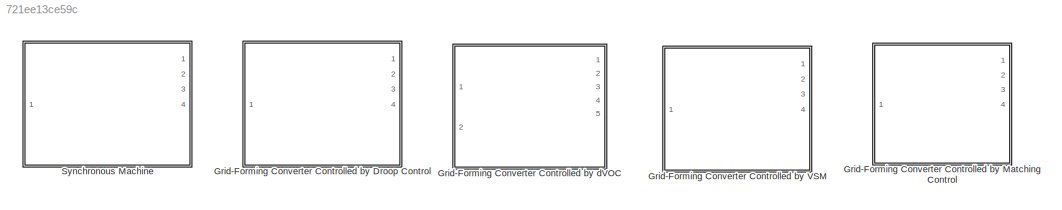
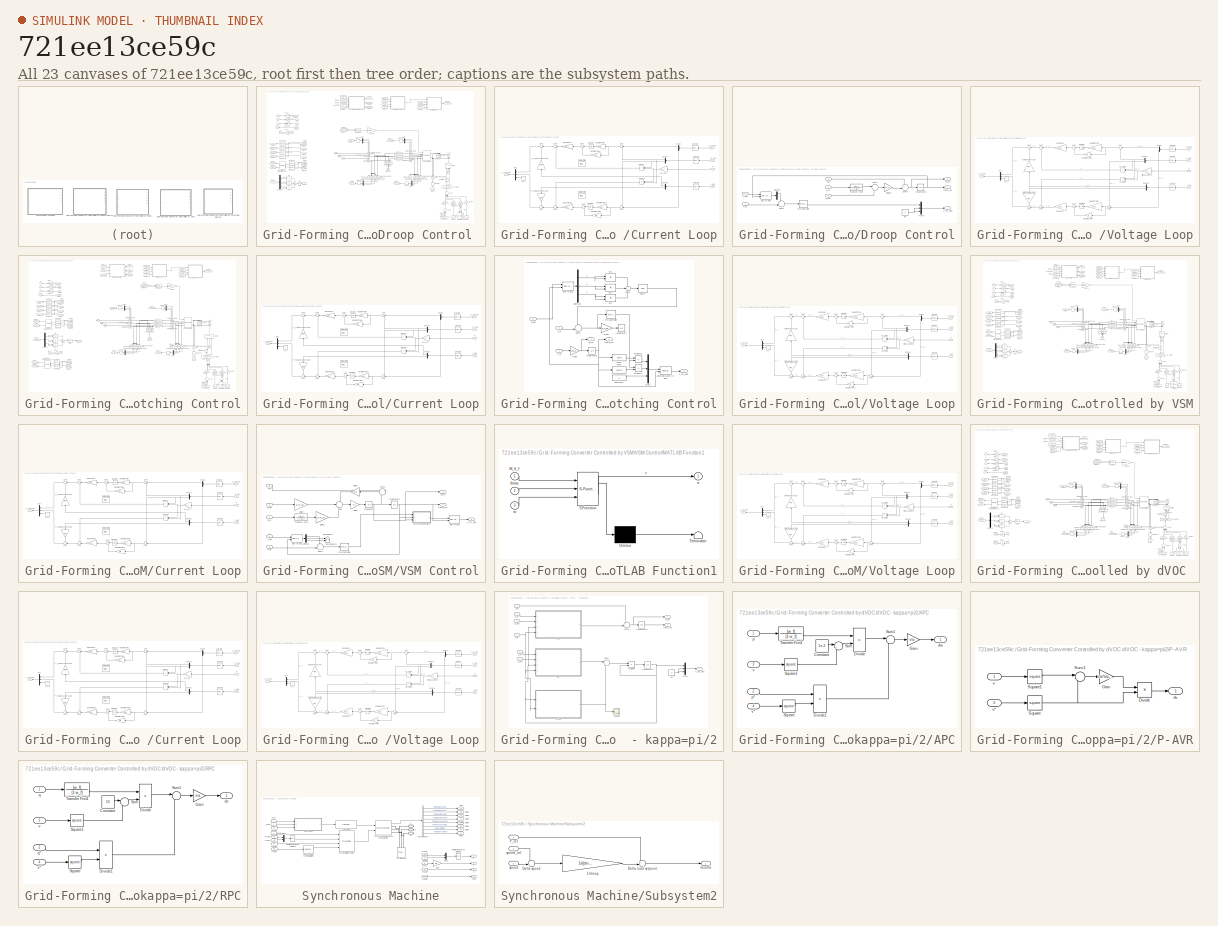
[diagram: thumbnail index - all 23 canvases of the model, root first then tree order]
MODEL slx_721ee13ce59c
KIND library
CONFIG AbsTol = auto
CONFIG EnableMultiTasking = off
CONFIG FixedStep = auto
CONFIG MaxStep = auto
CONFIG MinStep = auto
CONFIG RelTol = 1e-3
CONFIG SampleTimeConstraint = Unconstrained
CONFIG Solver = VariableStepAuto
CONFIG SolverName = VariableStepAuto
CONFIG StartTime = 0.0
CONFIG StopTime = 10.0
BLOCK [SubSystem] Grid-Forming Converter Controlled by Droop Control 
  Ports = [1, 4, 0, 0, 0, 0, 3]
  RequestExecContextInheritance = off
BLOCK [PMIOPort] Grid-Forming Converter Controlled by Droop Control /A
  Port = 3
  Side = Right
BLOCK [Sum] Grid-Forming Converter Controlled by Droop Control /Add2
  InputSameDT = off
  Inputs = +-
  OutDataTypeStr = Inherit: Inherit via internal rule
  Ports = [2, 1]
  SaturateOnIntegerOverflow = off
BLOCK [Sum] Grid-Forming Converter Controlled by Droop Control /Add4
  InputSameDT = off
  Inputs = ++++
  OutDataTypeStr = Inherit: Inherit via internal rule
  Ports = [4, 1]
  SaturateOnIntegerOverflow = off
BLOCK [Sum] Grid-Forming Converter Controlled by Droop Control /Add6
  InputSameDT = off
  Inputs = +-
  OutDataTypeStr = Inherit: Inherit via internal rule
  Ports = [2, 1]
  SaturateOnIntegerOverflow = off
BLOCK [PMIOPort] Grid-Forming Converter Controlled by Droop Control /B
  Port = 2
  Side = Right
BLOCK [PMIOPort] Grid-Forming Converter Controlled by Droop Control /C
  Side = Right
BLOCK [Reference] Grid-Forming Converter Controlled by Droop Control /C_a  REF=powerlib/Elements/Series RLC Branch
  Ports = [0, 0, 0, 0, 0, 1, 1]
  SourceBlock = powerlib/Elements/Series RLC Branch
  SourceProductBaseCode = PS
  SourceProductName = Simscape Power Systems
  SourceType = Series RLC Branch
BLOCK [Reference] Grid-Forming Converter Controlled by Droop Control /C_b  REF=powerlib/Elements/Series RLC Branch
  Ports = [0, 0, 0, 0, 0, 1, 1]
  SourceBlock = powerlib/Elements/Series RLC Branch
  SourceProductBaseCode = PS
  SourceProductName = Simscape Power Systems
  SourceType = Series RLC Branch
BLOCK [Reference] Grid-Forming Converter Controlled by Droop Control /C_c1  REF=powerlib/Elements/Series RLC Branch
  Ports = [0, 0, 0, 0, 0, 1, 1]
  SourceBlock = powerlib/Elements/Series RLC Branch
  SourceProductBaseCode = PS
  SourceProductName = Simscape Power Systems
  SourceType = Series RLC Branch
BLOCK [Reference] Grid-Forming Converter Controlled by Droop Control /C_dc1  REF=powerlib/Elements/Series RLC Branch
  Ports = [0, 0, 0, 0, 0, 1, 1]
  SourceBlock = powerlib/Elements/Series RLC Branch
  SourceProductBaseCode = PS
  SourceProductName = Simscape Power Systems
  SourceType = Series RLC Branch
BLOCK [Clock] Grid-Forming Converter Controlled by Droop Control /Clock
BLOCK [Constant] Grid-Forming Converter Controlled by Droop Control /Constant1
  Value = Vdc_n
BLOCK [Constant] Grid-Forming Converter Controlled by Droop Control /Constant11
  Value = w_b
BLOCK [Constant] Grid-Forming Converter Controlled by Droop Control /Constant9
  Value = V_m
BLOCK [SubSystem] Grid-Forming Converter Controlled by Droop Control /Current Loop
  Ports = [4, 1]
  RequestExecContextInheritance = off
BLOCK [Demux] Grid-Forming Converter Controlled by Droop Control /Current Loop/Demux
  DisplayOption = bar
  Outputs = 2
  Ports = [1, 2]
BLOCK [Demux] Grid-Forming Converter Controlled by Droop Control /Current Loop/Demux1
  DisplayOption = bar
  Outputs = 2
  Ports = [1, 2]
BLOCK [Demux] Grid-Forming Converter Controlled by Droop Control /Current Loop/Demux2
  DisplayOption = bar
  Outputs = 2
  Ports = [1, 2]
BLOCK [Reference] Grid-Forming Converter Controlled by Droop Control /Current Loop/First-Order Filter2  REF=powerlib_meascontrol/Filters/First-Order
Filter
  Commented = on
  Ports = [1, 1]
  SourceBlock = powerlib_meascontrol/Filters/First-Order\nFilter
  SourceProductBaseCode = PS
  SourceProductName = Simscape Power Systems
  SourceType = First-Order Filter
BLOCK [Reference] Grid-Forming Converter Controlled by Droop Control /Current Loop/First-Order Filter3  REF=powerlib_meascontrol/Filters/First-Order
Filter
  Commented = on
  Ports = [1, 1]
  SourceBlock = powerlib_meascontrol/Filters/First-Order\nFilter
  SourceProductBaseCode = PS
  SourceProductName = Simscape Power Systems
  SourceType = First-Order Filter
BLOCK [Gain] Grid-Forming Converter Controlled by Droop Control /Current Loop/Gain Corrector
  Gain = Kp_i
  OutDataTypeStr = Inherit: Inherit via internal rule
  ParamDataTypeStr = Inherit: Inherit via internal rule
  SaturateOnIntegerOverflow = off
BLOCK [Gain] Grid-Forming Converter Controlled by Droop Control /Current Loop/Gain Corrector1
  Gain = Kp_i
  OutDataTypeStr = Inherit: Inherit via internal rule
  ParamDataTypeStr = Inherit: Inherit via internal rule
  SaturateOnIntegerOverflow = off
BLOCK [Gain] Grid-Forming Converter Controlled by Droop Control /Current Loop/Integration Time
  Gain = Ki_i / Kp_i
  OutDataTypeStr = Inherit: Inherit via internal rule
  ParamDataTypeStr = Inherit: Inherit via internal rule
  SaturateOnIntegerOverflow = off
BLOCK [Gain] Grid-Forming Converter Controlled by Droop Control /Current Loop/Integration Time 1
  Gain = Ki_i / Kp_i
  OutDataTypeStr = Inherit: Inherit via internal rule
  ParamDataTypeStr = Inherit: Inherit via internal rule
  SaturateOnIntegerOverflow = off
BLOCK [Gain] Grid-Forming Converter Controlled by Droop Control /Current Loop/Integration Time1
  Gain = 1/n
  OutDataTypeStr = Inherit: Inherit via internal rule
  ParamDataTypeStr = Inherit: Inherit via internal rule
  SaturateOnIntegerOverflow = off
BLOCK [Gain] Grid-Forming Converter Controlled by Droop Control /Current Loop/Integration Time2
  Gain = 1/n
  OutDataTypeStr = Inherit: Inherit via internal rule
  ParamDataTypeStr = Inherit: Inherit via internal rule
  SaturateOnIntegerOverflow = off
BLOCK [Integrator] Grid-Forming Converter Controlled by Droop Control /Current Loop/Integrator
  InitialCondition = 0.0001
  Ports = [1, 1]
BLOCK [Integrator] Grid-Forming Converter Controlled by Droop Control /Current Loop/Integrator 1
  Ports = [1, 1]
BLOCK [Mux] Grid-Forming Converter Controlled by Droop Control /Current Loop/Mux
  DisplayOption = bar
  Inputs = 3
  Ports = [3, 1]
BLOCK [Product] Grid-Forming Converter Controlled by Droop Control /Current Loop/Product
  InputSameDT = off
  OutDataTypeStr = Inherit: Inherit via internal rule
  Ports = [2, 1]
  SaturateOnIntegerOverflow = off
BLOCK [Product] Grid-Forming Converter Controlled by Droop Control /Current Loop/Product1
  InputSameDT = off
  OutDataTypeStr = Inherit: Inherit via internal rule
  Ports = [2, 1]
  SaturateOnIntegerOverflow = off
BLOCK [Selector] Grid-Forming Converter Controlled by Droop Control /Current Loop/Selector1
  IndexOptions = Index vector (dialog)
  Indices = [1 2]
  InputPortWidth = 3
  OutputSizes = 1
  Ports = [1, 1]
BLOCK [Selector] Grid-Forming Converter Controlled by Droop Control /Current Loop/Selector2
  IndexOptions = Index vector (dialog)
  Indices = [1 2]
  InputPortWidth = 3
  OutputSizes = 1
  Ports = [1, 1]
BLOCK [Selector] Grid-Forming Converter Controlled by Droop Control /Current Loop/Selector3
  IndexOptions = Index vector (dialog)
  Indices = [1 2]
  InputPortWidth = 3
  OutputSizes = 1
  Ports = [1, 1]
BLOCK [Sum] Grid-Forming Converter Controlled by Droop Control /Current Loop/Sum
  IconShape = round
  InputSameDT = off
  Inputs = |+-
  OutDataTypeStr = Inherit: Inherit via internal rule
  Ports = [2, 1]
  SaturateOnIntegerOverflow = off
BLOCK [Sum] Grid-Forming Converter Controlled by Droop Control /Current Loop/Sum1
  IconShape = round
  InputSameDT = off
  Inputs = |++
  OutDataTypeStr = Inherit: Inherit via internal rule
  Ports = [2, 1]
  SaturateOnIntegerOverflow = off
BLOCK [Sum] Grid-Forming Converter Controlled by Droop Control /Current Loop/Sum2
  IconShape = round
  InputSameDT = off
  Inputs = |+-
  OutDataTypeStr = Inherit: Inherit via internal rule
  Ports = [2, 1]
  SaturateOnIntegerOverflow = off
BLOCK [Sum] Grid-Forming Converter Controlled by Droop Control /Current Loop/Sum3
  IconShape = round
  InputSameDT = off
  Inputs = |++
  OutDataTypeStr = Inherit: Inherit via internal rule
  Ports = [2, 1]
  SaturateOnIntegerOverflow = off
BLOCK [Sum] Grid-Forming Converter Controlled by Droop Control /Current Loop/Sum4
  IconShape = round
  InputSameDT = off
  Inputs = |++
  OutDataTypeStr = Inherit: Inherit via internal rule
  Ports = [2, 1]
  SaturateOnIntegerOverflow = off
BLOCK [Sum] Grid-Forming Converter Controlled by Droop Control /Current Loop/Sum5
  IconShape = round
  InputSameDT = off
  Inputs = ++|
  OutDataTypeStr = Inherit: Inherit via internal rule
  Ports = [2, 1]
  SaturateOnIntegerOverflow = off
BLOCK [Sum] Grid-Forming Converter Controlled by Droop Control /Current Loop/Sum6
  IconShape = round
  InputSameDT = off
  Inputs = -+|
  OutDataTypeStr = Inherit: Inherit via internal rule
  Ports = [2, 1]
  SaturateOnIntegerOverflow = off
BLOCK [Sum] Grid-Forming Converter Controlled by Droop Control /Current Loop/Sum7
  IconShape = round
  InputSameDT = off
  Inputs = ++|
  OutDataTypeStr = Inherit: Inherit via internal rule
  Ports = [2, 1]
  SaturateOnIntegerOverflow = off
BLOCK [Constant] Grid-Forming Converter Controlled by Droop Control /Current Loop/Vm_0*
  Value = 0
BLOCK [Gain] Grid-Forming Converter Controlled by Droop Control /Current Loop/Voltage Compensator 1
  Gain = Kff_v
  OutDataTypeStr = Inherit: Inherit via internal rule
  ParamDataTypeStr = Inherit: Inherit via internal rule
  SaturateOnIntegerOverflow = off
BLOCK [Gain] Grid-Forming Converter Controlled by Droop Control /Current Loop/Voltage compensator
  Gain = Kff_v
  OutDataTypeStr = Inherit: Inherit via internal rule
  ParamDataTypeStr = Inherit: Inherit via internal rule
  SaturateOnIntegerOverflow = off
BLOCK [Inport] Grid-Forming Converter Controlled by Droop Control /Current Loop/i_s_dq0
  IconDisplay = Port number
  Port = 3
BLOCK [Inport] Grid-Forming Converter Controlled by Droop Control /Current Loop/i_s_ref_dq0
  IconDisplay = Port number
BLOCK [Inport] Grid-Forming Converter Controlled by Droop Control /Current Loop/v_dq0
  IconDisplay = Port number
  Port = 2
BLOCK [Outport] Grid-Forming Converter Controlled by Droop Control /Current Loop/v_s_ref_dq0
  IconDisplay = Port number
BLOCK [Inport] Grid-Forming Converter Controlled by Droop Control /Current Loop/w
  IconDisplay = Port number
  Port = 4
BLOCK [Gain] Grid-Forming Converter Controlled by Droop Control /Current Loop/w*Lf_pu
  Gain = L_f
  OutDataTypeStr = Inherit: Inherit via internal rule
  ParamDataTypeStr = Inherit: Inherit via internal rule
  SaturateOnIntegerOverflow = off
BLOCK [Reference] Grid-Forming Converter Controlled by Droop Control /Current Measurement1  REF=powerlib/Measurements/Current Measurement
  Ports = [0, 1, 0, 0, 0, 1, 1]
  SourceBlock = powerlib/Measurements/Current Measurement
  SourceProductBaseCode = PS
  SourceProductName = Simscape Power Systems
  SourceType = Current Measurement
  UserDataPersistent = on
BLOCK [Reference] Grid-Forming Converter Controlled by Droop Control /Current Measurement2  REF=powerlib/Measurements/Current Measurement
  Ports = [0, 1, 0, 0, 0, 1, 1]
  SourceBlock = powerlib/Measurements/Current Measurement
  SourceProductBaseCode = PS
  SourceProductName = Simscape Power Systems
  SourceType = Current Measurement
  UserDataPersistent = on
BLOCK [Reference] Grid-Forming Converter Controlled by Droop Control /Current Measurement3  REF=powerlib/Measurements/Current Measurement
  Ports = [0, 1, 0, 0, 0, 1, 1]
  SourceBlock = powerlib/Measurements/Current Measurement
  SourceProductBaseCode = PS
  SourceProductName = Simscape Power Systems
  SourceType = Current Measurement
  UserDataPersistent = on
BLOCK [Reference] Grid-Forming Converter Controlled by Droop Control /Current Measurement4  REF=powerlib/Measurements/Current Measurement
  Ports = [0, 1, 0, 0, 0, 1, 1]
  SourceBlock = powerlib/Measurements/Current Measurement
  SourceProductBaseCode = PS
  SourceProductName = Simscape Power Systems
  SourceType = Current Measurement
  UserDataPersistent = on
BLOCK [Reference] Grid-Forming Converter Controlled by Droop Control /Current Measurement5  REF=powerlib/Measurements/Current Measurement
  Ports = [0, 1, 0, 0, 0, 1, 1]
  SourceBlock = powerlib/Measurements/Current Measurement
  SourceProductBaseCode = PS
  SourceProductName = Simscape Power Systems
  SourceType = Current Measurement
  UserDataPersistent = on
BLOCK [Reference] Grid-Forming Converter Controlled by Droop Control /Current Measurement6  REF=powerlib/Measurements/Current Measurement
  Ports = [0, 1, 0, 0, 0, 1, 1]
  SourceBlock = powerlib/Measurements/Current Measurement
  SourceProductBaseCode = PS
  SourceProductName = Simscape Power Systems
  SourceType = Current Measurement
  UserDataPersistent = on
BLOCK [Demux] Grid-Forming Converter Controlled by Droop Control /Demux2
  DisplayOption = bar
  Outputs = 3
  Ports = [1, 3]
BLOCK [SubSystem] Grid-Forming Converter Controlled by Droop Control /Droop Control
  Ports = [5, 3]
  RequestExecContextInheritance = off
BLOCK [Demux] Grid-Forming Converter Controlled by Droop Control /Droop Control/Demux
  DisplayOption = bar
  Outputs = 3
  Ports = [1, 3]
BLOCK [Gain] Grid-Forming Converter Controlled by Droop Control /Droop Control/Gain20
  Gain = m_p
  OutDataTypeStr = Inherit: Inherit via internal rule
  ParamDataTypeStr = Inherit: Inherit via internal rule
  SaturateOnIntegerOverflow = off
BLOCK [Integrator] Grid-Forming Converter Controlled by Droop Control /Droop Control/Integrator3
  Ports = [1, 1]
BLOCK [Mux] Grid-Forming Converter Controlled by Droop Control /Droop Control/Mux4
  DisplayOption = bar
  Inputs = 3
  Ports = [3, 1]
BLOCK [Reference] Grid-Forming Converter Controlled by Droop Control /Droop Control/PID Controller  REF=simulink/Continuous/PID Controller
  Ports = [1, 1]
  SourceBlock = simulink/Continuous/PID Controller
  SourceProductBaseCode = SL
  SourceProductName = Simulink
  SourceType = PID 1dof
BLOCK [Sum] Grid-Forming Converter Controlled by Droop Control /Droop Control/Sum1
  IconShape = round
  InputSameDT = off
  Inputs = -+|
  OutDataTypeStr = Inherit: Inherit via internal rule
  Ports = [2, 1]
  SaturateOnIntegerOverflow = off
BLOCK [Sum] Grid-Forming Converter Controlled by Droop Control /Droop Control/Sum7
  IconShape = round
  InputSameDT = off
  Inputs = |+-
  OutDataTypeStr = Inherit: Inherit via internal rule
  Ports = [2, 1]
  SaturateOnIntegerOverflow = off
BLOCK [Sum] Grid-Forming Converter Controlled by Droop Control /Droop Control/Sum8
  IconShape = round
  InputSameDT = off
  Inputs = +-|
  OutDataTypeStr = Inherit: Inherit via internal rule
  Ports = [2, 1]
  SaturateOnIntegerOverflow = off
BLOCK [TransferFcn] Grid-Forming Converter Controlled by Droop Control /Droop Control/Transfer Fcn4
  Denominator = [1 w_f]
  Numerator = [w_f]
BLOCK [Inport] Grid-Forming Converter Controlled by Droop Control /Droop Control/V_abc
  IconDisplay = Port number
  Port = 5
BLOCK [Reference] Grid-Forming Converter Controlled by Droop Control /Droop Control/abc to dq1  REF=powerlib_meascontrol/Transformations/abc to dq0
  Ports = [2, 1]
  SourceBlock = powerlib_meascontrol/Transformations/abc to dq0
  SourceProductBaseCode = PS
  SourceProductName = Simscape Power Systems
  SourceType = abc to dq0 Transformation
BLOCK [Inport] Grid-Forming Converter Controlled by Droop Control /Droop Control/p_m
  IconDisplay = Port number
  Port = 2
BLOCK [Inport] Grid-Forming Converter Controlled by Droop Control /Droop Control/p_set
  IconDisplay = Port number
  Port = 3
BLOCK [Constant] Grid-Forming Converter Controlled by Droop Control /Droop Control/q0
  Value = 0
BLOCK [Outport] Grid-Forming Converter Controlled by Droop Control /Droop Control/theta_ref
  IconDisplay = Port number
  Port = 2
BLOCK [Inport] Grid-Forming Converter Controlled by Droop Control /Droop Control/v_m
  IconDisplay = Port number
  Port = 4
BLOCK [Outport] Grid-Forming Converter Controlled by Droop Control /Droop Control/v_ref_dq0
  IconDisplay = Port number
  Port = 3
BLOCK [Inport] Grid-Forming Converter Controlled by Droop Control /Droop Control/w_b
  IconDisplay = Port number
BLOCK [Outport] Grid-Forming Converter Controlled by Droop Control /Droop Control/w_ref
  IconDisplay = Port number
BLOCK [From] Grid-Forming Converter Controlled by Droop Control /From
  GotoTag = V
BLOCK [From] Grid-Forming Converter Controlled by Droop Control /From1
  GotoTag = w
BLOCK [From] Grid-Forming Converter Controlled by Droop Control /From11
  GotoTag = P_abc
BLOCK [From] Grid-Forming Converter Controlled by Droop Control /From17
  GotoTag = theta
BLOCK [From] Grid-Forming Converter Controlled by Droop Control /From19
  GotoTag = i_abc
BLOCK [From] Grid-Forming Converter Controlled by Droop Control /From2
  GotoTag = i_s_abc
BLOCK [From] Grid-Forming Converter Controlled by Droop Control /From20
  GotoTag = v_dq0
BLOCK [From] Grid-Forming Converter Controlled by Droop Control /From22
  GotoTag = v_abc
BLOCK [From] Grid-Forming Converter Controlled by Droop Control /From3
  GotoTag = v_s_abc
BLOCK [From] Grid-Forming Converter Controlled by Droop Control /From31
  GotoTag = v_s_ref_dq0
BLOCK [From] Grid-Forming Converter Controlled by Droop Control /From32
  GotoTag = theta
BLOCK [From] Grid-Forming Converter Controlled by Droop Control /From4
  GotoTag = v_abc
BLOCK [From] Grid-Forming Converter Controlled by Droop Control /From41
  GotoTag = i_dq0
BLOCK [From] Grid-Forming Converter Controlled by Droop Control /From42
  GotoTag = v_ref_dq0
BLOCK [From] Grid-Forming Converter Controlled by Droop Control /From43
  GotoTag = w
BLOCK [From] Grid-Forming Converter Controlled by Droop Control /From44
  GotoTag = v_dq0
BLOCK [From] Grid-Forming Converter Controlled by Droop Control /From45
  GotoTag = w
BLOCK [From] Grid-Forming Converter Controlled by Droop Control /From46
  GotoTag = v_dq0
BLOCK [From] Grid-Forming Converter Controlled by Droop Control /From47
  GotoTag = i_s_dq0
BLOCK [From] Grid-Forming Converter Controlled by Droop Control /From5
  GotoTag = P_set
BLOCK [From] Grid-Forming Converter Controlled by Droop Control /From52
  GotoTag = v_abc
BLOCK [From] Grid-Forming Converter Controlled by Droop Control /From53
  GotoTag = P_set
BLOCK [From] Grid-Forming Converter Controlled by Droop Control /From55
  GotoTag = P_abc
BLOCK [From] Grid-Forming Converter Controlled by Droop Control /From6
  GotoTag = i_abc
BLOCK [From] Grid-Forming Converter Controlled by Droop Control /From61
  GotoTag = P_abc
BLOCK [From] Grid-Forming Converter Controlled by Droop Control /From62
  GotoTag = v_dc
BLOCK [From] Grid-Forming Converter Controlled by Droop Control /From63
  GotoTag = v_dc
BLOCK [From] Grid-Forming Converter Controlled by Droop Control /From7
  GotoTag = theta
BLOCK [From] Grid-Forming Converter Controlled by Droop Control /From8
  GotoTag = P_s_abc
BLOCK [From] Grid-Forming Converter Controlled by Droop Control /From9
  GotoTag = theta
BLOCK [Reference] Grid-Forming Converter Controlled by Droop Control /G_dc1  REF=powerlib/Elements/Series RLC Branch
  Ports = [0, 0, 0, 0, 0, 1, 1]
  SourceBlock = powerlib/Elements/Series RLC Branch
  SourceProductBaseCode = PS
  SourceProductName = Simscape Power Systems
  SourceType = Series RLC Branch
BLOCK [Gain] Grid-Forming Converter Controlled by Droop Control /Gain12
  Gain = 1/(2*pi)
  OutDataTypeStr = Inherit: Inherit via internal rule
  ParamDataTypeStr = Inherit: Inherit via internal rule
  SaturateOnIntegerOverflow = off
BLOCK [Gain] Grid-Forming Converter Controlled by Droop Control /Gain13
  Gain = K_p
  OutDataTypeStr = Inherit: Inherit via internal rule
  ParamDataTypeStr = Inherit: Inherit via internal rule
  SaturateOnIntegerOverflow = off
BLOCK [Gain] Grid-Forming Converter Controlled by Droop Control /Gain14
  Gain = K_p
  OutDataTypeStr = Inherit: Inherit via internal rule
  ParamDataTypeStr = Inherit: Inherit via internal rule
  SaturateOnIntegerOverflow = off
BLOCK [Gain] Grid-Forming Converter Controlled by Droop Control /Gain16
  Gain = k_dc
  OutDataTypeStr = Inherit: Inherit via internal rule
  ParamDataTypeStr = Inherit: Inherit via internal rule
  SaturateOnIntegerOverflow = off
BLOCK [Gain] Grid-Forming Converter Controlled by Droop Control /Gain17
  Gain = K_r
  OutDataTypeStr = Inherit: Inherit via internal rule
  ParamDataTypeStr = Inherit: Inherit via internal rule
  SaturateOnIntegerOverflow = off
BLOCK [Gain] Grid-Forming Converter Controlled by Droop Control /Gain19
  Gain = 2/(Vdc_n)
  OutDataTypeStr = Inherit: Inherit via internal rule
  ParamDataTypeStr = Inherit: Inherit via internal rule
  SaturateOnIntegerOverflow = off
BLOCK [Gain] Grid-Forming Converter Controlled by Droop Control /Gain2
  Gain = S_b
  OutDataTypeStr = Inherit: Inherit via internal rule
  ParamDataTypeStr = Inherit: Inherit via internal rule
  SaturateOnIntegerOverflow = off
BLOCK [Gain] Grid-Forming Converter Controlled by Droop Control /Gain4
  Gain = 1/V_m
  OutDataTypeStr = Inherit: Inherit via internal rule
  ParamDataTypeStr = Inherit: Inherit via internal rule
  SaturateOnIntegerOverflow = off
BLOCK [Gain] Grid-Forming Converter Controlled by Droop Control /Gain7
  Gain = 1/S_b
  OutDataTypeStr = Inherit: Inherit via internal rule
  ParamDataTypeStr = Inherit: Inherit via internal rule
  SaturateOnIntegerOverflow = off
BLOCK [Goto] Grid-Forming Converter Controlled by Droop Control /Goto
  GotoTag = i_s_abc
BLOCK [Goto] Grid-Forming Converter Controlled by Droop Control /Goto1
  GotoTag = v_s_abc
BLOCK [Goto] Grid-Forming Converter Controlled by Droop Control /Goto11
  GotoTag = i_s_dq0
BLOCK [Goto] Grid-Forming Converter Controlled by Droop Control /Goto12
  GotoTag = Q_abc
BLOCK [Goto] Grid-Forming Converter Controlled by Droop Control /Goto13
  GotoTag = v_s_dq0
BLOCK [Goto] Grid-Forming Converter Controlled by Droop Control /Goto16
  GotoTag = v_dq0
BLOCK [Goto] Grid-Forming Converter Controlled by Droop Control /Goto2
  GotoTag = i_abc
BLOCK [Goto] Grid-Forming Converter Controlled by Droop Control /Goto20
  GotoTag = V
BLOCK [Goto] Grid-Forming Converter Controlled by Droop Control /Goto28
  GotoTag = v_s_ref_dq0
BLOCK [Goto] Grid-Forming Converter Controlled by Droop Control /Goto3
  GotoTag = v_abc
BLOCK [Goto] Grid-Forming Converter Controlled by Droop Control /Goto4
  GotoTag = v_dc
BLOCK [Goto] Grid-Forming Converter Controlled by Droop Control /Goto6
  GotoTag = i_dq0
BLOCK [Goto] Grid-Forming Converter Controlled by Droop Control /Goto63
  GotoTag = v_ref_dq0
BLOCK [Goto] Grid-Forming Converter Controlled by Droop Control /Goto64
  GotoTag = theta
BLOCK [Goto] Grid-Forming Converter Controlled by Droop Control /Goto65
  GotoTag = w
BLOCK [Goto] Grid-Forming Converter Controlled by Droop Control /Goto7
  GotoTag = P_set
BLOCK [Goto] Grid-Forming Converter Controlled by Droop Control /Goto8
  GotoTag = P_abc
BLOCK [Reference] Grid-Forming Converter Controlled by Droop Control /Ground  REF=powerlib/Elements/Ground
  Ports = [0, 0, 0, 0, 0, 1]
  SourceBlock = powerlib/Elements/Ground
  SourceProductBaseCode = PS
  SourceProductName = Simscape Power Systems
  SourceType = Ground
BLOCK [Reference] Grid-Forming Converter Controlled by Droop Control /Ground1  REF=powerlib/Elements/Ground
  Ports = [0, 0, 0, 0, 0, 1]
  SourceBlock = powerlib/Elements/Ground
  SourceProductBaseCode = PS
  SourceProductName = Simscape Power Systems
  SourceType = Ground
BLOCK [Reference] Grid-Forming Converter Controlled by Droop Control /Ground2  REF=powerlib/Elements/Ground
  Ports = [0, 0, 0, 0, 0, 1]
  SourceBlock = powerlib/Elements/Ground
  SourceProductBaseCode = PS
  SourceProductName = Simscape Power Systems
  SourceType = Ground
BLOCK [Reference] Grid-Forming Converter Controlled by Droop Control /LTI System3  REF=cstblocks/LTI System
  Ports = [1, 1]
  SourceBlock = cstblocks/LTI System
  SourceProductBaseCode = CT
  SourceProductName = Control System Toolbox
  SourceType = LTI Block
BLOCK [Memory] Grid-Forming Converter Controlled by Droop Control /Memory
BLOCK [Memory] Grid-Forming Converter Controlled by Droop Control /Memory1
BLOCK [Memory] Grid-Forming Converter Controlled by Droop Control /Memory2
BLOCK [Memory] Grid-Forming Converter Controlled by Droop Control /Memory3
BLOCK [Memory] Grid-Forming Converter Controlled by Droop Control /Memory4
BLOCK [Mux] Grid-Forming Converter Controlled by Droop Control /Mux1
  DisplayOption = bar
  Inputs = 3
  Ports = [3, 1]
BLOCK [Mux] Grid-Forming Converter Controlled by Droop Control /Mux2
  DisplayOption = bar
  Inputs = 3
  Ports = [3, 1]
BLOCK [Mux] Grid-Forming Converter Controlled by Droop Control /Mux3
  DisplayOption = bar
  Inputs = 3
  Ports = [3, 1]
BLOCK [Mux] Grid-Forming Converter Controlled by Droop Control /Mux4
  DisplayOption = bar
  Inputs = 3
  Ports = [3, 1]
BLOCK [Outport] Grid-Forming Converter Controlled by Droop Control /P
  IconDisplay = Port number
  Port = 3
BLOCK [Reference] Grid-Forming Converter Controlled by Droop Control /Power (dq0, Instantaneous)  REF=powerlib_meascontrol/Measurements/Power
(dq0, Instantaneous)
  Ports = [2, 2]
  SourceBlock = powerlib_meascontrol/Measurements/Power\n(dq0, Instantaneous)
  SourceProductBaseCode = PS
  SourceProductName = Simscape Power Systems
  SourceType = Power (dq0, Instantaneous)
BLOCK [Inport] Grid-Forming Converter Controlled by Droop Control /Pset
  IconDisplay = Port number
BLOCK [Reference] Grid-Forming Converter Controlled by Droop Control /RL_a  REF=powerlib/Elements/Series RLC Branch
  Ports = [0, 0, 0, 0, 0, 1, 1]
  SourceBlock = powerlib/Elements/Series RLC Branch
  SourceProductBaseCode = PS
  SourceProductName = Simscape Power Systems
  SourceType = Series RLC Branch
BLOCK [Reference] Grid-Forming Converter Controlled by Droop Control /RL_b  REF=powerlib/Elements/Series RLC Branch
  Ports = [0, 0, 0, 0, 0, 1, 1]
  SourceBlock = powerlib/Elements/Series RLC Branch
  SourceProductBaseCode = PS
  SourceProductName = Simscape Power Systems
  SourceType = Series RLC Branch
BLOCK [Reference] Grid-Forming Converter Controlled by Droop Control /RL_c  REF=powerlib/Elements/Series RLC Branch
  Ports = [0, 0, 0, 0, 0, 1, 1]
  SourceBlock = powerlib/Elements/Series RLC Branch
  SourceProductBaseCode = PS
  SourceProductName = Simscape Power Systems
  SourceType = Series RLC Branch
BLOCK [Saturate] Grid-Forming Converter Controlled by Droop Control /Saturation
  InputPortMap = u0
  LowerLimit = i_ll
  Ports = [1, 1]
  UpperLimit = i_ul
BLOCK [Sqrt] Grid-Forming Converter Controlled by Droop Control /Sqrt2
BLOCK [Sum] Grid-Forming Converter Controlled by Droop Control /Sum2
  IconShape = round
  Inputs = +++
  Ports = [3, 1]
BLOCK [Switch] Grid-Forming Converter Controlled by Droop Control /Switch
  Criteria = u2 > Threshold
  InputSameDT = off
  SaturateOnIntegerOverflow = off
  Threshold = T_en
BLOCK [Outport] Grid-Forming Converter Controlled by Droop Control /Theta
  IconDisplay = Port number
  Port = 4
BLOCK [TransferFcn] Grid-Forming Converter Controlled by Droop Control /Transfer Fcn2
  Denominator = [1 w_f]
  Numerator = [w_f]
BLOCK [Reference] Grid-Forming Converter Controlled by Droop Control /Universal Bridge  REF=powerlib/Power
Electronics/Universal Bridge
  Ports = [1, 0, 0, 0, 0, 3, 2]
  SourceBlock = powerlib/Power\nElectronics/Universal Bridge
  SourceProductBaseCode = PS
  SourceProductName = Simscape Power Systems
  SourceType = Universal Bridge
BLOCK [Outport] Grid-Forming Converter Controlled by Droop Control /V
  IconDisplay = Port number
  Port = 2
BLOCK [SubSystem] Grid-Forming Converter Controlled by Droop Control /Voltage Loop
  Ports = [4, 1]
  RequestExecContextInheritance = off
BLOCK [Gain] Grid-Forming Converter Controlled by Droop Control /Voltage Loop/Current Compensator
  Gain = Kff_i
  OutDataTypeStr = Inherit: Inherit via internal rule
  ParamDataTypeStr = Inherit: Inherit via internal rule
  SaturateOnIntegerOverflow = off
BLOCK [Gain] Grid-Forming Converter Controlled by Droop Control /Voltage Loop/Current Compensator1
  Gain = Kff_i
  OutDataTypeStr = Inherit: Inherit via internal rule
  ParamDataTypeStr = Inherit: Inherit via internal rule
  SaturateOnIntegerOverflow = off
BLOCK [Gain] Grid-Forming Converter Controlled by Droop Control /Voltage Loop/Damping (d)
  Gain = Kp_v
  OutDataTypeStr = Inherit: Inherit via internal rule
  ParamDataTypeStr = Inherit: Inherit via internal rule
  SaturateOnIntegerOverflow = off
BLOCK [Gain] Grid-Forming Converter Controlled by Droop Control /Voltage Loop/Damping (q)
  Gain = Kp_v
  OutDataTypeStr = Inherit: Inherit via internal rule
  ParamDataTypeStr = Inherit: Inherit via internal rule
  SaturateOnIntegerOverflow = off
BLOCK [Demux] Grid-Forming Converter Controlled by Droop Control /Voltage Loop/Demux
  DisplayOption = bar
  Outputs = 2
  Ports = [1, 2]
BLOCK [Demux] Grid-Forming Converter Controlled by Droop Control /Voltage Loop/Demux1
  DisplayOption = bar
  Outputs = 2
  Ports = [1, 2]
BLOCK [Demux] Grid-Forming Converter Controlled by Droop Control /Voltage Loop/Demux2
  DisplayOption = bar
  Outputs = 2
  Ports = [1, 2]
BLOCK [Product] Grid-Forming Converter Controlled by Droop Control /Voltage Loop/Eg_d * (wCf)
  InputSameDT = off
  OutDataTypeStr = Inherit: Inherit via internal rule
  Ports = [2, 1]
  SaturateOnIntegerOverflow = off
BLOCK [Product] Grid-Forming Converter Controlled by Droop Control /Voltage Loop/Eg_q * (wCf) 
  InputSameDT = off
  OutDataTypeStr = Inherit: Inherit via internal rule
  Ports = [2, 1]
  SaturateOnIntegerOverflow = off
BLOCK [Gain] Grid-Forming Converter Controlled by Droop Control /Voltage Loop/Filter capacitance
  Gain = C_f
  OutDataTypeStr = Inherit: Inherit via internal rule
  ParamDataTypeStr = Inherit: Inherit via internal rule
  SaturateOnIntegerOverflow = off
BLOCK [Gain] Grid-Forming Converter Controlled by Droop Control /Voltage Loop/Integration Time
  Gain = Ki_v / Kp_v
  OutDataTypeStr = Inherit: Inherit via internal rule
  ParamDataTypeStr = Inherit: Inherit via internal rule
  SaturateOnIntegerOverflow = off
BLOCK [Gain] Grid-Forming Converter Controlled by Droop Control /Voltage Loop/Integration Time1
  Gain = Ki_v / Kp_v
  OutDataTypeStr = Inherit: Inherit via internal rule
  ParamDataTypeStr = Inherit: Inherit via internal rule
  SaturateOnIntegerOverflow = off
BLOCK [Gain] Grid-Forming Converter Controlled by Droop Control /Voltage Loop/Integration Time2
  Gain = n
  OutDataTypeStr = Inherit: Inherit via internal rule
  ParamDataTypeStr = Inherit: Inherit via internal rule
  SaturateOnIntegerOverflow = off
BLOCK [Gain] Grid-Forming Converter Controlled by Droop Control /Voltage Loop/Integration Time3
  Gain = n
  OutDataTypeStr = Inherit: Inherit via internal rule
  ParamDataTypeStr = Inherit: Inherit via internal rule
  SaturateOnIntegerOverflow = off
BLOCK [Integrator] Grid-Forming Converter Controlled by Droop Control /Voltage Loop/Integrator
  Ports = [1, 1]
BLOCK [Integrator] Grid-Forming Converter Controlled by Droop Control /Voltage Loop/Integrator1
  Ports = [1, 1]
BLOCK [Constant] Grid-Forming Converter Controlled by Droop Control /Voltage Loop/Is_0*
  Value = 0
BLOCK [Mux] Grid-Forming Converter Controlled by Droop Control /Voltage Loop/Mux
  DisplayOption = bar
  Inputs = 3
  Ports = [3, 1]
BLOCK [Selector] Grid-Forming Converter Controlled by Droop Control /Voltage Loop/Selector
  IndexOptions = Index vector (dialog)
  Indices = [1 2]
  InputPortWidth = 3
  OutputSizes = 1
  Ports = [1, 1]
BLOCK [Selector] Grid-Forming Converter Controlled by Droop Control /Voltage Loop/Selector1
  IndexOptions = Index vector (dialog)
  Indices = [1 2]
  InputPortWidth = 3
  OutputSizes = 1
  Ports = [1, 1]
BLOCK [Selector] Grid-Forming Converter Controlled by Droop Control /Voltage Loop/Selector2
  IndexOptions = Index vector (dialog)
  Indices = [1 2]
  InputPortWidth = 3
  OutputSizes = 1
  Ports = [1, 1]
BLOCK [Sum] Grid-Forming Converter Controlled by Droop Control /Voltage Loop/Sum
  IconShape = round
  InputSameDT = off
  Inputs = |+-
  OutDataTypeStr = Inherit: Inherit via internal rule
  Ports = [2, 1]
  SaturateOnIntegerOverflow = off
BLOCK [Sum] Grid-Forming Converter Controlled by Droop Control /Voltage Loop/Sum1
  IconShape = round
  InputSameDT = off
  Inputs = |++
  OutDataTypeStr = Inherit: Inherit via internal rule
  Ports = [2, 1]
  SaturateOnIntegerOverflow = off
BLOCK [Sum] Grid-Forming Converter Controlled by Droop Control /Voltage Loop/Sum2
  IconShape = round
  InputSameDT = off
  Inputs = |+-
  OutDataTypeStr = Inherit: Inherit via internal rule
  Ports = [2, 1]
  SaturateOnIntegerOverflow = off
BLOCK [Sum] Grid-Forming Converter Controlled by Droop Control /Voltage Loop/Sum3
  IconShape = round
  InputSameDT = off
  Inputs = |++
  OutDataTypeStr = Inherit: Inherit via internal rule
  Ports = [2, 1]
  SaturateOnIntegerOverflow = off
BLOCK [Sum] Grid-Forming Converter Controlled by Droop Control /Voltage Loop/Sum4
  IconShape = round
  InputSameDT = off
  Inputs = |++
  OutDataTypeStr = Inherit: Inherit via internal rule
  Ports = [2, 1]
  SaturateOnIntegerOverflow = off
BLOCK [Sum] Grid-Forming Converter Controlled by Droop Control /Voltage Loop/Sum5
  IconShape = round
  InputSameDT = off
  Inputs = ++|
  OutDataTypeStr = Inherit: Inherit via internal rule
  Ports = [2, 1]
  SaturateOnIntegerOverflow = off
BLOCK [Sum] Grid-Forming Converter Controlled by Droop Control /Voltage Loop/Sum6
  IconShape = round
  InputSameDT = off
  Inputs = -+|
  OutDataTypeStr = Inherit: Inherit via internal rule
  Ports = [2, 1]
  SaturateOnIntegerOverflow = off
BLOCK [Sum] Grid-Forming Converter Controlled by Droop Control /Voltage Loop/Sum7
  IconShape = round
  InputSameDT = off
  Inputs = ++|
  OutDataTypeStr = Inherit: Inherit via internal rule
  Ports = [2, 1]
  SaturateOnIntegerOverflow = off
BLOCK [Inport] Grid-Forming Converter Controlled by Droop Control /Voltage Loop/i_dq0
  IconDisplay = Port number
  Port = 3
BLOCK [Outport] Grid-Forming Converter Controlled by Droop Control /Voltage Loop/i_s_ref_dq0
  IconDisplay = Port number
BLOCK [Inport] Grid-Forming Converter Controlled by Droop Control /Voltage Loop/v_dq0
  IconDisplay = Port number
  Port = 2
BLOCK [Inport] Grid-Forming Converter Controlled by Droop Control /Voltage Loop/v_ref_dq0
  IconDisplay = Port number
BLOCK [Inport] Grid-Forming Converter Controlled by Droop Control /Voltage Loop/w
  IconDisplay = Port number
  Port = 4
BLOCK [Reference] Grid-Forming Converter Controlled by Droop Control /Voltage Measurement  REF=powerlib/Measurements/Voltage Measurement
  Ports = [0, 1, 0, 0, 0, 2]
  SourceBlock = powerlib/Measurements/Voltage Measurement
  SourceProductBaseCode = PS
  SourceProductName = Simscape Power Systems
  SourceType = Voltage Measurement
  UserDataPersistent = on
BLOCK [Reference] Grid-Forming Converter Controlled by Droop Control /Voltage Measurement1  REF=powerlib/Measurements/Voltage Measurement
  Ports = [0, 1, 0, 0, 0, 2]
  SourceBlock = powerlib/Measurements/Voltage Measurement
  SourceProductBaseCode = PS
  SourceProductName = Simscape Power Systems
  SourceType = Voltage Measurement
  UserDataPersistent = on
BLOCK [Reference] Grid-Forming Converter Controlled by Droop Control /Voltage Measurement2  REF=powerlib/Measurements/Voltage Measurement
  Ports = [0, 1, 0, 0, 0, 2]
  SourceBlock = powerlib/Measurements/Voltage Measurement
  SourceProductBaseCode = PS
  SourceProductName = Simscape Power Systems
  SourceType = Voltage Measurement
  UserDataPersistent = on
BLOCK [Reference] Grid-Forming Converter Controlled by Droop Control /Voltage Measurement3  REF=powerlib/Measurements/Voltage Measurement
  Ports = [0, 1, 0, 0, 0, 2]
  SourceBlock = powerlib/Measurements/Voltage Measurement
  SourceProductBaseCode = PS
  SourceProductName = Simscape Power Systems
  SourceType = Voltage Measurement
  UserDataPersistent = on
BLOCK [Reference] Grid-Forming Converter Controlled by Droop Control /Voltage Measurement4  REF=powerlib/Measurements/Voltage Measurement
  Ports = [0, 1, 0, 0, 0, 2]
  SourceBlock = powerlib/Measurements/Voltage Measurement
  SourceProductBaseCode = PS
  SourceProductName = Simscape Power Systems
  SourceType = Voltage Measurement
  UserDataPersistent = on
BLOCK [Reference] Grid-Forming Converter Controlled by Droop Control /Voltage Measurement5  REF=powerlib/Measurements/Voltage Measurement
  Ports = [0, 1, 0, 0, 0, 2]
  SourceBlock = powerlib/Measurements/Voltage Measurement
  SourceProductBaseCode = PS
  SourceProductName = Simscape Power Systems
  SourceType = Voltage Measurement
  UserDataPersistent = on
BLOCK [Reference] Grid-Forming Converter Controlled by Droop Control /Voltage Measurement6  REF=powerlib/Measurements/Voltage Measurement
  Ports = [0, 1, 0, 0, 0, 2]
  SourceBlock = powerlib/Measurements/Voltage Measurement
  SourceProductBaseCode = PS
  SourceProductName = Simscape Power Systems
  SourceType = Voltage Measurement
  UserDataPersistent = on
BLOCK [Reference] Grid-Forming Converter Controlled by Droop Control /abc to dq1  REF=powerlib_meascontrol/Transformations/abc to dq0
  Ports = [2, 1]
  SourceBlock = powerlib_meascontrol/Transformations/abc to dq0
  SourceProductBaseCode = PS
  SourceProductName = Simscape Power Systems
  SourceType = abc to dq0 Transformation
BLOCK [Reference] Grid-Forming Converter Controlled by Droop Control /abc to dq2  REF=powerlib_meascontrol/Transformations/abc to dq0
  Ports = [2, 1]
  SourceBlock = powerlib_meascontrol/Transformations/abc to dq0
  SourceProductBaseCode = PS
  SourceProductName = Simscape Power Systems
  SourceType = abc to dq0 Transformation
BLOCK [Reference] Grid-Forming Converter Controlled by Droop Control /abc to dq3  REF=powerlib_meascontrol/Transformations/abc to dq0
  Ports = [2, 1]
  SourceBlock = powerlib_meascontrol/Transformations/abc to dq0
  SourceProductBaseCode = PS
  SourceProductName = Simscape Power Systems
  SourceType = abc to dq0 Transformation
BLOCK [Reference] Grid-Forming Converter Controlled by Droop Control /abc to dq4  REF=powerlib_meascontrol/Transformations/abc to dq0
  Ports = [2, 1]
  SourceBlock = powerlib_meascontrol/Transformations/abc to dq0
  SourceProductBaseCode = PS
  SourceProductName = Simscape Power Systems
  SourceType = abc to dq0 Transformation
BLOCK [Reference] Grid-Forming Converter Controlled by Droop Control /abc to dq5  REF=powerlib_meascontrol/Transformations/abc to dq0
  Ports = [2, 1]
  SourceBlock = powerlib_meascontrol/Transformations/abc to dq0
  SourceProductBaseCode = PS
  SourceProductName = Simscape Power Systems
  SourceType = abc to dq0 Transformation
BLOCK [Reference] Grid-Forming Converter Controlled by Droop Control /abc to dq6  REF=powerlib_meascontrol/Transformations/abc to dq0
  Ports = [2, 1]
  SourceBlock = powerlib_meascontrol/Transformations/abc to dq0
  SourceProductBaseCode = PS
  SourceProductName = Simscape Power Systems
  SourceType = abc to dq0 Transformation
BLOCK [Reference] Grid-Forming Converter Controlled by Droop Control /dq0 to abc  REF=powerlib_meascontrol/Transformations/dq0 to abc
  Ports = [2, 1]
  SourceBlock = powerlib_meascontrol/Transformations/dq0 to abc
  SourceProductBaseCode = PS
  SourceProductName = Simscape Power Systems
  SourceType = dq0 to abc Transformation
BLOCK [Product] Grid-Forming Converter Controlled by Droop Control /d²2
  Ports = [2, 1]
BLOCK [Outport] Grid-Forming Converter Controlled by Droop Control /f
  IconDisplay = Port number
BLOCK [Reference] Grid-Forming Converter Controlled by Droop Control /i_dc1  REF=powerlib/Electrical
Sources/Controlled Current Source
  Ports = [1, 0, 0, 0, 0, 1, 1]
  SourceBlock = powerlib/Electrical\nSources/Controlled Current Source
  SourceProductBaseCode = PS
  SourceProductName = Simscape Power Systems
  SourceType = Controlled Current Source
BLOCK [Product] Grid-Forming Converter Controlled by Droop Control /q²4
  Ports = [2, 1]
BLOCK [Product] Grid-Forming Converter Controlled by Droop Control /q²5
  Ports = [2, 1]
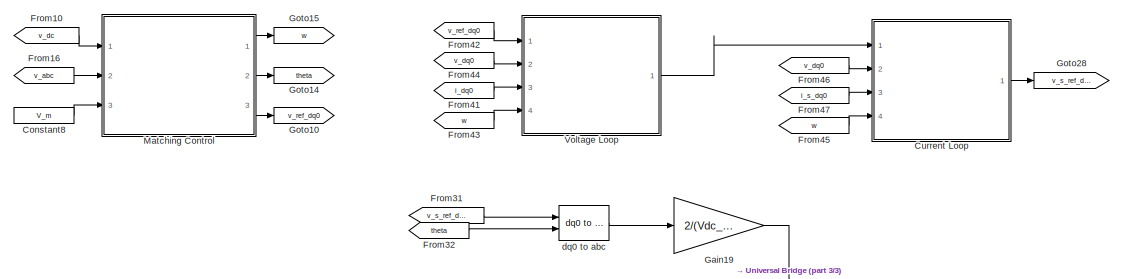
[diagram: Grid-Forming Converter Controlled by Matching Control - part 1/3, top center region]
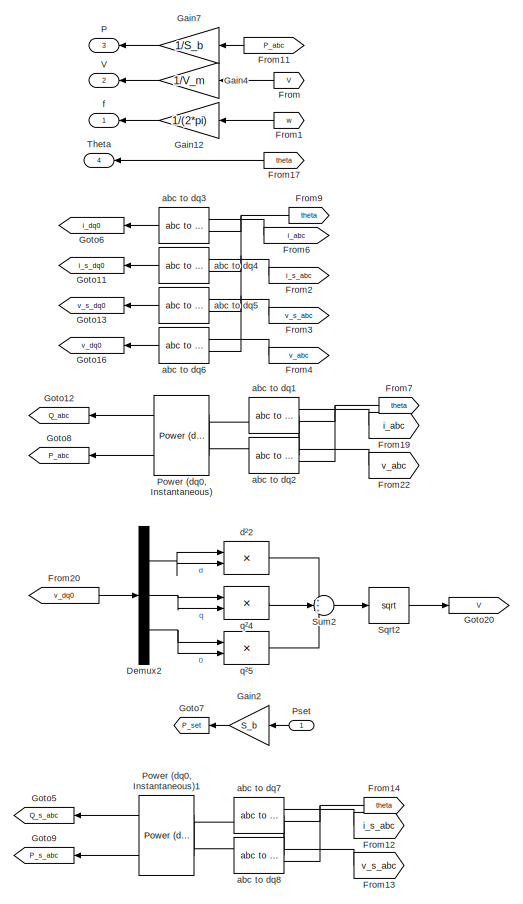
[diagram: Grid-Forming Converter Controlled by Matching Control - part 2/3, middle left region]
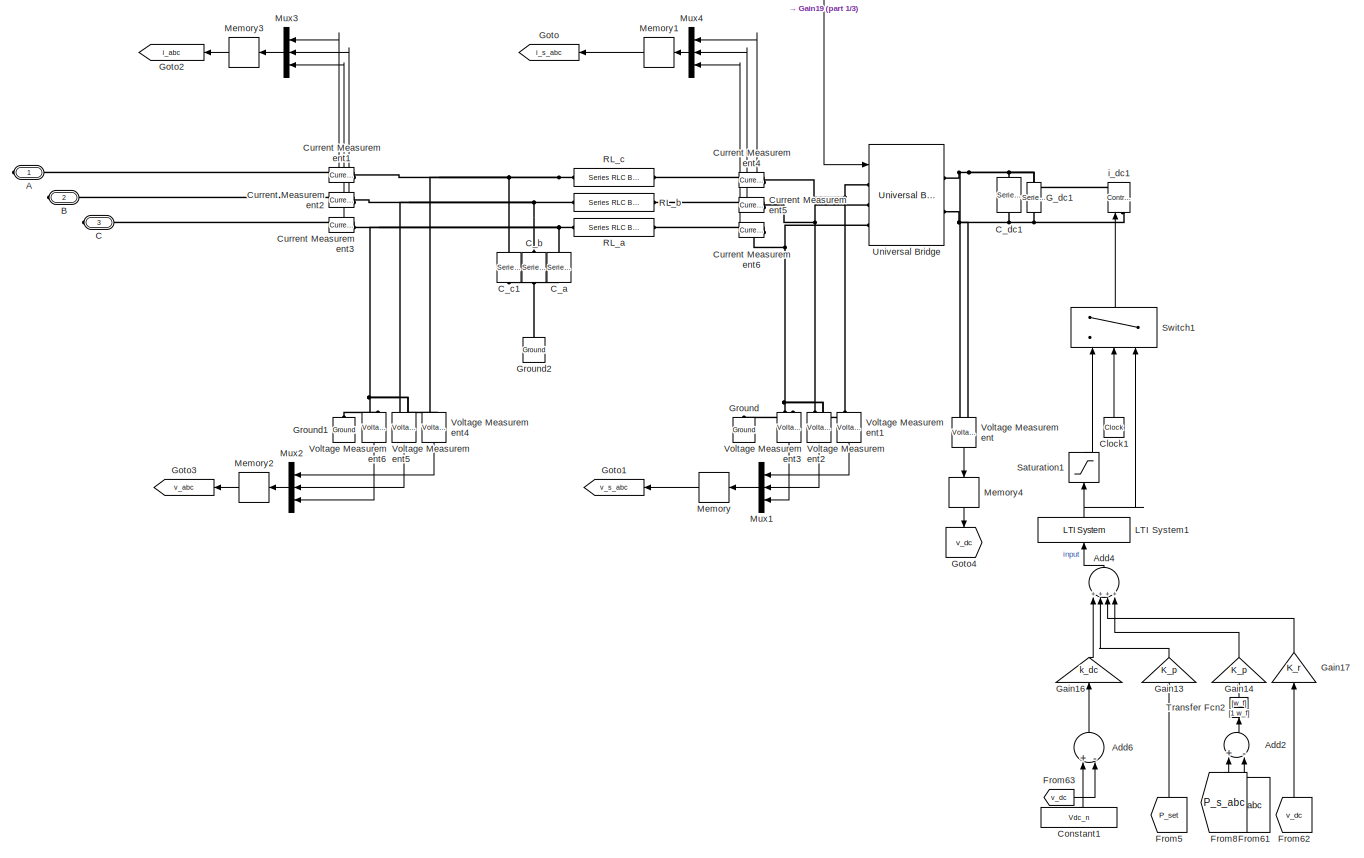
[diagram: Grid-Forming Converter Controlled by Matching Control - part 3/3, central region]
BLOCK [SubSystem] Grid-Forming Converter Controlled by Matching Control
  Ports = [1, 4, 0, 0, 0, 0, 3]
  RequestExecContextInheritance = off
BLOCK [PMIOPort] Grid-Forming Converter Controlled by Matching Control/A
  Side = Right
BLOCK [Sum] Grid-Forming Converter Controlled by Matching Control/Add2
  InputSameDT = off
  Inputs = +-
  OutDataTypeStr = Inherit: Inherit via internal rule
  Ports = [2, 1]
  SaturateOnIntegerOverflow = off
BLOCK [Sum] Grid-Forming Converter Controlled by Matching Control/Add4
  InputSameDT = off
  Inputs = ++++
  OutDataTypeStr = Inherit: Inherit via internal rule
  Ports = [4, 1]
  SaturateOnIntegerOverflow = off
BLOCK [Sum] Grid-Forming Converter Controlled by Matching Control/Add6
  InputSameDT = off
  Inputs = +-
  OutDataTypeStr = Inherit: Inherit via internal rule
  Ports = [2, 1]
  SaturateOnIntegerOverflow = off
BLOCK [PMIOPort] Grid-Forming Converter Controlled by Matching Control/B
  Port = 2
  Side = Right
BLOCK [PMIOPort] Grid-Forming Converter Controlled by Matching Control/C
  Port = 3
  Side = Right
BLOCK [Reference] Grid-Forming Converter Controlled by Matching Control/C_a  REF=powerlib/Elements/Series RLC Branch
  Ports = [0, 0, 0, 0, 0, 1, 1]
  SourceBlock = powerlib/Elements/Series RLC Branch
  SourceProductBaseCode = PS
  SourceProductName = Simscape Power Systems
  SourceType = Series RLC Branch
BLOCK [Reference] Grid-Forming Converter Controlled by Matching Control/C_b  REF=powerlib/Elements/Series RLC Branch
  Ports = [0, 0, 0, 0, 0, 1, 1]
  SourceBlock = powerlib/Elements/Series RLC Branch
  SourceProductBaseCode = PS
  SourceProductName = Simscape Power Systems
  SourceType = Series RLC Branch
BLOCK [Reference] Grid-Forming Converter Controlled by Matching Control/C_c1  REF=powerlib/Elements/Series RLC Branch
  Ports = [0, 0, 0, 0, 0, 1, 1]
  SourceBlock = powerlib/Elements/Series RLC Branch
  SourceProductBaseCode = PS
  SourceProductName = Simscape Power Systems
  SourceType = Series RLC Branch
BLOCK [Reference] Grid-Forming Converter Controlled by Matching Control/C_dc1  REF=powerlib/Elements/Series RLC Branch
  Ports = [0, 0, 0, 0, 0, 1, 1]
  SourceBlock = powerlib/Elements/Series RLC Branch
  SourceProductBaseCode = PS
  SourceProductName = Simscape Power Systems
  SourceType = Series RLC Branch
BLOCK [Clock] Grid-Forming Converter Controlled by Matching Control/Clock1
BLOCK [Constant] Grid-Forming Converter Controlled by Matching Control/Constant1
  Value = Vdc_n
BLOCK [Constant] Grid-Forming Converter Controlled by Matching Control/Constant8
  Value = V_m
BLOCK [SubSystem] Grid-Forming Converter Controlled by Matching Control/Current Loop
  Ports = [4, 1]
  RequestExecContextInheritance = off
BLOCK [Demux] Grid-Forming Converter Controlled by Matching Control/Current Loop/Demux
  DisplayOption = bar
  Outputs = 2
  Ports = [1, 2]
BLOCK [Demux] Grid-Forming Converter Controlled by Matching Control/Current Loop/Demux1
  DisplayOption = bar
  Outputs = 2
  Ports = [1, 2]
BLOCK [Demux] Grid-Forming Converter Controlled by Matching Control/Current Loop/Demux2
  DisplayOption = bar
  Outputs = 2
  Ports = [1, 2]
BLOCK [Reference] Grid-Forming Converter Controlled by Matching Control/Current Loop/First-Order Filter2  REF=powerlib_meascontrol/Filters/First-Order
Filter
  Commented = on
  Ports = [1, 1]
  SourceBlock = powerlib_meascontrol/Filters/First-Order\nFilter
  SourceProductBaseCode = PS
  SourceProductName = Simscape Power Systems
  SourceType = First-Order Filter
BLOCK [Reference] Grid-Forming Converter Controlled by Matching Control/Current Loop/First-Order Filter3  REF=powerlib_meascontrol/Filters/First-Order
Filter
  Commented = on
  Ports = [1, 1]
  SourceBlock = powerlib_meascontrol/Filters/First-Order\nFilter
  SourceProductBaseCode = PS
  SourceProductName = Simscape Power Systems
  SourceType = First-Order Filter
BLOCK [Gain] Grid-Forming Converter Controlled by Matching Control/Current Loop/Gain Corrector
  Gain = Kp_i
  OutDataTypeStr = Inherit: Inherit via internal rule
  ParamDataTypeStr = Inherit: Inherit via internal rule
  SaturateOnIntegerOverflow = off
BLOCK [Gain] Grid-Forming Converter Controlled by Matching Control/Current Loop/Gain Corrector1
  Gain = Kp_i
  OutDataTypeStr = Inherit: Inherit via internal rule
  ParamDataTypeStr = Inherit: Inherit via internal rule
  SaturateOnIntegerOverflow = off
BLOCK [Gain] Grid-Forming Converter Controlled by Matching Control/Current Loop/Integration Time
  Gain = Ki_i / Kp_i
  OutDataTypeStr = Inherit: Inherit via internal rule
  ParamDataTypeStr = Inherit: Inherit via internal rule
  SaturateOnIntegerOverflow = off
BLOCK [Gain] Grid-Forming Converter Controlled by Matching Control/Current Loop/Integration Time 1
  Gain = Ki_i / Kp_i
  OutDataTypeStr = Inherit: Inherit via internal rule
  ParamDataTypeStr = Inherit: Inherit via internal rule
  SaturateOnIntegerOverflow = off
BLOCK [Gain] Grid-Forming Converter Controlled by Matching Control/Current Loop/Integration Time1
  Gain = 1/n
  OutDataTypeStr = Inherit: Inherit via internal rule
  ParamDataTypeStr = Inherit: Inherit via internal rule
  SaturateOnIntegerOverflow = off
BLOCK [Gain] Grid-Forming Converter Controlled by Matching Control/Current Loop/Integration Time2
  Gain = 1/n
  OutDataTypeStr = Inherit: Inherit via internal rule
  ParamDataTypeStr = Inherit: Inherit via internal rule
  SaturateOnIntegerOverflow = off
BLOCK [Integrator] Grid-Forming Converter Controlled by Matching Control/Current Loop/Integrator
  InitialCondition = 0.0001
  Ports = [1, 1]
BLOCK [Integrator] Grid-Forming Converter Controlled by Matching Control/Current Loop/Integrator 1
  Ports = [1, 1]
BLOCK [Mux] Grid-Forming Converter Controlled by Matching Control/Current Loop/Mux
  DisplayOption = bar
  Inputs = 3
  Ports = [3, 1]
BLOCK [Product] Grid-Forming Converter Controlled by Matching Control/Current Loop/Product
  InputSameDT = off
  OutDataTypeStr = Inherit: Inherit via internal rule
  Ports = [2, 1]
  SaturateOnIntegerOverflow = off
BLOCK [Product] Grid-Forming Converter Controlled by Matching Control/Current Loop/Product1
  InputSameDT = off
  OutDataTypeStr = Inherit: Inherit via internal rule
  Ports = [2, 1]
  SaturateOnIntegerOverflow = off
BLOCK [Selector] Grid-Forming Converter Controlled by Matching Control/Current Loop/Selector1
  IndexOptions = Index vector (dialog)
  Indices = [1 2]
  InputPortWidth = 3
  OutputSizes = 1
  Ports = [1, 1]
BLOCK [Selector] Grid-Forming Converter Controlled by Matching Control/Current Loop/Selector2
  IndexOptions = Index vector (dialog)
  Indices = [1 2]
  InputPortWidth = 3
  OutputSizes = 1
  Ports = [1, 1]
BLOCK [Selector] Grid-Forming Converter Controlled by Matching Control/Current Loop/Selector3
  IndexOptions = Index vector (dialog)
  Indices = [1 2]
  InputPortWidth = 3
  OutputSizes = 1
  Ports = [1, 1]
BLOCK [Sum] Grid-Forming Converter Controlled by Matching Control/Current Loop/Sum
  IconShape = round
  InputSameDT = off
  Inputs = |+-
  OutDataTypeStr = Inherit: Inherit via internal rule
  Ports = [2, 1]
  SaturateOnIntegerOverflow = off
BLOCK [Sum] Grid-Forming Converter Controlled by Matching Control/Current Loop/Sum1
  IconShape = round
  InputSameDT = off
  Inputs = |++
  OutDataTypeStr = Inherit: Inherit via internal rule
  Ports = [2, 1]
  SaturateOnIntegerOverflow = off
BLOCK [Sum] Grid-Forming Converter Controlled by Matching Control/Current Loop/Sum2
  IconShape = round
  InputSameDT = off
  Inputs = |+-
  OutDataTypeStr = Inherit: Inherit via internal rule
  Ports = [2, 1]
  SaturateOnIntegerOverflow = off
BLOCK [Sum] Grid-Forming Converter Controlled by Matching Control/Current Loop/Sum3
  IconShape = round
  InputSameDT = off
  Inputs = |++
  OutDataTypeStr = Inherit: Inherit via internal rule
  Ports = [2, 1]
  SaturateOnIntegerOverflow = off
BLOCK [Sum] Grid-Forming Converter Controlled by Matching Control/Current Loop/Sum4
  IconShape = round
  InputSameDT = off
  Inputs = |++
  OutDataTypeStr = Inherit: Inherit via internal rule
  Ports = [2, 1]
  SaturateOnIntegerOverflow = off
BLOCK [Sum] Grid-Forming Converter Controlled by Matching Control/Current Loop/Sum5
  IconShape = round
  InputSameDT = off
  Inputs = ++|
  OutDataTypeStr = Inherit: Inherit via internal rule
  Ports = [2, 1]
  SaturateOnIntegerOverflow = off
BLOCK [Sum] Grid-Forming Converter Controlled by Matching Control/Current Loop/Sum6
  IconShape = round
  InputSameDT = off
  Inputs = -+|
  OutDataTypeStr = Inherit: Inherit via internal rule
  Ports = [2, 1]
  SaturateOnIntegerOverflow = off
BLOCK [Sum] Grid-Forming Converter Controlled by Matching Control/Current Loop/Sum7
  IconShape = round
  InputSameDT = off
  Inputs = ++|
  OutDataTypeStr = Inherit: Inherit via internal rule
  Ports = [2, 1]
  SaturateOnIntegerOverflow = off
BLOCK [Constant] Grid-Forming Converter Controlled by Matching Control/Current Loop/Vm_0*
  Value = 0
BLOCK [Gain] Grid-Forming Converter Controlled by Matching Control/Current Loop/Voltage Compensator 1
  Gain = Kff_v
  OutDataTypeStr = Inherit: Inherit via internal rule
  ParamDataTypeStr = Inherit: Inherit via internal rule
  SaturateOnIntegerOverflow = off
BLOCK [Gain] Grid-Forming Converter Controlled by Matching Control/Current Loop/Voltage compensator
  Gain = Kff_v
  OutDataTypeStr = Inherit: Inherit via internal rule
  ParamDataTypeStr = Inherit: Inherit via internal rule
  SaturateOnIntegerOverflow = off
BLOCK [Inport] Grid-Forming Converter Controlled by Matching Control/Current Loop/i_s_dq0
  IconDisplay = Port number
  Port = 3
BLOCK [Inport] Grid-Forming Converter Controlled by Matching Control/Current Loop/i_s_ref_dq0
  IconDisplay = Port number
BLOCK [Inport] Grid-Forming Converter Controlled by Matching Control/Current Loop/v_dq0
  IconDisplay = Port number
  Port = 2
BLOCK [Outport] Grid-Forming Converter Controlled by Matching Control/Current Loop/v_s_ref_dq0
  IconDisplay = Port number
BLOCK [Inport] Grid-Forming Converter Controlled by Matching Control/Current Loop/w
  IconDisplay = Port number
  Port = 4
BLOCK [Gain] Grid-Forming Converter Controlled by Matching Control/Current Loop/w*Lf_pu
  Gain = L_f
  OutDataTypeStr = Inherit: Inherit via internal rule
  ParamDataTypeStr = Inherit: Inherit via internal rule
  SaturateOnIntegerOverflow = off
BLOCK [Reference] Grid-Forming Converter Controlled by Matching Control/Current Measurement1  REF=powerlib/Measurements/Current Measurement
  Ports = [0, 1, 0, 0, 0, 1, 1]
  SourceBlock = powerlib/Measurements/Current Measurement
  SourceProductBaseCode = PS
  SourceProductName = Simscape Power Systems
  SourceType = Current Measurement
  UserDataPersistent = on
BLOCK [Reference] Grid-Forming Converter Controlled by Matching Control/Current Measurement2  REF=powerlib/Measurements/Current Measurement
  Ports = [0, 1, 0, 0, 0, 1, 1]
  SourceBlock = powerlib/Measurements/Current Measurement
  SourceProductBaseCode = PS
  SourceProductName = Simscape Power Systems
  SourceType = Current Measurement
  UserDataPersistent = on
BLOCK [Reference] Grid-Forming Converter Controlled by Matching Control/Current Measurement3  REF=powerlib/Measurements/Current Measurement
  Ports = [0, 1, 0, 0, 0, 1, 1]
  SourceBlock = powerlib/Measurements/Current Measurement
  SourceProductBaseCode = PS
  SourceProductName = Simscape Power Systems
  SourceType = Current Measurement
  UserDataPersistent = on
BLOCK [Reference] Grid-Forming Converter Controlled by Matching Control/Current Measurement4  REF=powerlib/Measurements/Current Measurement
  Ports = [0, 1, 0, 0, 0, 1, 1]
  SourceBlock = powerlib/Measurements/Current Measurement
  SourceProductBaseCode = PS
  SourceProductName = Simscape Power Systems
  SourceType = Current Measurement
  UserDataPersistent = on
BLOCK [Reference] Grid-Forming Converter Controlled by Matching Control/Current Measurement5  REF=powerlib/Measurements/Current Measurement
  Ports = [0, 1, 0, 0, 0, 1, 1]
  SourceBlock = powerlib/Measurements/Current Measurement
  SourceProductBaseCode = PS
  SourceProductName = Simscape Power Systems
  SourceType = Current Measurement
  UserDataPersistent = on
BLOCK [Reference] Grid-Forming Converter Controlled by Matching Control/Current Measurement6  REF=powerlib/Measurements/Current Measurement
  Ports = [0, 1, 0, 0, 0, 1, 1]
  SourceBlock = powerlib/Measurements/Current Measurement
  SourceProductBaseCode = PS
  SourceProductName = Simscape Power Systems
  SourceType = Current Measurement
  UserDataPersistent = on
BLOCK [Demux] Grid-Forming Converter Controlled by Matching Control/Demux2
  DisplayOption = bar
  Outputs = 3
  Ports = [1, 3]
BLOCK [From] Grid-Forming Converter Controlled by Matching Control/From
  GotoTag = V
BLOCK [From] Grid-Forming Converter Controlled by Matching Control/From1
  GotoTag = w
BLOCK [From] Grid-Forming Converter Controlled by Matching Control/From10
  GotoTag = v_dc
BLOCK [From] Grid-Forming Converter Controlled by Matching Control/From11
  GotoTag = P_abc
BLOCK [From] Grid-Forming Converter Controlled by Matching Control/From12
  GotoTag = i_s_abc
BLOCK [From] Grid-Forming Converter Controlled by Matching Control/From13
  GotoTag = v_s_abc
BLOCK [From] Grid-Forming Converter Controlled by Matching Control/From14
  GotoTag = theta
BLOCK [From] Grid-Forming Converter Controlled by Matching Control/From16
  GotoTag = v_abc
BLOCK [From] Grid-Forming Converter Controlled by Matching Control/From17
  GotoTag = theta
BLOCK [From] Grid-Forming Converter Controlled by Matching Control/From19
  GotoTag = i_abc
BLOCK [From] Grid-Forming Converter Controlled by Matching Control/From2
  GotoTag = i_s_abc
BLOCK [From] Grid-Forming Converter Controlled by Matching Control/From20
  GotoTag = v_dq0
BLOCK [From] Grid-Forming Converter Controlled by Matching Control/From22
  GotoTag = v_abc
BLOCK [From] Grid-Forming Converter Controlled by Matching Control/From3
  GotoTag = v_s_abc
BLOCK [From] Grid-Forming Converter Controlled by Matching Control/From31
  GotoTag = v_s_ref_dq0
BLOCK [From] Grid-Forming Converter Controlled by Matching Control/From32
  GotoTag = theta
BLOCK [From] Grid-Forming Converter Controlled by Matching Control/From4
  GotoTag = v_abc
BLOCK [From] Grid-Forming Converter Controlled by Matching Control/From41
  GotoTag = i_dq0
BLOCK [From] Grid-Forming Converter Controlled by Matching Control/From42
  GotoTag = v_ref_dq0
BLOCK [From] Grid-Forming Converter Controlled by Matching Control/From43
  GotoTag = w
BLOCK [From] Grid-Forming Converter Controlled by Matching Control/From44
  GotoTag = v_dq0
BLOCK [From] Grid-Forming Converter Controlled by Matching Control/From45
  GotoTag = w
BLOCK [From] Grid-Forming Converter Controlled by Matching Control/From46
  GotoTag = v_dq0
BLOCK [From] Grid-Forming Converter Controlled by Matching Control/From47
  GotoTag = i_s_dq0
BLOCK [From] Grid-Forming Converter Controlled by Matching Control/From5
  GotoTag = P_set
BLOCK [From] Grid-Forming Converter Controlled by Matching Control/From6
  GotoTag = i_abc
BLOCK [From] Grid-Forming Converter Controlled by Matching Control/From61
  GotoTag = P_abc
BLOCK [From] Grid-Forming Converter Controlled by Matching Control/From62
  GotoTag = v_dc
BLOCK [From] Grid-Forming Converter Controlled by Matching Control/From63
  GotoTag = v_dc
BLOCK [From] Grid-Forming Converter Controlled by Matching Control/From7
  GotoTag = theta
BLOCK [From] Grid-Forming Converter Controlled by Matching Control/From8
  GotoTag = P_s_abc
BLOCK [From] Grid-Forming Converter Controlled by Matching Control/From9
  GotoTag = theta
BLOCK [Reference] Grid-Forming Converter Controlled by Matching Control/G_dc1  REF=powerlib/Elements/Series RLC Branch
  Ports = [0, 0, 0, 0, 0, 1, 1]
  SourceBlock = powerlib/Elements/Series RLC Branch
  SourceProductBaseCode = PS
  SourceProductName = Simscape Power Systems
  SourceType = Series RLC Branch
BLOCK [Gain] Grid-Forming Converter Controlled by Matching Control/Gain12
  Gain = 1/(2*pi)
  OutDataTypeStr = Inherit: Inherit via internal rule
  ParamDataTypeStr = Inherit: Inherit via internal rule
  SaturateOnIntegerOverflow = off
BLOCK [Gain] Grid-Forming Converter Controlled by Matching Control/Gain13
  Gain = K_p
  OutDataTypeStr = Inherit: Inherit via internal rule
  ParamDataTypeStr = Inherit: Inherit via internal rule
  SaturateOnIntegerOverflow = off
BLOCK [Gain] Grid-Forming Converter Controlled by Matching Control/Gain14
  Gain = K_p
  OutDataTypeStr = Inherit: Inherit via internal rule
  ParamDataTypeStr = Inherit: Inherit via internal rule
  SaturateOnIntegerOverflow = off
BLOCK [Gain] Grid-Forming Converter Controlled by Matching Control/Gain16
  Gain = k_dc
  OutDataTypeStr = Inherit: Inherit via internal rule
  ParamDataTypeStr = Inherit: Inherit via internal rule
  SaturateOnIntegerOverflow = off
BLOCK [Gain] Grid-Forming Converter Controlled by Matching Control/Gain17
  Gain = K_r
  OutDataTypeStr = Inherit: Inherit via internal rule
  ParamDataTypeStr = Inherit: Inherit via internal rule
  SaturateOnIntegerOverflow = off
BLOCK [Gain] Grid-Forming Converter Controlled by Matching Control/Gain19
  Gain = 2/(Vdc_n)
  OutDataTypeStr = Inherit: Inherit via internal rule
  ParamDataTypeStr = Inherit: Inherit via internal rule
  SaturateOnIntegerOverflow = off
BLOCK [Gain] Grid-Forming Converter Controlled by Matching Control/Gain2
  Gain = S_b
  OutDataTypeStr = Inherit: Inherit via internal rule
  ParamDataTypeStr = Inherit: Inherit via internal rule
  SaturateOnIntegerOverflow = off
BLOCK [Gain] Grid-Forming Converter Controlled by Matching Control/Gain4
  Gain = 1/V_m
  OutDataTypeStr = Inherit: Inherit via internal rule
  ParamDataTypeStr = Inherit: Inherit via internal rule
  SaturateOnIntegerOverflow = off
BLOCK [Gain] Grid-Forming Converter Controlled by Matching Control/Gain7
  Gain = 1/S_b
  OutDataTypeStr = Inherit: Inherit via internal rule
  ParamDataTypeStr = Inherit: Inherit via internal rule
  SaturateOnIntegerOverflow = off
BLOCK [Goto] Grid-Forming Converter Controlled by Matching Control/Goto
  GotoTag = i_s_abc
BLOCK [Goto] Grid-Forming Converter Controlled by Matching Control/Goto1
  GotoTag = v_s_abc
BLOCK [Goto] Grid-Forming Converter Controlled by Matching Control/Goto10
  GotoTag = v_ref_dq0
BLOCK [Goto] Grid-Forming Converter Controlled by Matching Control/Goto11
  GotoTag = i_s_dq0
BLOCK [Goto] Grid-Forming Converter Controlled by Matching Control/Goto12
  GotoTag = Q_abc
BLOCK [Goto] Grid-Forming Converter Controlled by Matching Control/Goto13
  GotoTag = v_s_dq0
BLOCK [Goto] Grid-Forming Converter Controlled by Matching Control/Goto14
  GotoTag = theta
BLOCK [Goto] Grid-Forming Converter Controlled by Matching Control/Goto15
  GotoTag = w
BLOCK [Goto] Grid-Forming Converter Controlled by Matching Control/Goto16
  GotoTag = v_dq0
BLOCK [Goto] Grid-Forming Converter Controlled by Matching Control/Goto2
  GotoTag = i_abc
BLOCK [Goto] Grid-Forming Converter Controlled by Matching Control/Goto20
  GotoTag = V
BLOCK [Goto] Grid-Forming Converter Controlled by Matching Control/Goto28
  GotoTag = v_s_ref_dq0
BLOCK [Goto] Grid-Forming Converter Controlled by Matching Control/Goto3
  GotoTag = v_abc
BLOCK [Goto] Grid-Forming Converter Controlled by Matching Control/Goto4
  GotoTag = v_dc
BLOCK [Goto] Grid-Forming Converter Controlled by Matching Control/Goto5
  GotoTag = Q_s_abc
BLOCK [Goto] Grid-Forming Converter Controlled by Matching Control/Goto6
  GotoTag = i_dq0
BLOCK [Goto] Grid-Forming Converter Controlled by Matching Control/Goto7
  GotoTag = P_set
BLOCK [Goto] Grid-Forming Converter Controlled by Matching Control/Goto8
  GotoTag = P_abc
BLOCK [Goto] Grid-Forming Converter Controlled by Matching Control/Goto9
  GotoTag = P_s_abc
BLOCK [Reference] Grid-Forming Converter Controlled by Matching Control/Ground  REF=powerlib/Elements/Ground
  Ports = [0, 0, 0, 0, 0, 1]
  SourceBlock = powerlib/Elements/Ground
  SourceProductBaseCode = PS
  SourceProductName = Simscape Power Systems
  SourceType = Ground
BLOCK [Reference] Grid-Forming Converter Controlled by Matching Control/Ground1  REF=powerlib/Elements/Ground
  Ports = [0, 0, 0, 0, 0, 1]
  SourceBlock = powerlib/Elements/Ground
  SourceProductBaseCode = PS
  SourceProductName = Simscape Power Systems
  SourceType = Ground
BLOCK [Reference] Grid-Forming Converter Controlled by Matching Control/Ground2  REF=powerlib/Elements/Ground
  Ports = [0, 0, 0, 0, 0, 1]
  SourceBlock = powerlib/Elements/Ground
  SourceProductBaseCode = PS
  SourceProductName = Simscape Power Systems
  SourceType = Ground
BLOCK [Reference] Grid-Forming Converter Controlled by Matching Control/LTI System1  REF=cstblocks/LTI System
  Ports = [1, 1]
  SourceBlock = cstblocks/LTI System
  SourceProductBaseCode = CT
  SourceProductName = Control System Toolbox
  SourceType = LTI Block
BLOCK [SubSystem] Grid-Forming Converter Controlled by Matching Control/Matching Control
  Ports = [3, 3]
  RequestExecContextInheritance = off
BLOCK [Reference] Grid-Forming Converter Controlled by Matching Control/Matching Control/Alpha-Beta-Zero to dq0  REF=powerlib_meascontrol/Transformations/Alpha-Beta-Zero
to dq0
  Ports = [2, 1]
  SourceBlock = powerlib_meascontrol/Transformations/Alpha-Beta-Zero\nto dq0
  SourceProductBaseCode = PS
  SourceProductName = Simscape Power Systems
  SourceType = Alpha-Beta-Zero to dq0 Transformation
BLOCK [Constant] Grid-Forming Converter Controlled by Matching Control/Matching Control/Constant2
  Value = 0
BLOCK [Demux] Grid-Forming Converter Controlled by Matching Control/Matching Control/Demux2
  DisplayOption = bar
  Outputs = 3
  Ports = [1, 3]
BLOCK [Fcn] Grid-Forming Converter Controlled by Matching Control/Matching Control/Fcn2
  Expr = -sin(u)
BLOCK [Fcn] Grid-Forming Converter Controlled by Matching Control/Matching Control/Fcn3
  Expr = cos(u)
BLOCK [Gain] Grid-Forming Converter Controlled by Matching Control/Matching Control/Gain1
  Commented = on
  Gain = k_v_ac
  OutDataTypeStr = Inherit: Inherit via internal rule
  ParamDataTypeStr = Inherit: Inherit via internal rule
  SaturateOnIntegerOverflow = off
BLOCK [Gain] Grid-Forming Converter Controlled by Matching Control/Matching Control/Gain3
  Gain = eta_1
  OutDataTypeStr = Inherit: Inherit via internal rule
  ParamDataTypeStr = Inherit: Inherit via internal rule
  SaturateOnIntegerOverflow = off
BLOCK [Integrator] Grid-Forming Converter Controlled by Matching Control/Matching Control/Integrator1
  Commented = on
  Ports = [1, 1]
BLOCK [Integrator] Grid-Forming Converter Controlled by Matching Control/Matching Control/Integrator5
  Ports = [1, 1]
BLOCK [Mux] Grid-Forming Converter Controlled by Matching Control/Matching Control/Mux1
  DisplayOption = bar
  Inputs = 3
  Ports = [3, 1]
BLOCK [Reference] Grid-Forming Converter Controlled by Matching Control/Matching Control/PID Controller  REF=simulink/Continuous/PID Controller
  Ports = [1, 1]
  SourceBlock = simulink/Continuous/PID Controller
  SourceProductBaseCode = SL
  SourceProductName = Simulink
  SourceType = PID 1dof
BLOCK [Product] Grid-Forming Converter Controlled by Matching Control/Matching Control/Product3
  InputSameDT = off
  OutDataTypeStr = Inherit: Inherit via internal rule
  Ports = [2, 1]
  RndMeth = Floor
  SaturateOnIntegerOverflow = off
BLOCK [Product] Grid-Forming Converter Controlled by Matching Control/Matching Control/Product4
  InputSameDT = off
  OutDataTypeStr = Inherit: Inherit via internal rule
  Ports = [2, 1]
  RndMeth = Floor
  SaturateOnIntegerOverflow = off
BLOCK [Sqrt] Grid-Forming Converter Controlled by Matching Control/Matching Control/Sqrt2
BLOCK [Sum] Grid-Forming Converter Controlled by Matching Control/Matching Control/Sum1
  IconShape = round
  InputSameDT = off
  Inputs = -+|
  OutDataTypeStr = Inherit: Inherit via internal rule
  Ports = [2, 1]
  SaturateOnIntegerOverflow = off
BLOCK [Sum] Grid-Forming Converter Controlled by Matching Control/Matching Control/Sum2
  IconShape = round
  Inputs = +++
  Ports = [3, 1]
BLOCK [Inport] Grid-Forming Converter Controlled by Matching Control/Matching Control/V_abc
  IconDisplay = Port number
  Port = 2
BLOCK [Reference] Grid-Forming Converter Controlled by Matching Control/Matching Control/abc to dq1  REF=powerlib_meascontrol/Transformations/abc to dq0
  Ports = [2, 1]
  SourceBlock = powerlib_meascontrol/Transformations/abc to dq0
  SourceProductBaseCode = PS
  SourceProductName = Simscape Power Systems
  SourceType = abc to dq0 Transformation
BLOCK [Product] Grid-Forming Converter Controlled by Matching Control/Matching Control/d²2
  Ports = [2, 1]
BLOCK [Product] Grid-Forming Converter Controlled by Matching Control/Matching Control/q²4
  Ports = [2, 1]
BLOCK [Product] Grid-Forming Converter Controlled by Matching Control/Matching Control/q²5
  Ports = [2, 1]
BLOCK [Outport] Grid-Forming Converter Controlled by Matching Control/Matching Control/theta_ref
  IconDisplay = Port number
  Port = 2
BLOCK [Inport] Grid-Forming Converter Controlled by Matching Control/Matching Control/v_dc
  IconDisplay = Port number
BLOCK [Inport] Grid-Forming Converter Controlled by Matching Control/Matching Control/v_m
  IconDisplay = Port number
  Port = 3
BLOCK [Outport] Grid-Forming Converter Controlled by Matching Control/Matching Control/v_ref_dq0
  IconDisplay = Port number
  Port = 3
BLOCK [Outport] Grid-Forming Converter Controlled by Matching Control/Matching Control/w_ref
  IconDisplay = Port number
BLOCK [Memory] Grid-Forming Converter Controlled by Matching Control/Memory
BLOCK [Memory] Grid-Forming Converter Controlled by Matching Control/Memory1
BLOCK [Memory] Grid-Forming Converter Controlled by Matching Control/Memory2
BLOCK [Memory] Grid-Forming Converter Controlled by Matching Control/Memory3
BLOCK [Memory] Grid-Forming Converter Controlled by Matching Control/Memory4
BLOCK [Mux] Grid-Forming Converter Controlled by Matching Control/Mux1
  DisplayOption = bar
  Inputs = 3
  Ports = [3, 1]
BLOCK [Mux] Grid-Forming Converter Controlled by Matching Control/Mux2
  DisplayOption = bar
  Inputs = 3
  Ports = [3, 1]
BLOCK [Mux] Grid-Forming Converter Controlled by Matching Control/Mux3
  DisplayOption = bar
  Inputs = 3
  Ports = [3, 1]
BLOCK [Mux] Grid-Forming Converter Controlled by Matching Control/Mux4
  DisplayOption = bar
  Inputs = 3
  Ports = [3, 1]
BLOCK [Outport] Grid-Forming Converter Controlled by Matching Control/P
  IconDisplay = Port number
  Port = 3
BLOCK [Reference] Grid-Forming Converter Controlled by Matching Control/Power (dq0, Instantaneous)  REF=powerlib_meascontrol/Measurements/Power
(dq0, Instantaneous)
  Ports = [2, 2]
  SourceBlock = powerlib_meascontrol/Measurements/Power\n(dq0, Instantaneous)
  SourceProductBaseCode = PS
  SourceProductName = Simscape Power Systems
  SourceType = Power (dq0, Instantaneous)
BLOCK [Reference] Grid-Forming Converter Controlled by Matching Control/Power (dq0, Instantaneous)1  REF=powerlib_meascontrol/Measurements/Power
(dq0, Instantaneous)
  Ports = [2, 2]
  SourceBlock = powerlib_meascontrol/Measurements/Power\n(dq0, Instantaneous)
  SourceProductBaseCode = PS
  SourceProductName = Simscape Power Systems
  SourceType = Power (dq0, Instantaneous)
BLOCK [Inport] Grid-Forming Converter Controlled by Matching Control/Pset
  IconDisplay = Port number
BLOCK [Reference] Grid-Forming Converter Controlled by Matching Control/RL_a  REF=powerlib/Elements/Series RLC Branch
  Ports = [0, 0, 0, 0, 0, 1, 1]
  SourceBlock = powerlib/Elements/Series RLC Branch
  SourceProductBaseCode = PS
  SourceProductName = Simscape Power Systems
  SourceType = Series RLC Branch
BLOCK [Reference] Grid-Forming Converter Controlled by Matching Control/RL_b  REF=powerlib/Elements/Series RLC Branch
  Ports = [0, 0, 0, 0, 0, 1, 1]
  SourceBlock = powerlib/Elements/Series RLC Branch
  SourceProductBaseCode = PS
  SourceProductName = Simscape Power Systems
  SourceType = Series RLC Branch
BLOCK [Reference] Grid-Forming Converter Controlled by Matching Control/RL_c  REF=powerlib/Elements/Series RLC Branch
  Ports = [0, 0, 0, 0, 0, 1, 1]
  SourceBlock = powerlib/Elements/Series RLC Branch
  SourceProductBaseCode = PS
  SourceProductName = Simscape Power Systems
  SourceType = Series RLC Branch
BLOCK [Saturate] Grid-Forming Converter Controlled by Matching Control/Saturation1
  InputPortMap = u0
  LowerLimit = i_ll
  Ports = [1, 1]
  UpperLimit = i_ul
BLOCK [Sqrt] Grid-Forming Converter Controlled by Matching Control/Sqrt2
BLOCK [Sum] Grid-Forming Converter Controlled by Matching Control/Sum2
  IconShape = round
  Inputs = +++
  Ports = [3, 1]
BLOCK [Switch] Grid-Forming Converter Controlled by Matching Control/Switch1
  Criteria = u2 > Threshold
  InputSameDT = off
  SaturateOnIntegerOverflow = off
  Threshold = T_en
BLOCK [Outport] Grid-Forming Converter Controlled by Matching Control/Theta
  IconDisplay = Port number
  Port = 4
BLOCK [TransferFcn] Grid-Forming Converter Controlled by Matching Control/Transfer Fcn2
  Denominator = [1 w_f]
  Numerator = [w_f]
BLOCK [Reference] Grid-Forming Converter Controlled by Matching Control/Universal Bridge  REF=powerlib/Power
Electronics/Universal Bridge
  Ports = [1, 0, 0, 0, 0, 3, 2]
  SourceBlock = powerlib/Power\nElectronics/Universal Bridge
  SourceProductBaseCode = PS
  SourceProductName = Simscape Power Systems
  SourceType = Universal Bridge
BLOCK [Outport] Grid-Forming Converter Controlled by Matching Control/V
  IconDisplay = Port number
  Port = 2
BLOCK [SubSystem] Grid-Forming Converter Controlled by Matching Control/Voltage Loop
  Ports = [4, 1]
  RequestExecContextInheritance = off
BLOCK [Gain] Grid-Forming Converter Controlled by Matching Control/Voltage Loop/Current Compensator
  Gain = Kff_i
  OutDataTypeStr = Inherit: Inherit via internal rule
  ParamDataTypeStr = Inherit: Inherit via internal rule
  SaturateOnIntegerOverflow = off
BLOCK [Gain] Grid-Forming Converter Controlled by Matching Control/Voltage Loop/Current Compensator1
  Gain = Kff_i
  OutDataTypeStr = Inherit: Inherit via internal rule
  ParamDataTypeStr = Inherit: Inherit via internal rule
  SaturateOnIntegerOverflow = off
BLOCK [Gain] Grid-Forming Converter Controlled by Matching Control/Voltage Loop/Damping (d)
  Gain = Kp_v
  OutDataTypeStr = Inherit: Inherit via internal rule
  ParamDataTypeStr = Inherit: Inherit via internal rule
  SaturateOnIntegerOverflow = off
BLOCK [Gain] Grid-Forming Converter Controlled by Matching Control/Voltage Loop/Damping (q)
  Gain = Kp_v
  OutDataTypeStr = Inherit: Inherit via internal rule
  ParamDataTypeStr = Inherit: Inherit via internal rule
  SaturateOnIntegerOverflow = off
BLOCK [Demux] Grid-Forming Converter Controlled by Matching Control/Voltage Loop/Demux
  DisplayOption = bar
  Outputs = 2
  Ports = [1, 2]
BLOCK [Demux] Grid-Forming Converter Controlled by Matching Control/Voltage Loop/Demux1
  DisplayOption = bar
  Outputs = 2
  Ports = [1, 2]
BLOCK [Demux] Grid-Forming Converter Controlled by Matching Control/Voltage Loop/Demux2
  DisplayOption = bar
  Outputs = 2
  Ports = [1, 2]
BLOCK [Product] Grid-Forming Converter Controlled by Matching Control/Voltage Loop/Eg_d * (wCf)
  InputSameDT = off
  OutDataTypeStr = Inherit: Inherit via internal rule
  Ports = [2, 1]
  SaturateOnIntegerOverflow = off
BLOCK [Product] Grid-Forming Converter Controlled by Matching Control/Voltage Loop/Eg_q * (wCf) 
  InputSameDT = off
  OutDataTypeStr = Inherit: Inherit via internal rule
  Ports = [2, 1]
  SaturateOnIntegerOverflow = off
BLOCK [Gain] Grid-Forming Converter Controlled by Matching Control/Voltage Loop/Filter capacitance
  Gain = C_f
  OutDataTypeStr = Inherit: Inherit via internal rule
  ParamDataTypeStr = Inherit: Inherit via internal rule
  SaturateOnIntegerOverflow = off
BLOCK [Gain] Grid-Forming Converter Controlled by Matching Control/Voltage Loop/Integration Time
  Gain = Ki_v / Kp_v
  OutDataTypeStr = Inherit: Inherit via internal rule
  ParamDataTypeStr = Inherit: Inherit via internal rule
  SaturateOnIntegerOverflow = off
BLOCK [Gain] Grid-Forming Converter Controlled by Matching Control/Voltage Loop/Integration Time1
  Gain = Ki_v / Kp_v
  OutDataTypeStr = Inherit: Inherit via internal rule
  ParamDataTypeStr = Inherit: Inherit via internal rule
  SaturateOnIntegerOverflow = off
BLOCK [Gain] Grid-Forming Converter Controlled by Matching Control/Voltage Loop/Integration Time2
  Gain = n
  OutDataTypeStr = Inherit: Inherit via internal rule
  ParamDataTypeStr = Inherit: Inherit via internal rule
  SaturateOnIntegerOverflow = off
BLOCK [Gain] Grid-Forming Converter Controlled by Matching Control/Voltage Loop/Integration Time3
  Gain = n
  OutDataTypeStr = Inherit: Inherit via internal rule
  ParamDataTypeStr = Inherit: Inherit via internal rule
  SaturateOnIntegerOverflow = off
BLOCK [Integrator] Grid-Forming Converter Controlled by Matching Control/Voltage Loop/Integrator
  Ports = [1, 1]
BLOCK [Integrator] Grid-Forming Converter Controlled by Matching Control/Voltage Loop/Integrator1
  Ports = [1, 1]
BLOCK [Constant] Grid-Forming Converter Controlled by Matching Control/Voltage Loop/Is_0*
  Value = 0
BLOCK [Mux] Grid-Forming Converter Controlled by Matching Control/Voltage Loop/Mux
  DisplayOption = bar
  Inputs = 3
  Ports = [3, 1]
BLOCK [Selector] Grid-Forming Converter Controlled by Matching Control/Voltage Loop/Selector
  IndexOptions = Index vector (dialog)
  Indices = [1 2]
  InputPortWidth = 3
  OutputSizes = 1
  Ports = [1, 1]
BLOCK [Selector] Grid-Forming Converter Controlled by Matching Control/Voltage Loop/Selector1
  IndexOptions = Index vector (dialog)
  Indices = [1 2]
  InputPortWidth = 3
  OutputSizes = 1
  Ports = [1, 1]
BLOCK [Selector] Grid-Forming Converter Controlled by Matching Control/Voltage Loop/Selector2
  IndexOptions = Index vector (dialog)
  Indices = [1 2]
  InputPortWidth = 3
  OutputSizes = 1
  Ports = [1, 1]
BLOCK [Sum] Grid-Forming Converter Controlled by Matching Control/Voltage Loop/Sum
  IconShape = round
  InputSameDT = off
  Inputs = |+-
  OutDataTypeStr = Inherit: Inherit via internal rule
  Ports = [2, 1]
  SaturateOnIntegerOverflow = off
BLOCK [Sum] Grid-Forming Converter Controlled by Matching Control/Voltage Loop/Sum1
  IconShape = round
  InputSameDT = off
  Inputs = |++
  OutDataTypeStr = Inherit: Inherit via internal rule
  Ports = [2, 1]
  SaturateOnIntegerOverflow = off
BLOCK [Sum] Grid-Forming Converter Controlled by Matching Control/Voltage Loop/Sum2
  IconShape = round
  InputSameDT = off
  Inputs = |+-
  OutDataTypeStr = Inherit: Inherit via internal rule
  Ports = [2, 1]
  SaturateOnIntegerOverflow = off
BLOCK [Sum] Grid-Forming Converter Controlled by Matching Control/Voltage Loop/Sum3
  IconShape = round
  InputSameDT = off
  Inputs = |++
  OutDataTypeStr = Inherit: Inherit via internal rule
  Ports = [2, 1]
  SaturateOnIntegerOverflow = off
BLOCK [Sum] Grid-Forming Converter Controlled by Matching Control/Voltage Loop/Sum4
  IconShape = round
  InputSameDT = off
  Inputs = |++
  OutDataTypeStr = Inherit: Inherit via internal rule
  Ports = [2, 1]
  SaturateOnIntegerOverflow = off
BLOCK [Sum] Grid-Forming Converter Controlled by Matching Control/Voltage Loop/Sum5
  IconShape = round
  InputSameDT = off
  Inputs = ++|
  OutDataTypeStr = Inherit: Inherit via internal rule
  Ports = [2, 1]
  SaturateOnIntegerOverflow = off
BLOCK [Sum] Grid-Forming Converter Controlled by Matching Control/Voltage Loop/Sum6
  IconShape = round
  InputSameDT = off
  Inputs = -+|
  OutDataTypeStr = Inherit: Inherit via internal rule
  Ports = [2, 1]
  SaturateOnIntegerOverflow = off
BLOCK [Sum] Grid-Forming Converter Controlled by Matching Control/Voltage Loop/Sum7
  IconShape = round
  InputSameDT = off
  Inputs = ++|
  OutDataTypeStr = Inherit: Inherit via internal rule
  Ports = [2, 1]
  SaturateOnIntegerOverflow = off
BLOCK [Inport] Grid-Forming Converter Controlled by Matching Control/Voltage Loop/i_dq0
  IconDisplay = Port number
  Port = 3
BLOCK [Outport] Grid-Forming Converter Controlled by Matching Control/Voltage Loop/i_s_ref_dq0
  IconDisplay = Port number
BLOCK [Inport] Grid-Forming Converter Controlled by Matching Control/Voltage Loop/v_dq0
  IconDisplay = Port number
  Port = 2
BLOCK [Inport] Grid-Forming Converter Controlled by Matching Control/Voltage Loop/v_ref_dq0
  IconDisplay = Port number
BLOCK [Inport] Grid-Forming Converter Controlled by Matching Control/Voltage Loop/w
  IconDisplay = Port number
  Port = 4
BLOCK [Reference] Grid-Forming Converter Controlled by Matching Control/Voltage Measurement  REF=powerlib/Measurements/Voltage Measurement
  Ports = [0, 1, 0, 0, 0, 2]
  SourceBlock = powerlib/Measurements/Voltage Measurement
  SourceProductBaseCode = PS
  SourceProductName = Simscape Power Systems
  SourceType = Voltage Measurement
  UserDataPersistent = on
BLOCK [Reference] Grid-Forming Converter Controlled by Matching Control/Voltage Measurement1  REF=powerlib/Measurements/Voltage Measurement
  Ports = [0, 1, 0, 0, 0, 2]
  SourceBlock = powerlib/Measurements/Voltage Measurement
  SourceProductBaseCode = PS
  SourceProductName = Simscape Power Systems
  SourceType = Voltage Measurement
  UserDataPersistent = on
BLOCK [Reference] Grid-Forming Converter Controlled by Matching Control/Voltage Measurement2  REF=powerlib/Measurements/Voltage Measurement
  Ports = [0, 1, 0, 0, 0, 2]
  SourceBlock = powerlib/Measurements/Voltage Measurement
  SourceProductBaseCode = PS
  SourceProductName = Simscape Power Systems
  SourceType = Voltage Measurement
  UserDataPersistent = on
BLOCK [Reference] Grid-Forming Converter Controlled by Matching Control/Voltage Measurement3  REF=powerlib/Measurements/Voltage Measurement
  Ports = [0, 1, 0, 0, 0, 2]
  SourceBlock = powerlib/Measurements/Voltage Measurement
  SourceProductBaseCode = PS
  SourceProductName = Simscape Power Systems
  SourceType = Voltage Measurement
  UserDataPersistent = on
BLOCK [Reference] Grid-Forming Converter Controlled by Matching Control/Voltage Measurement4  REF=powerlib/Measurements/Voltage Measurement
  Ports = [0, 1, 0, 0, 0, 2]
  SourceBlock = powerlib/Measurements/Voltage Measurement
  SourceProductBaseCode = PS
  SourceProductName = Simscape Power Systems
  SourceType = Voltage Measurement
  UserDataPersistent = on
BLOCK [Reference] Grid-Forming Converter Controlled by Matching Control/Voltage Measurement5  REF=powerlib/Measurements/Voltage Measurement
  Ports = [0, 1, 0, 0, 0, 2]
  SourceBlock = powerlib/Measurements/Voltage Measurement
  SourceProductBaseCode = PS
  SourceProductName = Simscape Power Systems
  SourceType = Voltage Measurement
  UserDataPersistent = on
BLOCK [Reference] Grid-Forming Converter Controlled by Matching Control/Voltage Measurement6  REF=powerlib/Measurements/Voltage Measurement
  Ports = [0, 1, 0, 0, 0, 2]
  SourceBlock = powerlib/Measurements/Voltage Measurement
  SourceProductBaseCode = PS
  SourceProductName = Simscape Power Systems
  SourceType = Voltage Measurement
  UserDataPersistent = on
BLOCK [Reference] Grid-Forming Converter Controlled by Matching Control/abc to dq1  REF=powerlib_meascontrol/Transformations/abc to dq0
  Ports = [2, 1]
  SourceBlock = powerlib_meascontrol/Transformations/abc to dq0
  SourceProductBaseCode = PS
  SourceProductName = Simscape Power Systems
  SourceType = abc to dq0 Transformation
BLOCK [Reference] Grid-Forming Converter Controlled by Matching Control/abc to dq2  REF=powerlib_meascontrol/Transformations/abc to dq0
  Ports = [2, 1]
  SourceBlock = powerlib_meascontrol/Transformations/abc to dq0
  SourceProductBaseCode = PS
  SourceProductName = Simscape Power Systems
  SourceType = abc to dq0 Transformation
BLOCK [Reference] Grid-Forming Converter Controlled by Matching Control/abc to dq3  REF=powerlib_meascontrol/Transformations/abc to dq0
  Ports = [2, 1]
  SourceBlock = powerlib_meascontrol/Transformations/abc to dq0
  SourceProductBaseCode = PS
  SourceProductName = Simscape Power Systems
  SourceType = abc to dq0 Transformation
BLOCK [Reference] Grid-Forming Converter Controlled by Matching Control/abc to dq4  REF=powerlib_meascontrol/Transformations/abc to dq0
  Ports = [2, 1]
  SourceBlock = powerlib_meascontrol/Transformations/abc to dq0
  SourceProductBaseCode = PS
  SourceProductName = Simscape Power Systems
  SourceType = abc to dq0 Transformation
BLOCK [Reference] Grid-Forming Converter Controlled by Matching Control/abc to dq5  REF=powerlib_meascontrol/Transformations/abc to dq0
  Ports = [2, 1]
  SourceBlock = powerlib_meascontrol/Transformations/abc to dq0
  SourceProductBaseCode = PS
  SourceProductName = Simscape Power Systems
  SourceType = abc to dq0 Transformation
BLOCK [Reference] Grid-Forming Converter Controlled by Matching Control/abc to dq6  REF=powerlib_meascontrol/Transformations/abc to dq0
  Ports = [2, 1]
  SourceBlock = powerlib_meascontrol/Transformations/abc to dq0
  SourceProductBaseCode = PS
  SourceProductName = Simscape Power Systems
  SourceType = abc to dq0 Transformation
BLOCK [Reference] Grid-Forming Converter Controlled by Matching Control/abc to dq7  REF=powerlib_meascontrol/Transformations/abc to dq0
  Ports = [2, 1]
  SourceBlock = powerlib_meascontrol/Transformations/abc to dq0
  SourceProductBaseCode = PS
  SourceProductName = Simscape Power Systems
  SourceType = abc to dq0 Transformation
BLOCK [Reference] Grid-Forming Converter Controlled by Matching Control/abc to dq8  REF=powerlib_meascontrol/Transformations/abc to dq0
  Ports = [2, 1]
  SourceBlock = powerlib_meascontrol/Transformations/abc to dq0
  SourceProductBaseCode = PS
  SourceProductName = Simscape Power Systems
  SourceType = abc to dq0 Transformation
BLOCK [Reference] Grid-Forming Converter Controlled by Matching Control/dq0 to abc  REF=powerlib_meascontrol/Transformations/dq0 to abc
  Ports = [2, 1]
  SourceBlock = powerlib_meascontrol/Transformations/dq0 to abc
  SourceProductBaseCode = PS
  SourceProductName = Simscape Power Systems
  SourceType = dq0 to abc Transformation
BLOCK [Product] Grid-Forming Converter Controlled by Matching Control/d²2
  Ports = [2, 1]
BLOCK [Outport] Grid-Forming Converter Controlled by Matching Control/f
  IconDisplay = Port number
BLOCK [Reference] Grid-Forming Converter Controlled by Matching Control/i_dc1  REF=powerlib/Electrical
Sources/Controlled Current Source
  Ports = [1, 0, 0, 0, 0, 1, 1]
  SourceBlock = powerlib/Electrical\nSources/Controlled Current Source
  SourceProductBaseCode = PS
  SourceProductName = Simscape Power Systems
  SourceType = Controlled Current Source
BLOCK [Product] Grid-Forming Converter Controlled by Matching Control/q²4
  Ports = [2, 1]
BLOCK [Product] Grid-Forming Converter Controlled by Matching Control/q²5
  Ports = [2, 1]
BLOCK [SubSystem] Grid-Forming Converter Controlled by VSM
  Ports = [1, 4, 0, 0, 0, 0, 3]
  RequestExecContextInheritance = off
BLOCK [PMIOPort] Grid-Forming Converter Controlled by VSM/A
  Port = 3
  Side = Right
BLOCK [Sum] Grid-Forming Converter Controlled by VSM/Add2
  InputSameDT = off
  Inputs = +-
  OutDataTypeStr = Inherit: Inherit via internal rule
  Ports = [2, 1]
  SaturateOnIntegerOverflow = off
BLOCK [Sum] Grid-Forming Converter Controlled by VSM/Add4
  InputSameDT = off
  Inputs = ++++
  OutDataTypeStr = Inherit: Inherit via internal rule
  Ports = [4, 1]
  SaturateOnIntegerOverflow = off
BLOCK [Sum] Grid-Forming Converter Controlled by VSM/Add6
  InputSameDT = off
  Inputs = +-
  OutDataTypeStr = Inherit: Inherit via internal rule
  Ports = [2, 1]
  SaturateOnIntegerOverflow = off
BLOCK [PMIOPort] Grid-Forming Converter Controlled by VSM/B
  Port = 2
  Side = Right
BLOCK [PMIOPort] Grid-Forming Converter Controlled by VSM/C
  Side = Right
BLOCK [Reference] Grid-Forming Converter Controlled by VSM/C_a  REF=powerlib/Elements/Series RLC Branch
  Ports = [0, 0, 0, 0, 0, 1, 1]
  SourceBlock = powerlib/Elements/Series RLC Branch
  SourceProductBaseCode = PS
  SourceProductName = Simscape Power Systems
  SourceType = Series RLC Branch
BLOCK [Reference] Grid-Forming Converter Controlled by VSM/C_b  REF=powerlib/Elements/Series RLC Branch
  Ports = [0, 0, 0, 0, 0, 1, 1]
  SourceBlock = powerlib/Elements/Series RLC Branch
  SourceProductBaseCode = PS
  SourceProductName = Simscape Power Systems
  SourceType = Series RLC Branch
BLOCK [Reference] Grid-Forming Converter Controlled by VSM/C_c1  REF=powerlib/Elements/Series RLC Branch
  Ports = [0, 0, 0, 0, 0, 1, 1]
  SourceBlock = powerlib/Elements/Series RLC Branch
  SourceProductBaseCode = PS
  SourceProductName = Simscape Power Systems
  SourceType = Series RLC Branch
BLOCK [Reference] Grid-Forming Converter Controlled by VSM/C_dc1  REF=powerlib/Elements/Series RLC Branch
  Ports = [0, 0, 0, 0, 0, 1, 1]
  SourceBlock = powerlib/Elements/Series RLC Branch
  SourceProductBaseCode = PS
  SourceProductName = Simscape Power Systems
  SourceType = Series RLC Branch
BLOCK [Clock] Grid-Forming Converter Controlled by VSM/Clock
BLOCK [Constant] Grid-Forming Converter Controlled by VSM/Constant1
  Value = Vdc_n
BLOCK [Constant] Grid-Forming Converter Controlled by VSM/Constant2
  Value = w_b
BLOCK [Constant] Grid-Forming Converter Controlled by VSM/Constant4
  Value = V_m
BLOCK [SubSystem] Grid-Forming Converter Controlled by VSM/Current Loop
  Ports = [4, 1]
  RequestExecContextInheritance = off
BLOCK [Demux] Grid-Forming Converter Controlled by VSM/Current Loop/Demux
  DisplayOption = bar
  Outputs = 2
  Ports = [1, 2]
BLOCK [Demux] Grid-Forming Converter Controlled by VSM/Current Loop/Demux1
  DisplayOption = bar
  Outputs = 2
  Ports = [1, 2]
BLOCK [Demux] Grid-Forming Converter Controlled by VSM/Current Loop/Demux2
  DisplayOption = bar
  Outputs = 2
  Ports = [1, 2]
BLOCK [Reference] Grid-Forming Converter Controlled by VSM/Current Loop/First-Order Filter2  REF=powerlib_meascontrol/Filters/First-Order
Filter
  Commented = on
  Ports = [1, 1]
  SourceBlock = powerlib_meascontrol/Filters/First-Order\nFilter
  SourceProductBaseCode = PS
  SourceProductName = Simscape Power Systems
  SourceType = First-Order Filter
BLOCK [Reference] Grid-Forming Converter Controlled by VSM/Current Loop/First-Order Filter3  REF=powerlib_meascontrol/Filters/First-Order
Filter
  Commented = on
  Ports = [1, 1]
  SourceBlock = powerlib_meascontrol/Filters/First-Order\nFilter
  SourceProductBaseCode = PS
  SourceProductName = Simscape Power Systems
  SourceType = First-Order Filter
BLOCK [Gain] Grid-Forming Converter Controlled by VSM/Current Loop/Gain Corrector
  Gain = Kp_i
  OutDataTypeStr = Inherit: Inherit via internal rule
  ParamDataTypeStr = Inherit: Inherit via internal rule
  SaturateOnIntegerOverflow = off
BLOCK [Gain] Grid-Forming Converter Controlled by VSM/Current Loop/Gain Corrector1
  Gain = Kp_i
  OutDataTypeStr = Inherit: Inherit via internal rule
  ParamDataTypeStr = Inherit: Inherit via internal rule
  SaturateOnIntegerOverflow = off
BLOCK [Gain] Grid-Forming Converter Controlled by VSM/Current Loop/Integration Time
  Gain = Ki_i / Kp_i
  OutDataTypeStr = Inherit: Inherit via internal rule
  ParamDataTypeStr = Inherit: Inherit via internal rule
  SaturateOnIntegerOverflow = off
BLOCK [Gain] Grid-Forming Converter Controlled by VSM/Current Loop/Integration Time 1
  Gain = Ki_i / Kp_i
  OutDataTypeStr = Inherit: Inherit via internal rule
  ParamDataTypeStr = Inherit: Inherit via internal rule
  SaturateOnIntegerOverflow = off
BLOCK [Gain] Grid-Forming Converter Controlled by VSM/Current Loop/Integration Time1
  Gain = 1/n
  OutDataTypeStr = Inherit: Inherit via internal rule
  ParamDataTypeStr = Inherit: Inherit via internal rule
  SaturateOnIntegerOverflow = off
BLOCK [Gain] Grid-Forming Converter Controlled by VSM/Current Loop/Integration Time2
  Gain = 1/n
  OutDataTypeStr = Inherit: Inherit via internal rule
  ParamDataTypeStr = Inherit: Inherit via internal rule
  SaturateOnIntegerOverflow = off
BLOCK [Integrator] Grid-Forming Converter Controlled by VSM/Current Loop/Integrator
  InitialCondition = 0.0001
  Ports = [1, 1]
BLOCK [Integrator] Grid-Forming Converter Controlled by VSM/Current Loop/Integrator 1
  Ports = [1, 1]
BLOCK [Mux] Grid-Forming Converter Controlled by VSM/Current Loop/Mux
  DisplayOption = bar
  Inputs = 3
  Ports = [3, 1]
BLOCK [Product] Grid-Forming Converter Controlled by VSM/Current Loop/Product
  InputSameDT = off
  OutDataTypeStr = Inherit: Inherit via internal rule
  Ports = [2, 1]
  SaturateOnIntegerOverflow = off
BLOCK [Product] Grid-Forming Converter Controlled by VSM/Current Loop/Product1
  InputSameDT = off
  OutDataTypeStr = Inherit: Inherit via internal rule
  Ports = [2, 1]
  SaturateOnIntegerOverflow = off
BLOCK [Selector] Grid-Forming Converter Controlled by VSM/Current Loop/Selector1
  IndexOptions = Index vector (dialog)
  Indices = [1 2]
  InputPortWidth = 3
  OutputSizes = 1
  Ports = [1, 1]
BLOCK [Selector] Grid-Forming Converter Controlled by VSM/Current Loop/Selector2
  IndexOptions = Index vector (dialog)
  Indices = [1 2]
  InputPortWidth = 3
  OutputSizes = 1
  Ports = [1, 1]
BLOCK [Selector] Grid-Forming Converter Controlled by VSM/Current Loop/Selector3
  IndexOptions = Index vector (dialog)
  Indices = [1 2]
  InputPortWidth = 3
  OutputSizes = 1
  Ports = [1, 1]
BLOCK [Sum] Grid-Forming Converter Controlled by VSM/Current Loop/Sum
  IconShape = round
  InputSameDT = off
  Inputs = |+-
  OutDataTypeStr = Inherit: Inherit via internal rule
  Ports = [2, 1]
  SaturateOnIntegerOverflow = off
BLOCK [Sum] Grid-Forming Converter Controlled by VSM/Current Loop/Sum1
  IconShape = round
  InputSameDT = off
  Inputs = |++
  OutDataTypeStr = Inherit: Inherit via internal rule
  Ports = [2, 1]
  SaturateOnIntegerOverflow = off
BLOCK [Sum] Grid-Forming Converter Controlled by VSM/Current Loop/Sum2
  IconShape = round
  InputSameDT = off
  Inputs = |+-
  OutDataTypeStr = Inherit: Inherit via internal rule
  Ports = [2, 1]
  SaturateOnIntegerOverflow = off
BLOCK [Sum] Grid-Forming Converter Controlled by VSM/Current Loop/Sum3
  IconShape = round
  InputSameDT = off
  Inputs = |++
  OutDataTypeStr = Inherit: Inherit via internal rule
  Ports = [2, 1]
  SaturateOnIntegerOverflow = off
BLOCK [Sum] Grid-Forming Converter Controlled by VSM/Current Loop/Sum4
  IconShape = round
  InputSameDT = off
  Inputs = |++
  OutDataTypeStr = Inherit: Inherit via internal rule
  Ports = [2, 1]
  SaturateOnIntegerOverflow = off
BLOCK [Sum] Grid-Forming Converter Controlled by VSM/Current Loop/Sum5
  IconShape = round
  InputSameDT = off
  Inputs = ++|
  OutDataTypeStr = Inherit: Inherit via internal rule
  Ports = [2, 1]
  SaturateOnIntegerOverflow = off
BLOCK [Sum] Grid-Forming Converter Controlled by VSM/Current Loop/Sum6
  IconShape = round
  InputSameDT = off
  Inputs = -+|
  OutDataTypeStr = Inherit: Inherit via internal rule
  Ports = [2, 1]
  SaturateOnIntegerOverflow = off
BLOCK [Sum] Grid-Forming Converter Controlled by VSM/Current Loop/Sum7
  IconShape = round
  InputSameDT = off
  Inputs = ++|
  OutDataTypeStr = Inherit: Inherit via internal rule
  Ports = [2, 1]
  SaturateOnIntegerOverflow = off
BLOCK [Constant] Grid-Forming Converter Controlled by VSM/Current Loop/Vm_0*
  Value = 0
BLOCK [Gain] Grid-Forming Converter Controlled by VSM/Current Loop/Voltage Compensator 1
  Gain = Kff_v
  OutDataTypeStr = Inherit: Inherit via internal rule
  ParamDataTypeStr = Inherit: Inherit via internal rule
  SaturateOnIntegerOverflow = off
BLOCK [Gain] Grid-Forming Converter Controlled by VSM/Current Loop/Voltage compensator
  Gain = Kff_v
  OutDataTypeStr = Inherit: Inherit via internal rule
  ParamDataTypeStr = Inherit: Inherit via internal rule
  SaturateOnIntegerOverflow = off
BLOCK [Inport] Grid-Forming Converter Controlled by VSM/Current Loop/i_s_dq0
  IconDisplay = Port number
  Port = 3
BLOCK [Inport] Grid-Forming Converter Controlled by VSM/Current Loop/i_s_ref_dq0
  IconDisplay = Port number
BLOCK [Inport] Grid-Forming Converter Controlled by VSM/Current Loop/v_dq0
  IconDisplay = Port number
  Port = 2
BLOCK [Outport] Grid-Forming Converter Controlled by VSM/Current Loop/v_s_ref_dq0
  IconDisplay = Port number
BLOCK [Inport] Grid-Forming Converter Controlled by VSM/Current Loop/w
  IconDisplay = Port number
  Port = 4
BLOCK [Gain] Grid-Forming Converter Controlled by VSM/Current Loop/w*Lf_pu
  Gain = L_f
  OutDataTypeStr = Inherit: Inherit via internal rule
  ParamDataTypeStr = Inherit: Inherit via internal rule
  SaturateOnIntegerOverflow = off
BLOCK [Reference] Grid-Forming Converter Controlled by VSM/Current Measurement1  REF=powerlib/Measurements/Current Measurement
  Ports = [0, 1, 0, 0, 0, 1, 1]
  SourceBlock = powerlib/Measurements/Current Measurement
  SourceProductBaseCode = PS
  SourceProductName = Simscape Power Systems
  SourceType = Current Measurement
  UserDataPersistent = on
BLOCK [Reference] Grid-Forming Converter Controlled by VSM/Current Measurement2  REF=powerlib/Measurements/Current Measurement
  Ports = [0, 1, 0, 0, 0, 1, 1]
  SourceBlock = powerlib/Measurements/Current Measurement
  SourceProductBaseCode = PS
  SourceProductName = Simscape Power Systems
  SourceType = Current Measurement
  UserDataPersistent = on
BLOCK [Reference] Grid-Forming Converter Controlled by VSM/Current Measurement3  REF=powerlib/Measurements/Current Measurement
  Ports = [0, 1, 0, 0, 0, 1, 1]
  SourceBlock = powerlib/Measurements/Current Measurement
  SourceProductBaseCode = PS
  SourceProductName = Simscape Power Systems
  SourceType = Current Measurement
  UserDataPersistent = on
BLOCK [Reference] Grid-Forming Converter Controlled by VSM/Current Measurement4  REF=powerlib/Measurements/Current Measurement
  Ports = [0, 1, 0, 0, 0, 1, 1]
  SourceBlock = powerlib/Measurements/Current Measurement
  SourceProductBaseCode = PS
  SourceProductName = Simscape Power Systems
  SourceType = Current Measurement
  UserDataPersistent = on
BLOCK [Reference] Grid-Forming Converter Controlled by VSM/Current Measurement5  REF=powerlib/Measurements/Current Measurement
  Ports = [0, 1, 0, 0, 0, 1, 1]
  SourceBlock = powerlib/Measurements/Current Measurement
  SourceProductBaseCode = PS
  SourceProductName = Simscape Power Systems
  SourceType = Current Measurement
  UserDataPersistent = on
BLOCK [Reference] Grid-Forming Converter Controlled by VSM/Current Measurement6  REF=powerlib/Measurements/Current Measurement
  Ports = [0, 1, 0, 0, 0, 1, 1]
  SourceBlock = powerlib/Measurements/Current Measurement
  SourceProductBaseCode = PS
  SourceProductName = Simscape Power Systems
  SourceType = Current Measurement
  UserDataPersistent = on
BLOCK [Demux] Grid-Forming Converter Controlled by VSM/Demux2
  DisplayOption = bar
  Outputs = 3
  Ports = [1, 3]
BLOCK [From] Grid-Forming Converter Controlled by VSM/From
  GotoTag = V
BLOCK [From] Grid-Forming Converter Controlled by VSM/From1
  GotoTag = w
BLOCK [From] Grid-Forming Converter Controlled by VSM/From10
  GotoTag = P_s_abc
BLOCK [From] Grid-Forming Converter Controlled by VSM/From11
  GotoTag = P_abc
BLOCK [From] Grid-Forming Converter Controlled by VSM/From16
  GotoTag = P_set
BLOCK [From] Grid-Forming Converter Controlled by VSM/From17
  GotoTag = theta
BLOCK [From] Grid-Forming Converter Controlled by VSM/From19
  GotoTag = i_abc
BLOCK [From] Grid-Forming Converter Controlled by VSM/From2
  GotoTag = i_s_abc
BLOCK [From] Grid-Forming Converter Controlled by VSM/From20
  GotoTag = v_dq0
BLOCK [From] Grid-Forming Converter Controlled by VSM/From22
  GotoTag = v_abc
BLOCK [From] Grid-Forming Converter Controlled by VSM/From3
  GotoTag = v_s_abc
BLOCK [From] Grid-Forming Converter Controlled by VSM/From31
  GotoTag = v_s_ref_dq0
BLOCK [From] Grid-Forming Converter Controlled by VSM/From32
  GotoTag = theta
BLOCK [From] Grid-Forming Converter Controlled by VSM/From4
  GotoTag = v_abc
BLOCK [From] Grid-Forming Converter Controlled by VSM/From41
  GotoTag = i_dq0
BLOCK [From] Grid-Forming Converter Controlled by VSM/From42
  GotoTag = v_ref_dq0
BLOCK [From] Grid-Forming Converter Controlled by VSM/From43
  GotoTag = w
BLOCK [From] Grid-Forming Converter Controlled by VSM/From44
  GotoTag = v_dq0
BLOCK [From] Grid-Forming Converter Controlled by VSM/From45
  GotoTag = w
BLOCK [From] Grid-Forming Converter Controlled by VSM/From46
  GotoTag = v_dq0
BLOCK [From] Grid-Forming Converter Controlled by VSM/From47
  GotoTag = i_s_dq0
BLOCK [From] Grid-Forming Converter Controlled by VSM/From5
  GotoTag = P_set
BLOCK [From] Grid-Forming Converter Controlled by VSM/From51
  GotoTag = P_abc
BLOCK [From] Grid-Forming Converter Controlled by VSM/From6
  GotoTag = i_abc
BLOCK [From] Grid-Forming Converter Controlled by VSM/From61
  GotoTag = P_abc
BLOCK [From] Grid-Forming Converter Controlled by VSM/From62
  GotoTag = v_dc
BLOCK [From] Grid-Forming Converter Controlled by VSM/From63
  GotoTag = v_dc
BLOCK [From] Grid-Forming Converter Controlled by VSM/From7
  GotoTag = theta
BLOCK [From] Grid-Forming Converter Controlled by VSM/From8
  GotoTag = v_abc
BLOCK [From] Grid-Forming Converter Controlled by VSM/From9
  GotoTag = theta
BLOCK [Reference] Grid-Forming Converter Controlled by VSM/G_dc1  REF=powerlib/Elements/Series RLC Branch
  Ports = [0, 0, 0, 0, 0, 1, 1]
  SourceBlock = powerlib/Elements/Series RLC Branch
  SourceProductBaseCode = PS
  SourceProductName = Simscape Power Systems
  SourceType = Series RLC Branch
BLOCK [Gain] Grid-Forming Converter Controlled by VSM/Gain12
  Gain = 1/(2*pi)
  OutDataTypeStr = Inherit: Inherit via internal rule
  ParamDataTypeStr = Inherit: Inherit via internal rule
  SaturateOnIntegerOverflow = off
BLOCK [Gain] Grid-Forming Converter Controlled by VSM/Gain13
  Gain = K_p
  OutDataTypeStr = Inherit: Inherit via internal rule
  ParamDataTypeStr = Inherit: Inherit via internal rule
  SaturateOnIntegerOverflow = off
BLOCK [Gain] Grid-Forming Converter Controlled by VSM/Gain14
  Gain = K_p
  OutDataTypeStr = Inherit: Inherit via internal rule
  ParamDataTypeStr = Inherit: Inherit via internal rule
  SaturateOnIntegerOverflow = off
BLOCK [Gain] Grid-Forming Converter Controlled by VSM/Gain16
  Gain = k_dc
  OutDataTypeStr = Inherit: Inherit via internal rule
  ParamDataTypeStr = Inherit: Inherit via internal rule
  SaturateOnIntegerOverflow = off
BLOCK [Gain] Grid-Forming Converter Controlled by VSM/Gain17
  Gain = K_r
  OutDataTypeStr = Inherit: Inherit via internal rule
  ParamDataTypeStr = Inherit: Inherit via internal rule
  SaturateOnIntegerOverflow = off
BLOCK [Gain] Grid-Forming Converter Controlled by VSM/Gain19
  Gain = 2/(Vdc_n)
  OutDataTypeStr = Inherit: Inherit via internal rule
  ParamDataTypeStr = Inherit: Inherit via internal rule
  SaturateOnIntegerOverflow = off
BLOCK [Gain] Grid-Forming Converter Controlled by VSM/Gain2
  Gain = S_b
  OutDataTypeStr = Inherit: Inherit via internal rule
  ParamDataTypeStr = Inherit: Inherit via internal rule
  SaturateOnIntegerOverflow = off
BLOCK [Gain] Grid-Forming Converter Controlled by VSM/Gain4
  Gain = 1/V_m
  OutDataTypeStr = Inherit: Inherit via internal rule
  ParamDataTypeStr = Inherit: Inherit via internal rule
  SaturateOnIntegerOverflow = off
BLOCK [Gain] Grid-Forming Converter Controlled by VSM/Gain7
  Gain = 1/S_b
  OutDataTypeStr = Inherit: Inherit via internal rule
  ParamDataTypeStr = Inherit: Inherit via internal rule
  SaturateOnIntegerOverflow = off
BLOCK [Goto] Grid-Forming Converter Controlled by VSM/Goto
  GotoTag = i_s_abc
BLOCK [Goto] Grid-Forming Converter Controlled by VSM/Goto1
  GotoTag = v_s_abc
BLOCK [Goto] Grid-Forming Converter Controlled by VSM/Goto11
  GotoTag = i_s_dq0
BLOCK [Goto] Grid-Forming Converter Controlled by VSM/Goto12
  GotoTag = Q_abc
BLOCK [Goto] Grid-Forming Converter Controlled by VSM/Goto13
  GotoTag = v_s_dq0
BLOCK [Goto] Grid-Forming Converter Controlled by VSM/Goto16
  GotoTag = v_dq0
BLOCK [Goto] Grid-Forming Converter Controlled by VSM/Goto2
  GotoTag = i_abc
BLOCK [Goto] Grid-Forming Converter Controlled by VSM/Goto20
  GotoTag = V
BLOCK [Goto] Grid-Forming Converter Controlled by VSM/Goto28
  GotoTag = v_s_ref_dq0
BLOCK [Goto] Grid-Forming Converter Controlled by VSM/Goto3
  GotoTag = v_abc
BLOCK [Goto] Grid-Forming Converter Controlled by VSM/Goto30
  GotoTag = v_ref_dq0
BLOCK [Goto] Grid-Forming Converter Controlled by VSM/Goto31
  GotoTag = theta
BLOCK [Goto] Grid-Forming Converter Controlled by VSM/Goto32
  GotoTag = w
BLOCK [Goto] Grid-Forming Converter Controlled by VSM/Goto4
  GotoTag = v_dc
BLOCK [Goto] Grid-Forming Converter Controlled by VSM/Goto6
  GotoTag = i_dq0
BLOCK [Goto] Grid-Forming Converter Controlled by VSM/Goto7
  GotoTag = P_set
BLOCK [Goto] Grid-Forming Converter Controlled by VSM/Goto8
  GotoTag = P_abc
BLOCK [Reference] Grid-Forming Converter Controlled by VSM/Ground  REF=powerlib/Elements/Ground
  Ports = [0, 0, 0, 0, 0, 1]
  SourceBlock = powerlib/Elements/Ground
  SourceProductBaseCode = PS
  SourceProductName = Simscape Power Systems
  SourceType = Ground
BLOCK [Reference] Grid-Forming Converter Controlled by VSM/Ground1  REF=powerlib/Elements/Ground
  Ports = [0, 0, 0, 0, 0, 1]
  SourceBlock = powerlib/Elements/Ground
  SourceProductBaseCode = PS
  SourceProductName = Simscape Power Systems
  SourceType = Ground
BLOCK [Reference] Grid-Forming Converter Controlled by VSM/Ground2  REF=powerlib/Elements/Ground
  Ports = [0, 0, 0, 0, 0, 1]
  SourceBlock = powerlib/Elements/Ground
  SourceProductBaseCode = PS
  SourceProductName = Simscape Power Systems
  SourceType = Ground
BLOCK [Reference] Grid-Forming Converter Controlled by VSM/LTI System3  REF=cstblocks/LTI System
  Ports = [1, 1]
  SourceBlock = cstblocks/LTI System
  SourceProductBaseCode = CT
  SourceProductName = Control System Toolbox
  SourceType = LTI Block
BLOCK [Memory] Grid-Forming Converter Controlled by VSM/Memory
BLOCK [Memory] Grid-Forming Converter Controlled by VSM/Memory1
BLOCK [Memory] Grid-Forming Converter Controlled by VSM/Memory2
BLOCK [Memory] Grid-Forming Converter Controlled by VSM/Memory3
BLOCK [Memory] Grid-Forming Converter Controlled by VSM/Memory4
BLOCK [Mux] Grid-Forming Converter Controlled by VSM/Mux1
  DisplayOption = bar
  Inputs = 3
  Ports = [3, 1]
BLOCK [Mux] Grid-Forming Converter Controlled by VSM/Mux2
  DisplayOption = bar
  Inputs = 3
  Ports = [3, 1]
BLOCK [Mux] Grid-Forming Converter Controlled by VSM/Mux3
  DisplayOption = bar
  Inputs = 3
  Ports = [3, 1]
BLOCK [Mux] Grid-Forming Converter Controlled by VSM/Mux4
  DisplayOption = bar
  Inputs = 3
  Ports = [3, 1]
BLOCK [Outport] Grid-Forming Converter Controlled by VSM/P
  IconDisplay = Port number
  Port = 3
BLOCK [Reference] Grid-Forming Converter Controlled by VSM/Power (dq0, Instantaneous)  REF=powerlib_meascontrol/Measurements/Power
(dq0, Instantaneous)
  Ports = [2, 2]
  SourceBlock = powerlib_meascontrol/Measurements/Power\n(dq0, Instantaneous)
  SourceProductBaseCode = PS
  SourceProductName = Simscape Power Systems
  SourceType = Power (dq0, Instantaneous)
BLOCK [Inport] Grid-Forming Converter Controlled by VSM/Pset
  IconDisplay = Port number
BLOCK [Reference] Grid-Forming Converter Controlled by VSM/RL_a  REF=powerlib/Elements/Series RLC Branch
  Ports = [0, 0, 0, 0, 0, 1, 1]
  SourceBlock = powerlib/Elements/Series RLC Branch
  SourceProductBaseCode = PS
  SourceProductName = Simscape Power Systems
  SourceType = Series RLC Branch
BLOCK [Reference] Grid-Forming Converter Controlled by VSM/RL_b  REF=powerlib/Elements/Series RLC Branch
  Ports = [0, 0, 0, 0, 0, 1, 1]
  SourceBlock = powerlib/Elements/Series RLC Branch
  SourceProductBaseCode = PS
  SourceProductName = Simscape Power Systems
  SourceType = Series RLC Branch
BLOCK [Reference] Grid-Forming Converter Controlled by VSM/RL_c  REF=powerlib/Elements/Series RLC Branch
  Ports = [0, 0, 0, 0, 0, 1, 1]
  SourceBlock = powerlib/Elements/Series RLC Branch
  SourceProductBaseCode = PS
  SourceProductName = Simscape Power Systems
  SourceType = Series RLC Branch
BLOCK [Saturate] Grid-Forming Converter Controlled by VSM/Saturation
  InputPortMap = u0
  LowerLimit = i_ll
  Ports = [1, 1]
  UpperLimit = i_ul
BLOCK [Sqrt] Grid-Forming Converter Controlled by VSM/Sqrt2
BLOCK [Sum] Grid-Forming Converter Controlled by VSM/Sum2
  IconShape = round
  Inputs = +++
  Ports = [3, 1]
BLOCK [Switch] Grid-Forming Converter Controlled by VSM/Switch
  Criteria = u2 > Threshold
  InputSameDT = off
  SaturateOnIntegerOverflow = off
  Threshold = T_en
BLOCK [Outport] Grid-Forming Converter Controlled by VSM/Theta
  IconDisplay = Port number
  Port = 4
BLOCK [TransferFcn] Grid-Forming Converter Controlled by VSM/Transfer Fcn2
  Denominator = [1 w_f]
  Numerator = [w_f]
BLOCK [Reference] Grid-Forming Converter Controlled by VSM/Universal Bridge  REF=powerlib/Power
Electronics/Universal Bridge
  Ports = [1, 0, 0, 0, 0, 3, 2]
  SourceBlock = powerlib/Power\nElectronics/Universal Bridge
  SourceProductBaseCode = PS
  SourceProductName = Simscape Power Systems
  SourceType = Universal Bridge
BLOCK [Outport] Grid-Forming Converter Controlled by VSM/V
  IconDisplay = Port number
  Port = 2
BLOCK [SubSystem] Grid-Forming Converter Controlled by VSM/VSM Control
  Ports = [5, 3]
  RequestExecContextInheritance = off
BLOCK [Demux] Grid-Forming Converter Controlled by VSM/VSM Control/Demux
  DisplayOption = bar
  Outputs = 3
  Ports = [1, 3]
BLOCK [Gain] Grid-Forming Converter Controlled by VSM/VSM Control/Gain17
  Gain = 1/(w_b)
  OutDataTypeStr = Inherit: Inherit via internal rule
  ParamDataTypeStr = Inherit: Inherit via internal rule
  SaturateOnIntegerOverflow = off
BLOCK [Gain] Grid-Forming Converter Controlled by VSM/VSM Control/Gain2
  Gain = 1/(w_b)
  OutDataTypeStr = Inherit: Inherit via internal rule
  ParamDataTypeStr = Inherit: Inherit via internal rule
  SaturateOnIntegerOverflow = off
BLOCK [Gain] Grid-Forming Converter Controlled by VSM/VSM Control/Gain5
  Gain = D_p
  OutDataTypeStr = Inherit: Inherit via internal rule
  ParamDataTypeStr = Inherit: Inherit via internal rule
  SaturateOnIntegerOverflow = off
BLOCK [Gain] Grid-Forming Converter Controlled by VSM/VSM Control/Gain6
  Gain = 1/J
  OutDataTypeStr = Inherit: Inherit via internal rule
  ParamDataTypeStr = Inherit: Inherit via internal rule
  SaturateOnIntegerOverflow = off
BLOCK [Integrator] Grid-Forming Converter Controlled by VSM/VSM Control/Integrator
  Ports = [1, 1]
BLOCK [Integrator] Grid-Forming Converter Controlled by VSM/VSM Control/Integrator2
  Ports = [1, 1]
BLOCK [SubSystem] Grid-Forming Converter Controlled by VSM/VSM Control/MATLAB Function1
  ErrorFcn = Stateflow.Translate.translate
  PermitHierarchicalResolution = ExplicitOnly
  Ports = [3, 1]
  RequestExecContextInheritance = off
  SFBlockType = MATLAB Function
  TreatAsAtomicUnit = on
BLOCK [Demux] Grid-Forming Converter Controlled by VSM/VSM Control/MATLAB Function1/ Demux 
  Outputs = 1
  Ports = [1, 1]
BLOCK [S-Function] Grid-Forming Converter Controlled by VSM/VSM Control/MATLAB Function1/ SFunction 
  EnableBusSupport = on
  FunctionName = sf_sfun
  PortCounts = [3 2]
  Ports = [3, 2]
  SFcnIsStateOwnerBlock = off
  SFunctionDeploymentMode = off
  Tag = Stateflow S-Function Library 1
BLOCK [Terminator] Grid-Forming Converter Controlled by VSM/VSM Control/MATLAB Function1/ Terminator 
BLOCK [Inport] Grid-Forming Converter Controlled by VSM/VSM Control/MATLAB Function1/M_fi_f
  IconDisplay = Port number
BLOCK [Outport] Grid-Forming Converter Controlled by VSM/VSM Control/MATLAB Function1/e
  IconDisplay = Port number
BLOCK [Inport] Grid-Forming Converter Controlled by VSM/VSM Control/MATLAB Function1/theta
  IconDisplay = Port number
  Port = 2
BLOCK [Inport] Grid-Forming Converter Controlled by VSM/VSM Control/MATLAB Function1/w
  IconDisplay = Port number
  Port = 3
BLOCK [Reference] Grid-Forming Converter Controlled by VSM/VSM Control/PID Controller  REF=simulink/Continuous/PID Controller
  Ports = [1, 1]
  SourceBlock = simulink/Continuous/PID Controller
  SourceProductBaseCode = SL
  SourceProductName = Simulink
  SourceType = PID 1dof
BLOCK [Sum] Grid-Forming Converter Controlled by VSM/VSM Control/Sum
  IconShape = round
  InputSameDT = off
  Inputs = +|+|-
  OutDataTypeStr = Inherit: Inherit via internal rule
  Ports = [3, 1]
  SaturateOnIntegerOverflow = off
BLOCK [Sum] Grid-Forming Converter Controlled by VSM/VSM Control/Sum1
  IconShape = round
  InputSameDT = off
  Inputs = -+|
  OutDataTypeStr = Inherit: Inherit via internal rule
  Ports = [2, 1]
  SaturateOnIntegerOverflow = off
BLOCK [Sum] Grid-Forming Converter Controlled by VSM/VSM Control/Sum2
  IconShape = round
  InputSameDT = off
  Inputs = +|-
  OutDataTypeStr = Inherit: Inherit via internal rule
  Ports = [2, 1]
  SaturateOnIntegerOverflow = off
BLOCK [Terminator] Grid-Forming Converter Controlled by VSM/VSM Control/Terminator
BLOCK [Terminator] Grid-Forming Converter Controlled by VSM/VSM Control/Terminator1
BLOCK [TransferFcn] Grid-Forming Converter Controlled by VSM/VSM Control/Transfer Fcn1
  Denominator = [1 w_f]
  Numerator = [w_f]
BLOCK [Inport] Grid-Forming Converter Controlled by VSM/VSM Control/V_abc
  IconDisplay = Port number
  Port = 4
BLOCK [Reference] Grid-Forming Converter Controlled by VSM/VSM Control/abc to dq1  REF=powerlib_meascontrol/Transformations/abc to dq0
  Ports = [2, 1]
  SourceBlock = powerlib_meascontrol/Transformations/abc to dq0
  SourceProductBaseCode = PS
  SourceProductName = Simscape Power Systems
  SourceType = abc to dq0 Transformation
BLOCK [Reference] Grid-Forming Converter Controlled by VSM/VSM Control/abc to dq2  REF=powerlib_meascontrol/Transformations/abc to dq0
  Ports = [2, 1]
  SourceBlock = powerlib_meascontrol/Transformations/abc to dq0
  SourceProductBaseCode = PS
  SourceProductName = Simscape Power Systems
  SourceType = abc to dq0 Transformation
BLOCK [Inport] Grid-Forming Converter Controlled by VSM/VSM Control/p_m
  IconDisplay = Port number
BLOCK [Inport] Grid-Forming Converter Controlled by VSM/VSM Control/p_set
  IconDisplay = Port number
  Port = 2
BLOCK [Outport] Grid-Forming Converter Controlled by VSM/VSM Control/theta_ref
  IconDisplay = Port number
  Port = 2
BLOCK [Inport] Grid-Forming Converter Controlled by VSM/VSM Control/v_m
  IconDisplay = Port number
  Port = 3
BLOCK [Outport] Grid-Forming Converter Controlled by VSM/VSM Control/v_ref_dq0
  IconDisplay = Port number
  Port = 3
BLOCK [Inport] Grid-Forming Converter Controlled by VSM/VSM Control/w_b
  IconDisplay = Port number
  Port = 5
BLOCK [Outport] Grid-Forming Converter Controlled by VSM/VSM Control/w_ref
  IconDisplay = Port number
BLOCK [SubSystem] Grid-Forming Converter Controlled by VSM/Voltage Loop
  Ports = [4, 1]
  RequestExecContextInheritance = off
BLOCK [Gain] Grid-Forming Converter Controlled by VSM/Voltage Loop/Current Compensator
  Gain = Kff_i
  OutDataTypeStr = Inherit: Inherit via internal rule
  ParamDataTypeStr = Inherit: Inherit via internal rule
  SaturateOnIntegerOverflow = off
BLOCK [Gain] Grid-Forming Converter Controlled by VSM/Voltage Loop/Current Compensator1
  Gain = Kff_i
  OutDataTypeStr = Inherit: Inherit via internal rule
  ParamDataTypeStr = Inherit: Inherit via internal rule
  SaturateOnIntegerOverflow = off
BLOCK [Gain] Grid-Forming Converter Controlled by VSM/Voltage Loop/Damping (d)
  Gain = Kp_v
  OutDataTypeStr = Inherit: Inherit via internal rule
  ParamDataTypeStr = Inherit: Inherit via internal rule
  SaturateOnIntegerOverflow = off
BLOCK [Gain] Grid-Forming Converter Controlled by VSM/Voltage Loop/Damping (q)
  Gain = Kp_v
  OutDataTypeStr = Inherit: Inherit via internal rule
  ParamDataTypeStr = Inherit: Inherit via internal rule
  SaturateOnIntegerOverflow = off
BLOCK [Demux] Grid-Forming Converter Controlled by VSM/Voltage Loop/Demux
  DisplayOption = bar
  Outputs = 2
  Ports = [1, 2]
BLOCK [Demux] Grid-Forming Converter Controlled by VSM/Voltage Loop/Demux1
  DisplayOption = bar
  Outputs = 2
  Ports = [1, 2]
BLOCK [Demux] Grid-Forming Converter Controlled by VSM/Voltage Loop/Demux2
  DisplayOption = bar
  Outputs = 2
  Ports = [1, 2]
BLOCK [Product] Grid-Forming Converter Controlled by VSM/Voltage Loop/Eg_d * (wCf)
  InputSameDT = off
  OutDataTypeStr = Inherit: Inherit via internal rule
  Ports = [2, 1]
  SaturateOnIntegerOverflow = off
BLOCK [Product] Grid-Forming Converter Controlled by VSM/Voltage Loop/Eg_q * (wCf) 
  InputSameDT = off
  OutDataTypeStr = Inherit: Inherit via internal rule
  Ports = [2, 1]
  SaturateOnIntegerOverflow = off
BLOCK [Gain] Grid-Forming Converter Controlled by VSM/Voltage Loop/Filter capacitance
  Gain = C_f
  OutDataTypeStr = Inherit: Inherit via internal rule
  ParamDataTypeStr = Inherit: Inherit via internal rule
  SaturateOnIntegerOverflow = off
BLOCK [Gain] Grid-Forming Converter Controlled by VSM/Voltage Loop/Integration Time
  Gain = Ki_v / Kp_v
  OutDataTypeStr = Inherit: Inherit via internal rule
  ParamDataTypeStr = Inherit: Inherit via internal rule
  SaturateOnIntegerOverflow = off
BLOCK [Gain] Grid-Forming Converter Controlled by VSM/Voltage Loop/Integration Time1
  Gain = Ki_v / Kp_v
  OutDataTypeStr = Inherit: Inherit via internal rule
  ParamDataTypeStr = Inherit: Inherit via internal rule
  SaturateOnIntegerOverflow = off
BLOCK [Gain] Grid-Forming Converter Controlled by VSM/Voltage Loop/Integration Time2
  Gain = n
  OutDataTypeStr = Inherit: Inherit via internal rule
  ParamDataTypeStr = Inherit: Inherit via internal rule
  SaturateOnIntegerOverflow = off
BLOCK [Gain] Grid-Forming Converter Controlled by VSM/Voltage Loop/Integration Time3
  Gain = n
  OutDataTypeStr = Inherit: Inherit via internal rule
  ParamDataTypeStr = Inherit: Inherit via internal rule
  SaturateOnIntegerOverflow = off
BLOCK [Integrator] Grid-Forming Converter Controlled by VSM/Voltage Loop/Integrator
  Ports = [1, 1]
BLOCK [Integrator] Grid-Forming Converter Controlled by VSM/Voltage Loop/Integrator1
  Ports = [1, 1]
BLOCK [Constant] Grid-Forming Converter Controlled by VSM/Voltage Loop/Is_0*
  Value = 0
BLOCK [Mux] Grid-Forming Converter Controlled by VSM/Voltage Loop/Mux
  DisplayOption = bar
  Inputs = 3
  Ports = [3, 1]
BLOCK [Selector] Grid-Forming Converter Controlled by VSM/Voltage Loop/Selector
  IndexOptions = Index vector (dialog)
  Indices = [1 2]
  InputPortWidth = 3
  OutputSizes = 1
  Ports = [1, 1]
BLOCK [Selector] Grid-Forming Converter Controlled by VSM/Voltage Loop/Selector1
  IndexOptions = Index vector (dialog)
  Indices = [1 2]
  InputPortWidth = 3
  OutputSizes = 1
  Ports = [1, 1]
BLOCK [Selector] Grid-Forming Converter Controlled by VSM/Voltage Loop/Selector2
  IndexOptions = Index vector (dialog)
  Indices = [1 2]
  InputPortWidth = 3
  OutputSizes = 1
  Ports = [1, 1]
BLOCK [Sum] Grid-Forming Converter Controlled by VSM/Voltage Loop/Sum
  IconShape = round
  InputSameDT = off
  Inputs = |+-
  OutDataTypeStr = Inherit: Inherit via internal rule
  Ports = [2, 1]
  SaturateOnIntegerOverflow = off
BLOCK [Sum] Grid-Forming Converter Controlled by VSM/Voltage Loop/Sum1
  IconShape = round
  InputSameDT = off
  Inputs = |++
  OutDataTypeStr = Inherit: Inherit via internal rule
  Ports = [2, 1]
  SaturateOnIntegerOverflow = off
BLOCK [Sum] Grid-Forming Converter Controlled by VSM/Voltage Loop/Sum2
  IconShape = round
  InputSameDT = off
  Inputs = |+-
  OutDataTypeStr = Inherit: Inherit via internal rule
  Ports = [2, 1]
  SaturateOnIntegerOverflow = off
BLOCK [Sum] Grid-Forming Converter Controlled by VSM/Voltage Loop/Sum3
  IconShape = round
  InputSameDT = off
  Inputs = |++
  OutDataTypeStr = Inherit: Inherit via internal rule
  Ports = [2, 1]
  SaturateOnIntegerOverflow = off
BLOCK [Sum] Grid-Forming Converter Controlled by VSM/Voltage Loop/Sum4
  IconShape = round
  InputSameDT = off
  Inputs = |++
  OutDataTypeStr = Inherit: Inherit via internal rule
  Ports = [2, 1]
  SaturateOnIntegerOverflow = off
BLOCK [Sum] Grid-Forming Converter Controlled by VSM/Voltage Loop/Sum5
  IconShape = round
  InputSameDT = off
  Inputs = ++|
  OutDataTypeStr = Inherit: Inherit via internal rule
  Ports = [2, 1]
  SaturateOnIntegerOverflow = off
BLOCK [Sum] Grid-Forming Converter Controlled by VSM/Voltage Loop/Sum6
  IconShape = round
  InputSameDT = off
  Inputs = -+|
  OutDataTypeStr = Inherit: Inherit via internal rule
  Ports = [2, 1]
  SaturateOnIntegerOverflow = off
BLOCK [Sum] Grid-Forming Converter Controlled by VSM/Voltage Loop/Sum7
  IconShape = round
  InputSameDT = off
  Inputs = ++|
  OutDataTypeStr = Inherit: Inherit via internal rule
  Ports = [2, 1]
  SaturateOnIntegerOverflow = off
BLOCK [Inport] Grid-Forming Converter Controlled by VSM/Voltage Loop/i_dq0
  IconDisplay = Port number
  Port = 3
BLOCK [Outport] Grid-Forming Converter Controlled by VSM/Voltage Loop/i_s_ref_dq0
  IconDisplay = Port number
BLOCK [Inport] Grid-Forming Converter Controlled by VSM/Voltage Loop/v_dq0
  IconDisplay = Port number
  Port = 2
BLOCK [Inport] Grid-Forming Converter Controlled by VSM/Voltage Loop/v_ref_dq0
  IconDisplay = Port number
BLOCK [Inport] Grid-Forming Converter Controlled by VSM/Voltage Loop/w
  IconDisplay = Port number
  Port = 4
BLOCK [Reference] Grid-Forming Converter Controlled by VSM/Voltage Measurement  REF=powerlib/Measurements/Voltage Measurement
  Ports = [0, 1, 0, 0, 0, 2]
  SourceBlock = powerlib/Measurements/Voltage Measurement
  SourceProductBaseCode = PS
  SourceProductName = Simscape Power Systems
  SourceType = Voltage Measurement
  UserDataPersistent = on
BLOCK [Reference] Grid-Forming Converter Controlled by VSM/Voltage Measurement1  REF=powerlib/Measurements/Voltage Measurement
  Ports = [0, 1, 0, 0, 0, 2]
  SourceBlock = powerlib/Measurements/Voltage Measurement
  SourceProductBaseCode = PS
  SourceProductName = Simscape Power Systems
  SourceType = Voltage Measurement
  UserDataPersistent = on
BLOCK [Reference] Grid-Forming Converter Controlled by VSM/Voltage Measurement2  REF=powerlib/Measurements/Voltage Measurement
  Ports = [0, 1, 0, 0, 0, 2]
  SourceBlock = powerlib/Measurements/Voltage Measurement
  SourceProductBaseCode = PS
  SourceProductName = Simscape Power Systems
  SourceType = Voltage Measurement
  UserDataPersistent = on
BLOCK [Reference] Grid-Forming Converter Controlled by VSM/Voltage Measurement3  REF=powerlib/Measurements/Voltage Measurement
  Ports = [0, 1, 0, 0, 0, 2]
  SourceBlock = powerlib/Measurements/Voltage Measurement
  SourceProductBaseCode = PS
  SourceProductName = Simscape Power Systems
  SourceType = Voltage Measurement
  UserDataPersistent = on
BLOCK [Reference] Grid-Forming Converter Controlled by VSM/Voltage Measurement4  REF=powerlib/Measurements/Voltage Measurement
  Ports = [0, 1, 0, 0, 0, 2]
  SourceBlock = powerlib/Measurements/Voltage Measurement
  SourceProductBaseCode = PS
  SourceProductName = Simscape Power Systems
  SourceType = Voltage Measurement
  UserDataPersistent = on
BLOCK [Reference] Grid-Forming Converter Controlled by VSM/Voltage Measurement5  REF=powerlib/Measurements/Voltage Measurement
  Ports = [0, 1, 0, 0, 0, 2]
  SourceBlock = powerlib/Measurements/Voltage Measurement
  SourceProductBaseCode = PS
  SourceProductName = Simscape Power Systems
  SourceType = Voltage Measurement
  UserDataPersistent = on
BLOCK [Reference] Grid-Forming Converter Controlled by VSM/Voltage Measurement6  REF=powerlib/Measurements/Voltage Measurement
  Ports = [0, 1, 0, 0, 0, 2]
  SourceBlock = powerlib/Measurements/Voltage Measurement
  SourceProductBaseCode = PS
  SourceProductName = Simscape Power Systems
  SourceType = Voltage Measurement
  UserDataPersistent = on
BLOCK [Reference] Grid-Forming Converter Controlled by VSM/abc to dq1  REF=powerlib_meascontrol/Transformations/abc to dq0
  Ports = [2, 1]
  SourceBlock = powerlib_meascontrol/Transformations/abc to dq0
  SourceProductBaseCode = PS
  SourceProductName = Simscape Power Systems
  SourceType = abc to dq0 Transformation
BLOCK [Reference] Grid-Forming Converter Controlled by VSM/abc to dq2  REF=powerlib_meascontrol/Transformations/abc to dq0
  Ports = [2, 1]
  SourceBlock = powerlib_meascontrol/Transformations/abc to dq0
  SourceProductBaseCode = PS
  SourceProductName = Simscape Power Systems
  SourceType = abc to dq0 Transformation
BLOCK [Reference] Grid-Forming Converter Controlled by VSM/abc to dq3  REF=powerlib_meascontrol/Transformations/abc to dq0
  Ports = [2, 1]
  SourceBlock = powerlib_meascontrol/Transformations/abc to dq0
  SourceProductBaseCode = PS
  SourceProductName = Simscape Power Systems
  SourceType = abc to dq0 Transformation
BLOCK [Reference] Grid-Forming Converter Controlled by VSM/abc to dq4  REF=powerlib_meascontrol/Transformations/abc to dq0
  Ports = [2, 1]
  SourceBlock = powerlib_meascontrol/Transformations/abc to dq0
  SourceProductBaseCode = PS
  SourceProductName = Simscape Power Systems
  SourceType = abc to dq0 Transformation
BLOCK [Reference] Grid-Forming Converter Controlled by VSM/abc to dq5  REF=powerlib_meascontrol/Transformations/abc to dq0
  Ports = [2, 1]
  SourceBlock = powerlib_meascontrol/Transformations/abc to dq0
  SourceProductBaseCode = PS
  SourceProductName = Simscape Power Systems
  SourceType = abc to dq0 Transformation
BLOCK [Reference] Grid-Forming Converter Controlled by VSM/abc to dq6  REF=powerlib_meascontrol/Transformations/abc to dq0
  Ports = [2, 1]
  SourceBlock = powerlib_meascontrol/Transformations/abc to dq0
  SourceProductBaseCode = PS
  SourceProductName = Simscape Power Systems
  SourceType = abc to dq0 Transformation
BLOCK [Reference] Grid-Forming Converter Controlled by VSM/dq0 to abc  REF=powerlib_meascontrol/Transformations/dq0 to abc
  Ports = [2, 1]
  SourceBlock = powerlib_meascontrol/Transformations/dq0 to abc
  SourceProductBaseCode = PS
  SourceProductName = Simscape Power Systems
  SourceType = dq0 to abc Transformation
BLOCK [Product] Grid-Forming Converter Controlled by VSM/d²2
  Ports = [2, 1]
BLOCK [Outport] Grid-Forming Converter Controlled by VSM/f
  IconDisplay = Port number
BLOCK [Reference] Grid-Forming Converter Controlled by VSM/i_dc1  REF=powerlib/Electrical
Sources/Controlled Current Source
  Ports = [1, 0, 0, 0, 0, 1, 1]
  SourceBlock = powerlib/Electrical\nSources/Controlled Current Source
  SourceProductBaseCode = PS
  SourceProductName = Simscape Power Systems
  SourceType = Controlled Current Source
BLOCK [Product] Grid-Forming Converter Controlled by VSM/q²4
  Ports = [2, 1]
BLOCK [Product] Grid-Forming Converter Controlled by VSM/q²5
  Ports = [2, 1]
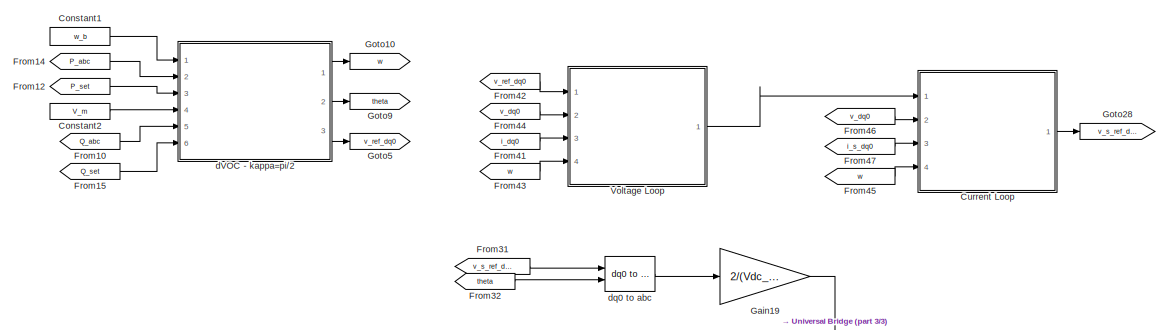
[diagram: Grid-Forming Converter Controlled by dVOC  - part 1/3, top center region]
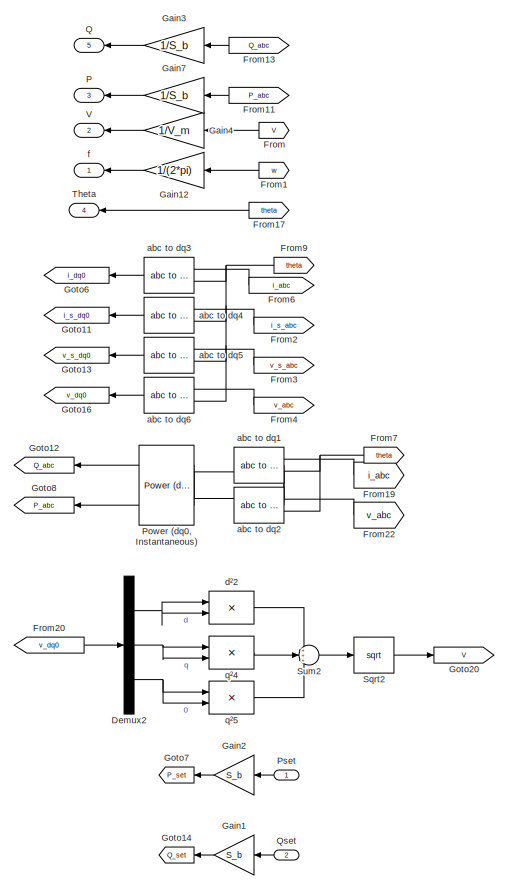
[diagram: Grid-Forming Converter Controlled by dVOC  - part 2/3, left side, full height]
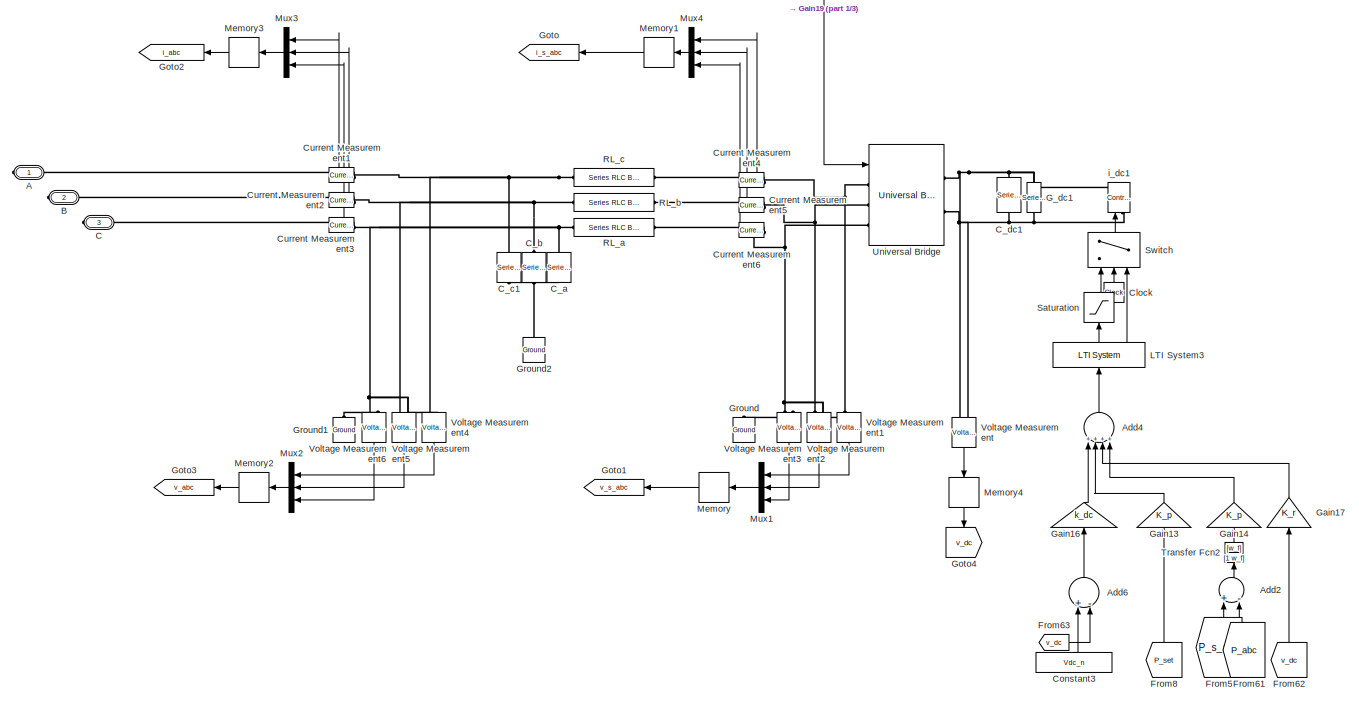
[diagram: Grid-Forming Converter Controlled by dVOC  - part 3/3, bottom center region]
BLOCK [SubSystem] Grid-Forming Converter Controlled by dVOC 
  Ports = [2, 5, 0, 0, 0, 0, 3]
  RequestExecContextInheritance = off
BLOCK [PMIOPort] Grid-Forming Converter Controlled by dVOC /A
  Side = Right
BLOCK [Sum] Grid-Forming Converter Controlled by dVOC /Add2
  InputSameDT = off
  Inputs = +-
  OutDataTypeStr = Inherit: Inherit via internal rule
  Ports = [2, 1]
  SaturateOnIntegerOverflow = off
BLOCK [Sum] Grid-Forming Converter Controlled by dVOC /Add4
  InputSameDT = off
  Inputs = ++++
  OutDataTypeStr = Inherit: Inherit via internal rule
  Ports = [4, 1]
  SaturateOnIntegerOverflow = off
BLOCK [Sum] Grid-Forming Converter Controlled by dVOC /Add6
  InputSameDT = off
  Inputs = +-
  OutDataTypeStr = Inherit: Inherit via internal rule
  Ports = [2, 1]
  SaturateOnIntegerOverflow = off
BLOCK [PMIOPort] Grid-Forming Converter Controlled by dVOC /B
  Port = 2
  Side = Right
BLOCK [PMIOPort] Grid-Forming Converter Controlled by dVOC /C
  Port = 3
  Side = Right
BLOCK [Reference] Grid-Forming Converter Controlled by dVOC /C_a  REF=powerlib/Elements/Series RLC Branch
  Ports = [0, 0, 0, 0, 0, 1, 1]
  SourceBlock = powerlib/Elements/Series RLC Branch
  SourceProductBaseCode = PS
  SourceProductName = Simscape Power Systems
  SourceType = Series RLC Branch
BLOCK [Reference] Grid-Forming Converter Controlled by dVOC /C_b  REF=powerlib/Elements/Series RLC Branch
  Ports = [0, 0, 0, 0, 0, 1, 1]
  SourceBlock = powerlib/Elements/Series RLC Branch
  SourceProductBaseCode = PS
  SourceProductName = Simscape Power Systems
  SourceType = Series RLC Branch
BLOCK [Reference] Grid-Forming Converter Controlled by dVOC /C_c1  REF=powerlib/Elements/Series RLC Branch
  Ports = [0, 0, 0, 0, 0, 1, 1]
  SourceBlock = powerlib/Elements/Series RLC Branch
  SourceProductBaseCode = PS
  SourceProductName = Simscape Power Systems
  SourceType = Series RLC Branch
BLOCK [Reference] Grid-Forming Converter Controlled by dVOC /C_dc1  REF=powerlib/Elements/Series RLC Branch
  Ports = [0, 0, 0, 0, 0, 1, 1]
  SourceBlock = powerlib/Elements/Series RLC Branch
  SourceProductBaseCode = PS
  SourceProductName = Simscape Power Systems
  SourceType = Series RLC Branch
BLOCK [Clock] Grid-Forming Converter Controlled by dVOC /Clock
BLOCK [Constant] Grid-Forming Converter Controlled by dVOC /Constant1
  Value = w_b
BLOCK [Constant] Grid-Forming Converter Controlled by dVOC /Constant2
  Value = V_m
BLOCK [Constant] Grid-Forming Converter Controlled by dVOC /Constant3
  Value = Vdc_n
BLOCK [SubSystem] Grid-Forming Converter Controlled by dVOC /Current Loop
  Ports = [4, 1]
  RequestExecContextInheritance = off
BLOCK [Demux] Grid-Forming Converter Controlled by dVOC /Current Loop/Demux
  DisplayOption = bar
  Outputs = 2
  Ports = [1, 2]
BLOCK [Demux] Grid-Forming Converter Controlled by dVOC /Current Loop/Demux1
  DisplayOption = bar
  Outputs = 2
  Ports = [1, 2]
BLOCK [Demux] Grid-Forming Converter Controlled by dVOC /Current Loop/Demux2
  DisplayOption = bar
  Outputs = 2
  Ports = [1, 2]
BLOCK [Reference] Grid-Forming Converter Controlled by dVOC /Current Loop/First-Order Filter2  REF=powerlib_meascontrol/Filters/First-Order
Filter
  Commented = on
  Ports = [1, 1]
  SourceBlock = powerlib_meascontrol/Filters/First-Order\nFilter
  SourceProductBaseCode = PS
  SourceProductName = Simscape Power Systems
  SourceType = First-Order Filter
BLOCK [Reference] Grid-Forming Converter Controlled by dVOC /Current Loop/First-Order Filter3  REF=powerlib_meascontrol/Filters/First-Order
Filter
  Commented = on
  Ports = [1, 1]
  SourceBlock = powerlib_meascontrol/Filters/First-Order\nFilter
  SourceProductBaseCode = PS
  SourceProductName = Simscape Power Systems
  SourceType = First-Order Filter
BLOCK [Gain] Grid-Forming Converter Controlled by dVOC /Current Loop/Gain Corrector
  Gain = Kp_i
  OutDataTypeStr = Inherit: Inherit via internal rule
  ParamDataTypeStr = Inherit: Inherit via internal rule
  SaturateOnIntegerOverflow = off
BLOCK [Gain] Grid-Forming Converter Controlled by dVOC /Current Loop/Gain Corrector1
  Gain = Kp_i
  OutDataTypeStr = Inherit: Inherit via internal rule
  ParamDataTypeStr = Inherit: Inherit via internal rule
  SaturateOnIntegerOverflow = off
BLOCK [Gain] Grid-Forming Converter Controlled by dVOC /Current Loop/Integration Time
  Gain = Ki_i / Kp_i
  OutDataTypeStr = Inherit: Inherit via internal rule
  ParamDataTypeStr = Inherit: Inherit via internal rule
  SaturateOnIntegerOverflow = off
BLOCK [Gain] Grid-Forming Converter Controlled by dVOC /Current Loop/Integration Time 1
  Gain = Ki_i / Kp_i
  OutDataTypeStr = Inherit: Inherit via internal rule
  ParamDataTypeStr = Inherit: Inherit via internal rule
  SaturateOnIntegerOverflow = off
BLOCK [Gain] Grid-Forming Converter Controlled by dVOC /Current Loop/Integration Time1
  Gain = 1/n
  OutDataTypeStr = Inherit: Inherit via internal rule
  ParamDataTypeStr = Inherit: Inherit via internal rule
  SaturateOnIntegerOverflow = off
BLOCK [Gain] Grid-Forming Converter Controlled by dVOC /Current Loop/Integration Time2
  Gain = 1/n
  OutDataTypeStr = Inherit: Inherit via internal rule
  ParamDataTypeStr = Inherit: Inherit via internal rule
  SaturateOnIntegerOverflow = off
BLOCK [Integrator] Grid-Forming Converter Controlled by dVOC /Current Loop/Integrator
  InitialCondition = 0.0001
  Ports = [1, 1]
BLOCK [Integrator] Grid-Forming Converter Controlled by dVOC /Current Loop/Integrator 1
  Ports = [1, 1]
BLOCK [Mux] Grid-Forming Converter Controlled by dVOC /Current Loop/Mux
  DisplayOption = bar
  Inputs = 3
  Ports = [3, 1]
BLOCK [Product] Grid-Forming Converter Controlled by dVOC /Current Loop/Product
  InputSameDT = off
  OutDataTypeStr = Inherit: Inherit via internal rule
  Ports = [2, 1]
  SaturateOnIntegerOverflow = off
BLOCK [Product] Grid-Forming Converter Controlled by dVOC /Current Loop/Product1
  InputSameDT = off
  OutDataTypeStr = Inherit: Inherit via internal rule
  Ports = [2, 1]
  SaturateOnIntegerOverflow = off
BLOCK [Selector] Grid-Forming Converter Controlled by dVOC /Current Loop/Selector1
  IndexOptions = Index vector (dialog)
  Indices = [1 2]
  InputPortWidth = 3
  OutputSizes = 1
  Ports = [1, 1]
BLOCK [Selector] Grid-Forming Converter Controlled by dVOC /Current Loop/Selector2
  IndexOptions = Index vector (dialog)
  Indices = [1 2]
  InputPortWidth = 3
  OutputSizes = 1
  Ports = [1, 1]
BLOCK [Selector] Grid-Forming Converter Controlled by dVOC /Current Loop/Selector3
  IndexOptions = Index vector (dialog)
  Indices = [1 2]
  InputPortWidth = 3
  OutputSizes = 1
  Ports = [1, 1]
BLOCK [Sum] Grid-Forming Converter Controlled by dVOC /Current Loop/Sum
  IconShape = round
  InputSameDT = off
  Inputs = |+-
  OutDataTypeStr = Inherit: Inherit via internal rule
  Ports = [2, 1]
  SaturateOnIntegerOverflow = off
BLOCK [Sum] Grid-Forming Converter Controlled by dVOC /Current Loop/Sum1
  IconShape = round
  InputSameDT = off
  Inputs = |++
  OutDataTypeStr = Inherit: Inherit via internal rule
  Ports = [2, 1]
  SaturateOnIntegerOverflow = off
BLOCK [Sum] Grid-Forming Converter Controlled by dVOC /Current Loop/Sum2
  IconShape = round
  InputSameDT = off
  Inputs = |+-
  OutDataTypeStr = Inherit: Inherit via internal rule
  Ports = [2, 1]
  SaturateOnIntegerOverflow = off
BLOCK [Sum] Grid-Forming Converter Controlled by dVOC /Current Loop/Sum3
  IconShape = round
  InputSameDT = off
  Inputs = |++
  OutDataTypeStr = Inherit: Inherit via internal rule
  Ports = [2, 1]
  SaturateOnIntegerOverflow = off
BLOCK [Sum] Grid-Forming Converter Controlled by dVOC /Current Loop/Sum4
  IconShape = round
  InputSameDT = off
  Inputs = |++
  OutDataTypeStr = Inherit: Inherit via internal rule
  Ports = [2, 1]
  SaturateOnIntegerOverflow = off
BLOCK [Sum] Grid-Forming Converter Controlled by dVOC /Current Loop/Sum5
  IconShape = round
  InputSameDT = off
  Inputs = ++|
  OutDataTypeStr = Inherit: Inherit via internal rule
  Ports = [2, 1]
  SaturateOnIntegerOverflow = off
BLOCK [Sum] Grid-Forming Converter Controlled by dVOC /Current Loop/Sum6
  IconShape = round
  InputSameDT = off
  Inputs = -+|
  OutDataTypeStr = Inherit: Inherit via internal rule
  Ports = [2, 1]
  SaturateOnIntegerOverflow = off
BLOCK [Sum] Grid-Forming Converter Controlled by dVOC /Current Loop/Sum7
  IconShape = round
  InputSameDT = off
  Inputs = ++|
  OutDataTypeStr = Inherit: Inherit via internal rule
  Ports = [2, 1]
  SaturateOnIntegerOverflow = off
BLOCK [Constant] Grid-Forming Converter Controlled by dVOC /Current Loop/Vm_0*
  Value = 0
BLOCK [Gain] Grid-Forming Converter Controlled by dVOC /Current Loop/Voltage Compensator 1
  Gain = Kff_v
  OutDataTypeStr = Inherit: Inherit via internal rule
  ParamDataTypeStr = Inherit: Inherit via internal rule
  SaturateOnIntegerOverflow = off
BLOCK [Gain] Grid-Forming Converter Controlled by dVOC /Current Loop/Voltage compensator
  Gain = Kff_v
  OutDataTypeStr = Inherit: Inherit via internal rule
  ParamDataTypeStr = Inherit: Inherit via internal rule
  SaturateOnIntegerOverflow = off
BLOCK [Inport] Grid-Forming Converter Controlled by dVOC /Current Loop/i_s_dq0
  IconDisplay = Port number
  Port = 3
BLOCK [Inport] Grid-Forming Converter Controlled by dVOC /Current Loop/i_s_ref_dq0
  IconDisplay = Port number
BLOCK [Inport] Grid-Forming Converter Controlled by dVOC /Current Loop/v_dq0
  IconDisplay = Port number
  Port = 2
BLOCK [Outport] Grid-Forming Converter Controlled by dVOC /Current Loop/v_s_ref_dq0
  IconDisplay = Port number
BLOCK [Inport] Grid-Forming Converter Controlled by dVOC /Current Loop/w
  IconDisplay = Port number
  Port = 4
BLOCK [Gain] Grid-Forming Converter Controlled by dVOC /Current Loop/w*Lf_pu
  Gain = L_f
  OutDataTypeStr = Inherit: Inherit via internal rule
  ParamDataTypeStr = Inherit: Inherit via internal rule
  SaturateOnIntegerOverflow = off
BLOCK [Reference] Grid-Forming Converter Controlled by dVOC /Current Measurement1  REF=powerlib/Measurements/Current Measurement
  Ports = [0, 1, 0, 0, 0, 1, 1]
  SourceBlock = powerlib/Measurements/Current Measurement
  SourceProductBaseCode = PS
  SourceProductName = Simscape Power Systems
  SourceType = Current Measurement
  UserDataPersistent = on
BLOCK [Reference] Grid-Forming Converter Controlled by dVOC /Current Measurement2  REF=powerlib/Measurements/Current Measurement
  Ports = [0, 1, 0, 0, 0, 1, 1]
  SourceBlock = powerlib/Measurements/Current Measurement
  SourceProductBaseCode = PS
  SourceProductName = Simscape Power Systems
  SourceType = Current Measurement
  UserDataPersistent = on
BLOCK [Reference] Grid-Forming Converter Controlled by dVOC /Current Measurement3  REF=powerlib/Measurements/Current Measurement
  Ports = [0, 1, 0, 0, 0, 1, 1]
  SourceBlock = powerlib/Measurements/Current Measurement
  SourceProductBaseCode = PS
  SourceProductName = Simscape Power Systems
  SourceType = Current Measurement
  UserDataPersistent = on
BLOCK [Reference] Grid-Forming Converter Controlled by dVOC /Current Measurement4  REF=powerlib/Measurements/Current Measurement
  Ports = [0, 1, 0, 0, 0, 1, 1]
  SourceBlock = powerlib/Measurements/Current Measurement
  SourceProductBaseCode = PS
  SourceProductName = Simscape Power Systems
  SourceType = Current Measurement
  UserDataPersistent = on
BLOCK [Reference] Grid-Forming Converter Controlled by dVOC /Current Measurement5  REF=powerlib/Measurements/Current Measurement
  Ports = [0, 1, 0, 0, 0, 1, 1]
  SourceBlock = powerlib/Measurements/Current Measurement
  SourceProductBaseCode = PS
  SourceProductName = Simscape Power Systems
  SourceType = Current Measurement
  UserDataPersistent = on
BLOCK [Reference] Grid-Forming Converter Controlled by dVOC /Current Measurement6  REF=powerlib/Measurements/Current Measurement
  Ports = [0, 1, 0, 0, 0, 1, 1]
  SourceBlock = powerlib/Measurements/Current Measurement
  SourceProductBaseCode = PS
  SourceProductName = Simscape Power Systems
  SourceType = Current Measurement
  UserDataPersistent = on
BLOCK [Demux] Grid-Forming Converter Controlled by dVOC /Demux2
  DisplayOption = bar
  Outputs = 3
  Ports = [1, 3]
BLOCK [From] Grid-Forming Converter Controlled by dVOC /From
  GotoTag = V
BLOCK [From] Grid-Forming Converter Controlled by dVOC /From1
  GotoTag = w
BLOCK [From] Grid-Forming Converter Controlled by dVOC /From10
  GotoTag = Q_abc
BLOCK [From] Grid-Forming Converter Controlled by dVOC /From11
  GotoTag = P_abc
BLOCK [From] Grid-Forming Converter Controlled by dVOC /From12
  GotoTag = P_set
BLOCK [From] Grid-Forming Converter Controlled by dVOC /From13
  GotoTag = Q_abc
BLOCK [From] Grid-Forming Converter Controlled by dVOC /From14
  GotoTag = P_abc
BLOCK [From] Grid-Forming Converter Controlled by dVOC /From15
  GotoTag = Q_set
BLOCK [From] Grid-Forming Converter Controlled by dVOC /From17
  GotoTag = theta
BLOCK [From] Grid-Forming Converter Controlled by dVOC /From19
  GotoTag = i_abc
BLOCK [From] Grid-Forming Converter Controlled by dVOC /From2
  GotoTag = i_s_abc
BLOCK [From] Grid-Forming Converter Controlled by dVOC /From20
  GotoTag = v_dq0
BLOCK [From] Grid-Forming Converter Controlled by dVOC /From22
  GotoTag = v_abc
BLOCK [From] Grid-Forming Converter Controlled by dVOC /From3
  GotoTag = v_s_abc
BLOCK [From] Grid-Forming Converter Controlled by dVOC /From31
  GotoTag = v_s_ref_dq0
BLOCK [From] Grid-Forming Converter Controlled by dVOC /From32
  GotoTag = theta
BLOCK [From] Grid-Forming Converter Controlled by dVOC /From4
  GotoTag = v_abc
BLOCK [From] Grid-Forming Converter Controlled by dVOC /From41
  GotoTag = i_dq0
BLOCK [From] Grid-Forming Converter Controlled by dVOC /From42
  GotoTag = v_ref_dq0
BLOCK [From] Grid-Forming Converter Controlled by dVOC /From43
  GotoTag = w
BLOCK [From] Grid-Forming Converter Controlled by dVOC /From44
  GotoTag = v_dq0
BLOCK [From] Grid-Forming Converter Controlled by dVOC /From45
  GotoTag = w
BLOCK [From] Grid-Forming Converter Controlled by dVOC /From46
  GotoTag = v_dq0
BLOCK [From] Grid-Forming Converter Controlled by dVOC /From47
  GotoTag = i_s_dq0
BLOCK [From] Grid-Forming Converter Controlled by dVOC /From5
  GotoTag = P_s_abc
BLOCK [From] Grid-Forming Converter Controlled by dVOC /From6
  GotoTag = i_abc
BLOCK [From] Grid-Forming Converter Controlled by dVOC /From61
  GotoTag = P_abc
BLOCK [From] Grid-Forming Converter Controlled by dVOC /From62
  GotoTag = v_dc
BLOCK [From] Grid-Forming Converter Controlled by dVOC /From63
  GotoTag = v_dc
BLOCK [From] Grid-Forming Converter Controlled by dVOC /From7
  GotoTag = theta
BLOCK [From] Grid-Forming Converter Controlled by dVOC /From8
  GotoTag = P_set
BLOCK [From] Grid-Forming Converter Controlled by dVOC /From9
  GotoTag = theta
BLOCK [Reference] Grid-Forming Converter Controlled by dVOC /G_dc1  REF=powerlib/Elements/Series RLC Branch
  Ports = [0, 0, 0, 0, 0, 1, 1]
  SourceBlock = powerlib/Elements/Series RLC Branch
  SourceProductBaseCode = PS
  SourceProductName = Simscape Power Systems
  SourceType = Series RLC Branch
BLOCK [Gain] Grid-Forming Converter Controlled by dVOC /Gain1
  Gain = S_b
  OutDataTypeStr = Inherit: Inherit via internal rule
  ParamDataTypeStr = Inherit: Inherit via internal rule
  SaturateOnIntegerOverflow = off
BLOCK [Gain] Grid-Forming Converter Controlled by dVOC /Gain12
  Gain = 1/(2*pi)
  OutDataTypeStr = Inherit: Inherit via internal rule
  ParamDataTypeStr = Inherit: Inherit via internal rule
  SaturateOnIntegerOverflow = off
BLOCK [Gain] Grid-Forming Converter Controlled by dVOC /Gain13
  Gain = K_p
  OutDataTypeStr = Inherit: Inherit via internal rule
  ParamDataTypeStr = Inherit: Inherit via internal rule
  SaturateOnIntegerOverflow = off
BLOCK [Gain] Grid-Forming Converter Controlled by dVOC /Gain14
  Gain = K_p
  OutDataTypeStr = Inherit: Inherit via internal rule
  ParamDataTypeStr = Inherit: Inherit via internal rule
  SaturateOnIntegerOverflow = off
BLOCK [Gain] Grid-Forming Converter Controlled by dVOC /Gain16
  Gain = k_dc
  OutDataTypeStr = Inherit: Inherit via internal rule
  ParamDataTypeStr = Inherit: Inherit via internal rule
  SaturateOnIntegerOverflow = off
BLOCK [Gain] Grid-Forming Converter Controlled by dVOC /Gain17
  Gain = K_r
  OutDataTypeStr = Inherit: Inherit via internal rule
  ParamDataTypeStr = Inherit: Inherit via internal rule
  SaturateOnIntegerOverflow = off
BLOCK [Gain] Grid-Forming Converter Controlled by dVOC /Gain19
  Gain = 2/(Vdc_n)
  OutDataTypeStr = Inherit: Inherit via internal rule
  ParamDataTypeStr = Inherit: Inherit via internal rule
  SaturateOnIntegerOverflow = off
BLOCK [Gain] Grid-Forming Converter Controlled by dVOC /Gain2
  Gain = S_b
  OutDataTypeStr = Inherit: Inherit via internal rule
  ParamDataTypeStr = Inherit: Inherit via internal rule
  SaturateOnIntegerOverflow = off
BLOCK [Gain] Grid-Forming Converter Controlled by dVOC /Gain3
  Gain = 1/S_b
  OutDataTypeStr = Inherit: Inherit via internal rule
  ParamDataTypeStr = Inherit: Inherit via internal rule
  SaturateOnIntegerOverflow = off
BLOCK [Gain] Grid-Forming Converter Controlled by dVOC /Gain4
  Gain = 1/V_m
  OutDataTypeStr = Inherit: Inherit via internal rule
  ParamDataTypeStr = Inherit: Inherit via internal rule
  SaturateOnIntegerOverflow = off
BLOCK [Gain] Grid-Forming Converter Controlled by dVOC /Gain7
  Gain = 1/S_b
  OutDataTypeStr = Inherit: Inherit via internal rule
  ParamDataTypeStr = Inherit: Inherit via internal rule
  SaturateOnIntegerOverflow = off
BLOCK [Goto] Grid-Forming Converter Controlled by dVOC /Goto
  GotoTag = i_s_abc
BLOCK [Goto] Grid-Forming Converter Controlled by dVOC /Goto1
  GotoTag = v_s_abc
BLOCK [Goto] Grid-Forming Converter Controlled by dVOC /Goto10
  GotoTag = w
BLOCK [Goto] Grid-Forming Converter Controlled by dVOC /Goto11
  GotoTag = i_s_dq0
BLOCK [Goto] Grid-Forming Converter Controlled by dVOC /Goto12
  GotoTag = Q_abc
BLOCK [Goto] Grid-Forming Converter Controlled by dVOC /Goto13
  GotoTag = v_s_dq0
BLOCK [Goto] Grid-Forming Converter Controlled by dVOC /Goto14
  GotoTag = Q_set
BLOCK [Goto] Grid-Forming Converter Controlled by dVOC /Goto16
  GotoTag = v_dq0
BLOCK [Goto] Grid-Forming Converter Controlled by dVOC /Goto2
  GotoTag = i_abc
BLOCK [Goto] Grid-Forming Converter Controlled by dVOC /Goto20
  GotoTag = V
BLOCK [Goto] Grid-Forming Converter Controlled by dVOC /Goto28
  GotoTag = v_s_ref_dq0
BLOCK [Goto] Grid-Forming Converter Controlled by dVOC /Goto3
  GotoTag = v_abc
BLOCK [Goto] Grid-Forming Converter Controlled by dVOC /Goto4
  GotoTag = v_dc
BLOCK [Goto] Grid-Forming Converter Controlled by dVOC /Goto5
  GotoTag = v_ref_dq0
BLOCK [Goto] Grid-Forming Converter Controlled by dVOC /Goto6
  GotoTag = i_dq0
BLOCK [Goto] Grid-Forming Converter Controlled by dVOC /Goto7
  GotoTag = P_set
BLOCK [Goto] Grid-Forming Converter Controlled by dVOC /Goto8
  GotoTag = P_abc
BLOCK [Goto] Grid-Forming Converter Controlled by dVOC /Goto9
  GotoTag = theta
BLOCK [Reference] Grid-Forming Converter Controlled by dVOC /Ground  REF=powerlib/Elements/Ground
  Ports = [0, 0, 0, 0, 0, 1]
  SourceBlock = powerlib/Elements/Ground
  SourceProductBaseCode = PS
  SourceProductName = Simscape Power Systems
  SourceType = Ground
BLOCK [Reference] Grid-Forming Converter Controlled by dVOC /Ground1  REF=powerlib/Elements/Ground
  Ports = [0, 0, 0, 0, 0, 1]
  SourceBlock = powerlib/Elements/Ground
  SourceProductBaseCode = PS
  SourceProductName = Simscape Power Systems
  SourceType = Ground
BLOCK [Reference] Grid-Forming Converter Controlled by dVOC /Ground2  REF=powerlib/Elements/Ground
  Ports = [0, 0, 0, 0, 0, 1]
  SourceBlock = powerlib/Elements/Ground
  SourceProductBaseCode = PS
  SourceProductName = Simscape Power Systems
  SourceType = Ground
BLOCK [Reference] Grid-Forming Converter Controlled by dVOC /LTI System3  REF=cstblocks/LTI System
  Ports = [1, 1]
  SourceBlock = cstblocks/LTI System
  SourceProductBaseCode = CT
  SourceProductName = Control System Toolbox
  SourceType = LTI Block
BLOCK [Memory] Grid-Forming Converter Controlled by dVOC /Memory
BLOCK [Memory] Grid-Forming Converter Controlled by dVOC /Memory1
BLOCK [Memory] Grid-Forming Converter Controlled by dVOC /Memory2
BLOCK [Memory] Grid-Forming Converter Controlled by dVOC /Memory3
BLOCK [Memory] Grid-Forming Converter Controlled by dVOC /Memory4
BLOCK [Mux] Grid-Forming Converter Controlled by dVOC /Mux1
  DisplayOption = bar
  Inputs = 3
  Ports = [3, 1]
BLOCK [Mux] Grid-Forming Converter Controlled by dVOC /Mux2
  DisplayOption = bar
  Inputs = 3
  Ports = [3, 1]
BLOCK [Mux] Grid-Forming Converter Controlled by dVOC /Mux3
  DisplayOption = bar
  Inputs = 3
  Ports = [3, 1]
BLOCK [Mux] Grid-Forming Converter Controlled by dVOC /Mux4
  DisplayOption = bar
  Inputs = 3
  Ports = [3, 1]
BLOCK [Outport] Grid-Forming Converter Controlled by dVOC /P
  IconDisplay = Port number
  Port = 3
BLOCK [Reference] Grid-Forming Converter Controlled by dVOC /Power (dq0, Instantaneous)  REF=powerlib_meascontrol/Measurements/Power
(dq0, Instantaneous)
  Ports = [2, 2]
  SourceBlock = powerlib_meascontrol/Measurements/Power\n(dq0, Instantaneous)
  SourceProductBaseCode = PS
  SourceProductName = Simscape Power Systems
  SourceType = Power (dq0, Instantaneous)
BLOCK [Inport] Grid-Forming Converter Controlled by dVOC /Pset
  IconDisplay = Port number
BLOCK [Outport] Grid-Forming Converter Controlled by dVOC /Q
  IconDisplay = Port number
  Port = 5
BLOCK [Inport] Grid-Forming Converter Controlled by dVOC /Qset
  IconDisplay = Port number
  Port = 2
BLOCK [Reference] Grid-Forming Converter Controlled by dVOC /RL_a  REF=powerlib/Elements/Series RLC Branch
  Ports = [0, 0, 0, 0, 0, 1, 1]
  SourceBlock = powerlib/Elements/Series RLC Branch
  SourceProductBaseCode = PS
  SourceProductName = Simscape Power Systems
  SourceType = Series RLC Branch
BLOCK [Reference] Grid-Forming Converter Controlled by dVOC /RL_b  REF=powerlib/Elements/Series RLC Branch
  Ports = [0, 0, 0, 0, 0, 1, 1]
  SourceBlock = powerlib/Elements/Series RLC Branch
  SourceProductBaseCode = PS
  SourceProductName = Simscape Power Systems
  SourceType = Series RLC Branch
BLOCK [Reference] Grid-Forming Converter Controlled by dVOC /RL_c  REF=powerlib/Elements/Series RLC Branch
  Ports = [0, 0, 0, 0, 0, 1, 1]
  SourceBlock = powerlib/Elements/Series RLC Branch
  SourceProductBaseCode = PS
  SourceProductName = Simscape Power Systems
  SourceType = Series RLC Branch
BLOCK [Saturate] Grid-Forming Converter Controlled by dVOC /Saturation
  InputPortMap = u0
  LowerLimit = i_ll
  Ports = [1, 1]
  UpperLimit = i_ul
BLOCK [Sqrt] Grid-Forming Converter Controlled by dVOC /Sqrt2
BLOCK [Sum] Grid-Forming Converter Controlled by dVOC /Sum2
  IconShape = round
  Inputs = +++
  Ports = [3, 1]
BLOCK [Switch] Grid-Forming Converter Controlled by dVOC /Switch
  Criteria = u2 > Threshold
  InputSameDT = off
  SaturateOnIntegerOverflow = off
  Threshold = T_en
BLOCK [Outport] Grid-Forming Converter Controlled by dVOC /Theta
  IconDisplay = Port number
  Port = 4
BLOCK [TransferFcn] Grid-Forming Converter Controlled by dVOC /Transfer Fcn2
  Denominator = [1 w_f]
  Numerator = [w_f]
BLOCK [Reference] Grid-Forming Converter Controlled by dVOC /Universal Bridge  REF=powerlib/Power
Electronics/Universal Bridge
  Ports = [1, 0, 0, 0, 0, 3, 2]
  SourceBlock = powerlib/Power\nElectronics/Universal Bridge
  SourceProductBaseCode = PS
  SourceProductName = Simscape Power Systems
  SourceType = Universal Bridge
BLOCK [Outport] Grid-Forming Converter Controlled by dVOC /V
  IconDisplay = Port number
  Port = 2
BLOCK [SubSystem] Grid-Forming Converter Controlled by dVOC /Voltage Loop
  Ports = [4, 1]
  RequestExecContextInheritance = off
BLOCK [Gain] Grid-Forming Converter Controlled by dVOC /Voltage Loop/Current Compensator
  Gain = Kff_i
  OutDataTypeStr = Inherit: Inherit via internal rule
  ParamDataTypeStr = Inherit: Inherit via internal rule
  SaturateOnIntegerOverflow = off
BLOCK [Gain] Grid-Forming Converter Controlled by dVOC /Voltage Loop/Current Compensator1
  Gain = Kff_i
  OutDataTypeStr = Inherit: Inherit via internal rule
  ParamDataTypeStr = Inherit: Inherit via internal rule
  SaturateOnIntegerOverflow = off
BLOCK [Gain] Grid-Forming Converter Controlled by dVOC /Voltage Loop/Damping (d)
  Gain = Kp_v
  OutDataTypeStr = Inherit: Inherit via internal rule
  ParamDataTypeStr = Inherit: Inherit via internal rule
  SaturateOnIntegerOverflow = off
BLOCK [Gain] Grid-Forming Converter Controlled by dVOC /Voltage Loop/Damping (q)
  Gain = Kp_v
  OutDataTypeStr = Inherit: Inherit via internal rule
  ParamDataTypeStr = Inherit: Inherit via internal rule
  SaturateOnIntegerOverflow = off
BLOCK [Demux] Grid-Forming Converter Controlled by dVOC /Voltage Loop/Demux
  DisplayOption = bar
  Outputs = 2
  Ports = [1, 2]
BLOCK [Demux] Grid-Forming Converter Controlled by dVOC /Voltage Loop/Demux1
  DisplayOption = bar
  Outputs = 2
  Ports = [1, 2]
BLOCK [Demux] Grid-Forming Converter Controlled by dVOC /Voltage Loop/Demux2
  DisplayOption = bar
  Outputs = 2
  Ports = [1, 2]
BLOCK [Product] Grid-Forming Converter Controlled by dVOC /Voltage Loop/Eg_d * (wCf)
  InputSameDT = off
  OutDataTypeStr = Inherit: Inherit via internal rule
  Ports = [2, 1]
  SaturateOnIntegerOverflow = off
BLOCK [Product] Grid-Forming Converter Controlled by dVOC /Voltage Loop/Eg_q * (wCf) 
  InputSameDT = off
  OutDataTypeStr = Inherit: Inherit via internal rule
  Ports = [2, 1]
  SaturateOnIntegerOverflow = off
BLOCK [Gain] Grid-Forming Converter Controlled by dVOC /Voltage Loop/Filter capacitance
  Gain = C_f
  OutDataTypeStr = Inherit: Inherit via internal rule
  ParamDataTypeStr = Inherit: Inherit via internal rule
  SaturateOnIntegerOverflow = off
BLOCK [Gain] Grid-Forming Converter Controlled by dVOC /Voltage Loop/Integration Time
  Gain = Ki_v / Kp_v
  OutDataTypeStr = Inherit: Inherit via internal rule
  ParamDataTypeStr = Inherit: Inherit via internal rule
  SaturateOnIntegerOverflow = off
BLOCK [Gain] Grid-Forming Converter Controlled by dVOC /Voltage Loop/Integration Time1
  Gain = Ki_v / Kp_v
  OutDataTypeStr = Inherit: Inherit via internal rule
  ParamDataTypeStr = Inherit: Inherit via internal rule
  SaturateOnIntegerOverflow = off
BLOCK [Gain] Grid-Forming Converter Controlled by dVOC /Voltage Loop/Integration Time2
  Gain = n
  OutDataTypeStr = Inherit: Inherit via internal rule
  ParamDataTypeStr = Inherit: Inherit via internal rule
  SaturateOnIntegerOverflow = off
BLOCK [Gain] Grid-Forming Converter Controlled by dVOC /Voltage Loop/Integration Time3
  Gain = n
  OutDataTypeStr = Inherit: Inherit via internal rule
  ParamDataTypeStr = Inherit: Inherit via internal rule
  SaturateOnIntegerOverflow = off
BLOCK [Integrator] Grid-Forming Converter Controlled by dVOC /Voltage Loop/Integrator
  Ports = [1, 1]
BLOCK [Integrator] Grid-Forming Converter Controlled by dVOC /Voltage Loop/Integrator1
  Ports = [1, 1]
BLOCK [Constant] Grid-Forming Converter Controlled by dVOC /Voltage Loop/Is_0*
  Value = 0
BLOCK [Mux] Grid-Forming Converter Controlled by dVOC /Voltage Loop/Mux
  DisplayOption = bar
  Inputs = 3
  Ports = [3, 1]
BLOCK [Selector] Grid-Forming Converter Controlled by dVOC /Voltage Loop/Selector
  IndexOptions = Index vector (dialog)
  Indices = [1 2]
  InputPortWidth = 3
  OutputSizes = 1
  Ports = [1, 1]
BLOCK [Selector] Grid-Forming Converter Controlled by dVOC /Voltage Loop/Selector1
  IndexOptions = Index vector (dialog)
  Indices = [1 2]
  InputPortWidth = 3
  OutputSizes = 1
  Ports = [1, 1]
BLOCK [Selector] Grid-Forming Converter Controlled by dVOC /Voltage Loop/Selector2
  IndexOptions = Index vector (dialog)
  Indices = [1 2]
  InputPortWidth = 3
  OutputSizes = 1
  Ports = [1, 1]
BLOCK [Sum] Grid-Forming Converter Controlled by dVOC /Voltage Loop/Sum
  IconShape = round
  InputSameDT = off
  Inputs = |+-
  OutDataTypeStr = Inherit: Inherit via internal rule
  Ports = [2, 1]
  SaturateOnIntegerOverflow = off
BLOCK [Sum] Grid-Forming Converter Controlled by dVOC /Voltage Loop/Sum1
  IconShape = round
  InputSameDT = off
  Inputs = |++
  OutDataTypeStr = Inherit: Inherit via internal rule
  Ports = [2, 1]
  SaturateOnIntegerOverflow = off
BLOCK [Sum] Grid-Forming Converter Controlled by dVOC /Voltage Loop/Sum2
  IconShape = round
  InputSameDT = off
  Inputs = |+-
  OutDataTypeStr = Inherit: Inherit via internal rule
  Ports = [2, 1]
  SaturateOnIntegerOverflow = off
BLOCK [Sum] Grid-Forming Converter Controlled by dVOC /Voltage Loop/Sum3
  IconShape = round
  InputSameDT = off
  Inputs = |++
  OutDataTypeStr = Inherit: Inherit via internal rule
  Ports = [2, 1]
  SaturateOnIntegerOverflow = off
BLOCK [Sum] Grid-Forming Converter Controlled by dVOC /Voltage Loop/Sum4
  IconShape = round
  InputSameDT = off
  Inputs = |++
  OutDataTypeStr = Inherit: Inherit via internal rule
  Ports = [2, 1]
  SaturateOnIntegerOverflow = off
BLOCK [Sum] Grid-Forming Converter Controlled by dVOC /Voltage Loop/Sum5
  IconShape = round
  InputSameDT = off
  Inputs = ++|
  OutDataTypeStr = Inherit: Inherit via internal rule
  Ports = [2, 1]
  SaturateOnIntegerOverflow = off
BLOCK [Sum] Grid-Forming Converter Controlled by dVOC /Voltage Loop/Sum6
  IconShape = round
  InputSameDT = off
  Inputs = -+|
  OutDataTypeStr = Inherit: Inherit via internal rule
  Ports = [2, 1]
  SaturateOnIntegerOverflow = off
BLOCK [Sum] Grid-Forming Converter Controlled by dVOC /Voltage Loop/Sum7
  IconShape = round
  InputSameDT = off
  Inputs = ++|
  OutDataTypeStr = Inherit: Inherit via internal rule
  Ports = [2, 1]
  SaturateOnIntegerOverflow = off
BLOCK [Inport] Grid-Forming Converter Controlled by dVOC /Voltage Loop/i_dq0
  IconDisplay = Port number
  Port = 3
BLOCK [Outport] Grid-Forming Converter Controlled by dVOC /Voltage Loop/i_s_ref_dq0
  IconDisplay = Port number
BLOCK [Inport] Grid-Forming Converter Controlled by dVOC /Voltage Loop/v_dq0
  IconDisplay = Port number
  Port = 2
BLOCK [Inport] Grid-Forming Converter Controlled by dVOC /Voltage Loop/v_ref_dq0
  IconDisplay = Port number
BLOCK [Inport] Grid-Forming Converter Controlled by dVOC /Voltage Loop/w
  IconDisplay = Port number
  Port = 4
BLOCK [Reference] Grid-Forming Converter Controlled by dVOC /Voltage Measurement  REF=powerlib/Measurements/Voltage Measurement
  Ports = [0, 1, 0, 0, 0, 2]
  SourceBlock = powerlib/Measurements/Voltage Measurement
  SourceProductBaseCode = PS
  SourceProductName = Simscape Power Systems
  SourceType = Voltage Measurement
  UserDataPersistent = on
BLOCK [Reference] Grid-Forming Converter Controlled by dVOC /Voltage Measurement1  REF=powerlib/Measurements/Voltage Measurement
  Ports = [0, 1, 0, 0, 0, 2]
  SourceBlock = powerlib/Measurements/Voltage Measurement
  SourceProductBaseCode = PS
  SourceProductName = Simscape Power Systems
  SourceType = Voltage Measurement
  UserDataPersistent = on
BLOCK [Reference] Grid-Forming Converter Controlled by dVOC /Voltage Measurement2  REF=powerlib/Measurements/Voltage Measurement
  Ports = [0, 1, 0, 0, 0, 2]
  SourceBlock = powerlib/Measurements/Voltage Measurement
  SourceProductBaseCode = PS
  SourceProductName = Simscape Power Systems
  SourceType = Voltage Measurement
  UserDataPersistent = on
BLOCK [Reference] Grid-Forming Converter Controlled by dVOC /Voltage Measurement3  REF=powerlib/Measurements/Voltage Measurement
  Ports = [0, 1, 0, 0, 0, 2]
  SourceBlock = powerlib/Measurements/Voltage Measurement
  SourceProductBaseCode = PS
  SourceProductName = Simscape Power Systems
  SourceType = Voltage Measurement
  UserDataPersistent = on
BLOCK [Reference] Grid-Forming Converter Controlled by dVOC /Voltage Measurement4  REF=powerlib/Measurements/Voltage Measurement
  Ports = [0, 1, 0, 0, 0, 2]
  SourceBlock = powerlib/Measurements/Voltage Measurement
  SourceProductBaseCode = PS
  SourceProductName = Simscape Power Systems
  SourceType = Voltage Measurement
  UserDataPersistent = on
BLOCK [Reference] Grid-Forming Converter Controlled by dVOC /Voltage Measurement5  REF=powerlib/Measurements/Voltage Measurement
  Ports = [0, 1, 0, 0, 0, 2]
  SourceBlock = powerlib/Measurements/Voltage Measurement
  SourceProductBaseCode = PS
  SourceProductName = Simscape Power Systems
  SourceType = Voltage Measurement
  UserDataPersistent = on
BLOCK [Reference] Grid-Forming Converter Controlled by dVOC /Voltage Measurement6  REF=powerlib/Measurements/Voltage Measurement
  Ports = [0, 1, 0, 0, 0, 2]
  SourceBlock = powerlib/Measurements/Voltage Measurement
  SourceProductBaseCode = PS
  SourceProductName = Simscape Power Systems
  SourceType = Voltage Measurement
  UserDataPersistent = on
BLOCK [Reference] Grid-Forming Converter Controlled by dVOC /abc to dq1  REF=powerlib_meascontrol/Transformations/abc to dq0
  Ports = [2, 1]
  SourceBlock = powerlib_meascontrol/Transformations/abc to dq0
  SourceProductBaseCode = PS
  SourceProductName = Simscape Power Systems
  SourceType = abc to dq0 Transformation
BLOCK [Reference] Grid-Forming Converter Controlled by dVOC /abc to dq2  REF=powerlib_meascontrol/Transformations/abc to dq0
  Ports = [2, 1]
  SourceBlock = powerlib_meascontrol/Transformations/abc to dq0
  SourceProductBaseCode = PS
  SourceProductName = Simscape Power Systems
  SourceType = abc to dq0 Transformation
BLOCK [Reference] Grid-Forming Converter Controlled by dVOC /abc to dq3  REF=powerlib_meascontrol/Transformations/abc to dq0
  Ports = [2, 1]
  SourceBlock = powerlib_meascontrol/Transformations/abc to dq0
  SourceProductBaseCode = PS
  SourceProductName = Simscape Power Systems
  SourceType = abc to dq0 Transformation
BLOCK [Reference] Grid-Forming Converter Controlled by dVOC /abc to dq4  REF=powerlib_meascontrol/Transformations/abc to dq0
  Ports = [2, 1]
  SourceBlock = powerlib_meascontrol/Transformations/abc to dq0
  SourceProductBaseCode = PS
  SourceProductName = Simscape Power Systems
  SourceType = abc to dq0 Transformation
BLOCK [Reference] Grid-Forming Converter Controlled by dVOC /abc to dq5  REF=powerlib_meascontrol/Transformations/abc to dq0
  Ports = [2, 1]
  SourceBlock = powerlib_meascontrol/Transformations/abc to dq0
  SourceProductBaseCode = PS
  SourceProductName = Simscape Power Systems
  SourceType = abc to dq0 Transformation
BLOCK [Reference] Grid-Forming Converter Controlled by dVOC /abc to dq6  REF=powerlib_meascontrol/Transformations/abc to dq0
  Ports = [2, 1]
  SourceBlock = powerlib_meascontrol/Transformations/abc to dq0
  SourceProductBaseCode = PS
  SourceProductName = Simscape Power Systems
  SourceType = abc to dq0 Transformation
BLOCK [SubSystem] Grid-Forming Converter Controlled by dVOC /dVOC  - kappa=pi//2
  Ports = [6, 3]
  RequestExecContextInheritance = off
BLOCK [SubSystem] Grid-Forming Converter Controlled by dVOC /dVOC  - kappa=pi//2/APC
  Ports = [4, 1]
  RequestExecContextInheritance = off
BLOCK [Constant] Grid-Forming Converter Controlled by dVOC /dVOC  - kappa=pi//2/APC/Constant
  Value = 1e-2
BLOCK [Product] Grid-Forming Converter Controlled by dVOC /dVOC  - kappa=pi//2/APC/Divide
  InputSameDT = off
  Inputs = */
  OutDataTypeStr = Inherit: Inherit via internal rule
  Ports = [2, 1]
  RndMeth = Floor
  SaturateOnIntegerOverflow = off
BLOCK [Product] Grid-Forming Converter Controlled by dVOC /dVOC  - kappa=pi//2/APC/Divide1
  InputSameDT = off
  Inputs = */
  OutDataTypeStr = Inherit: Inherit via internal rule
  Ports = [2, 1]
  RndMeth = Floor
  SaturateOnIntegerOverflow = off
BLOCK [Gain] Grid-Forming Converter Controlled by dVOC /dVOC  - kappa=pi//2/APC/Gain
  Gain = eta
  OutDataTypeStr = Inherit: Inherit via internal rule
  ParamDataTypeStr = Inherit: Inherit via internal rule
  SaturateOnIntegerOverflow = off
BLOCK [Math] Grid-Forming Converter Controlled by dVOC /dVOC  - kappa=pi//2/APC/Square
  Operator = square
  Ports = [1, 1]
BLOCK [Math] Grid-Forming Converter Controlled by dVOC /dVOC  - kappa=pi//2/APC/Square1
  Operator = square
  Ports = [1, 1]
BLOCK [Sum] Grid-Forming Converter Controlled by dVOC /dVOC  - kappa=pi//2/APC/Sum
  IconShape = round
  InputSameDT = off
  Inputs = |++
  OutDataTypeStr = Inherit: Inherit via internal rule
  Ports = [2, 1]
  SaturateOnIntegerOverflow = off
BLOCK [Sum] Grid-Forming Converter Controlled by dVOC /dVOC  - kappa=pi//2/APC/Sum1
  IconShape = round
  InputSameDT = off
  Inputs = |-+
  OutDataTypeStr = Inherit: Inherit via internal rule
  Ports = [2, 1]
  SaturateOnIntegerOverflow = off
BLOCK [TransferFcn] Grid-Forming Converter Controlled by dVOC /dVOC  - kappa=pi//2/APC/Transfer Fcn4
  Denominator = [1 w_f]
  Numerator = [w_f]
BLOCK [Outport] Grid-Forming Converter Controlled by dVOC /dVOC  - kappa=pi//2/APC/dw
  IconDisplay = Port number
BLOCK [Inport] Grid-Forming Converter Controlled by dVOC /dVOC  - kappa=pi//2/APC/p
  IconDisplay = Port number
BLOCK [Inport] Grid-Forming Converter Controlled by dVOC /dVOC  - kappa=pi//2/APC/p*
  IconDisplay = Port number
  Port = 2
BLOCK [Inport] Grid-Forming Converter Controlled by dVOC /dVOC  - kappa=pi//2/APC/v
  IconDisplay = Port number
  Port = 3
BLOCK [Inport] Grid-Forming Converter Controlled by dVOC /dVOC  - kappa=pi//2/APC/v*
  IconDisplay = Port number
  Port = 4
BLOCK [Integrator] Grid-Forming Converter Controlled by dVOC /dVOC  - kappa=pi//2/Integrator1
  InitialCondition = V_m
  Ports = [1, 1]
BLOCK [Integrator] Grid-Forming Converter Controlled by dVOC /dVOC  - kappa=pi//2/Integrator3
  Ports = [1, 1]
BLOCK [Product] Grid-Forming Converter Controlled by dVOC /dVOC  - kappa=pi//2/Multiply1
  InputSameDT = off
  OutDataTypeStr = Inherit: Inherit via internal rule
  Ports = [2, 1]
  RndMeth = Floor
  SaturateOnIntegerOverflow = off
BLOCK [Mux] Grid-Forming Converter Controlled by dVOC /dVOC  - kappa=pi//2/Mux4
  DisplayOption = bar
  Inputs = 3
  Ports = [3, 1]
BLOCK [SubSystem] Grid-Forming Converter Controlled by dVOC /dVOC  - kappa=pi//2/P-AVR
  Ports = [2, 1]
  RequestExecContextInheritance = off
BLOCK [Product] Grid-Forming Converter Controlled by dVOC /dVOC  - kappa=pi//2/P-AVR/Divide
  InputSameDT = off
  Inputs = */
  OutDataTypeStr = Inherit: Inherit via internal rule
  Ports = [2, 1]
  RndMeth = Floor
  SaturateOnIntegerOverflow = off
BLOCK [Gain] Grid-Forming Converter Controlled by dVOC /dVOC  - kappa=pi//2/P-AVR/Gain
  Gain = eta*alpha
  OutDataTypeStr = Inherit: Inherit via internal rule
  ParamDataTypeStr = Inherit: Inherit via internal rule
  SaturateOnIntegerOverflow = off
BLOCK [Math] Grid-Forming Converter Controlled by dVOC /dVOC  - kappa=pi//2/P-AVR/Square
  Operator = square
  Ports = [1, 1]
BLOCK [Math] Grid-Forming Converter Controlled by dVOC /dVOC  - kappa=pi//2/P-AVR/Square1
  Operator = square
  Ports = [1, 1]
BLOCK [Sum] Grid-Forming Converter Controlled by dVOC /dVOC  - kappa=pi//2/P-AVR/Sum1
  IconShape = round
  InputSameDT = off
  Inputs = |-+
  OutDataTypeStr = Inherit: Inherit via internal rule
  Ports = [2, 1]
  SaturateOnIntegerOverflow = off
BLOCK [Outport] Grid-Forming Converter Controlled by dVOC /dVOC  - kappa=pi//2/P-AVR/dv
  IconDisplay = Port number
BLOCK [Inport] Grid-Forming Converter Controlled by dVOC /dVOC  - kappa=pi//2/P-AVR/v
  IconDisplay = Port number
BLOCK [Inport] Grid-Forming Converter Controlled by dVOC /dVOC  - kappa=pi//2/P-AVR/v*
  IconDisplay = Port number
  Port = 2
BLOCK [SubSystem] Grid-Forming Converter Controlled by dVOC /dVOC  - kappa=pi//2/RPC
  Ports = [4, 1]
  RequestExecContextInheritance = off
BLOCK [Constant] Grid-Forming Converter Controlled by dVOC /dVOC  - kappa=pi//2/RPC/Constant
  Value = 10
BLOCK [Product] Grid-Forming Converter Controlled by dVOC /dVOC  - kappa=pi//2/RPC/Divide
  InputSameDT = off
  Inputs = */
  OutDataTypeStr = Inherit: Inherit via internal rule
  Ports = [2, 1]
  RndMeth = Floor
  SaturateOnIntegerOverflow = off
BLOCK [Product] Grid-Forming Converter Controlled by dVOC /dVOC  - kappa=pi//2/RPC/Divide1
  InputSameDT = off
  Inputs = */
  OutDataTypeStr = Inherit: Inherit via internal rule
  Ports = [2, 1]
  RndMeth = Floor
  SaturateOnIntegerOverflow = off
BLOCK [Gain] Grid-Forming Converter Controlled by dVOC /dVOC  - kappa=pi//2/RPC/Gain
  Gain = eta
  OutDataTypeStr = Inherit: Inherit via internal rule
  ParamDataTypeStr = Inherit: Inherit via internal rule
  SaturateOnIntegerOverflow = off
BLOCK [Math] Grid-Forming Converter Controlled by dVOC /dVOC  - kappa=pi//2/RPC/Square
  Operator = square
  Ports = [1, 1]
BLOCK [Math] Grid-Forming Converter Controlled by dVOC /dVOC  - kappa=pi//2/RPC/Square1
  Operator = square
  Ports = [1, 1]
BLOCK [Sum] Grid-Forming Converter Controlled by dVOC /dVOC  - kappa=pi//2/RPC/Sum
  IconShape = round
  InputSameDT = off
  Inputs = |++
  OutDataTypeStr = Inherit: Inherit via internal rule
  Ports = [2, 1]
  SaturateOnIntegerOverflow = off
BLOCK [Sum] Grid-Forming Converter Controlled by dVOC /dVOC  - kappa=pi//2/RPC/Sum1
  IconShape = round
  InputSameDT = off
  Inputs = |-+
  OutDataTypeStr = Inherit: Inherit via internal rule
  Ports = [2, 1]
  SaturateOnIntegerOverflow = off
BLOCK [TransferFcn] Grid-Forming Converter Controlled by dVOC /dVOC  - kappa=pi//2/RPC/Transfer Fcn4
  Denominator = [1 w_f]
  Numerator = [w_f]
BLOCK [Outport] Grid-Forming Converter Controlled by dVOC /dVOC  - kappa=pi//2/RPC/dv
  IconDisplay = Port number
BLOCK [Inport] Grid-Forming Converter Controlled by dVOC /dVOC  - kappa=pi//2/RPC/q
  IconDisplay = Port number
BLOCK [Inport] Grid-Forming Converter Controlled by dVOC /dVOC  - kappa=pi//2/RPC/q*
  IconDisplay = Port number
  Port = 2
BLOCK [Inport] Grid-Forming Converter Controlled by dVOC /dVOC  - kappa=pi//2/RPC/v
  IconDisplay = Port number
  Port = 3
BLOCK [Inport] Grid-Forming Converter Controlled by dVOC /dVOC  - kappa=pi//2/RPC/v*
  IconDisplay = Port number
  Port = 4
BLOCK [Scope] Grid-Forming Converter Controlled by dVOC /dVOC  - kappa=pi//2/Scope1
  Floating = off
  NumInputPorts = 1
  Ports = [1]
  ScopeSpecificationString = Simulink.scopes.TimeScopeBlockCfg('CurrentConfiguration', extmgr.ConfigurationSet(extmgr.Configuration('Core','General UI',true),extmgr.Configuration('Core','Source UI',true),extmgr.Configuration('Sources','WiredSimulink',true,'DataLoggingVariableName','ScopeData2'),extmgr.Configuration('Visuals','Time Domain',true,'SerializedDisplays',{struct('MinYLimReal','-0.2618','MaxYLimReal','2.35619','YLabe...<+1476ch>
BLOCK [Sum] Grid-Forming Converter Controlled by dVOC /dVOC  - kappa=pi//2/Sum4
  IconShape = round
  InputSameDT = off
  Inputs = |++
  OutDataTypeStr = Inherit: Inherit via internal rule
  Ports = [2, 1]
  SaturateOnIntegerOverflow = off
BLOCK [Sum] Grid-Forming Converter Controlled by dVOC /dVOC  - kappa=pi//2/Sum8
  IconShape = round
  InputSameDT = off
  Inputs = ++|
  OutDataTypeStr = Inherit: Inherit via internal rule
  Ports = [2, 1]
  SaturateOnIntegerOverflow = off
BLOCK [Inport] Grid-Forming Converter Controlled by dVOC /dVOC  - kappa=pi//2/p_m
  IconDisplay = Port number
  Port = 2
BLOCK [Inport] Grid-Forming Converter Controlled by dVOC /dVOC  - kappa=pi//2/p_set
  IconDisplay = Port number
  Port = 3
BLOCK [Constant] Grid-Forming Converter Controlled by dVOC /dVOC  - kappa=pi//2/q0
  Value = 0
BLOCK [Inport] Grid-Forming Converter Controlled by dVOC /dVOC  - kappa=pi//2/q_m
  IconDisplay = Port number
  Port = 5
BLOCK [Inport] Grid-Forming Converter Controlled by dVOC /dVOC  - kappa=pi//2/q_set
  IconDisplay = Port number
  Port = 6
BLOCK [Outport] Grid-Forming Converter Controlled by dVOC /dVOC  - kappa=pi//2/theta_ref
  IconDisplay = Port number
  Port = 2
BLOCK [Inport] Grid-Forming Converter Controlled by dVOC /dVOC  - kappa=pi//2/v_m
  IconDisplay = Port number
  Port = 4
BLOCK [Outport] Grid-Forming Converter Controlled by dVOC /dVOC  - kappa=pi//2/v_ref_dq0
  IconDisplay = Port number
  Port = 3
BLOCK [Inport] Grid-Forming Converter Controlled by dVOC /dVOC  - kappa=pi//2/w_b
  IconDisplay = Port number
BLOCK [Outport] Grid-Forming Converter Controlled by dVOC /dVOC  - kappa=pi//2/w_ref
  IconDisplay = Port number
BLOCK [Reference] Grid-Forming Converter Controlled by dVOC /dq0 to abc  REF=powerlib_meascontrol/Transformations/dq0 to abc
  Ports = [2, 1]
  SourceBlock = powerlib_meascontrol/Transformations/dq0 to abc
  SourceProductBaseCode = PS
  SourceProductName = Simscape Power Systems
  SourceType = dq0 to abc Transformation
BLOCK [Product] Grid-Forming Converter Controlled by dVOC /d²2
  Ports = [2, 1]
BLOCK [Outport] Grid-Forming Converter Controlled by dVOC /f
  IconDisplay = Port number
BLOCK [Reference] Grid-Forming Converter Controlled by dVOC /i_dc1  REF=powerlib/Electrical
Sources/Controlled Current Source
  Ports = [1, 0, 0, 0, 0, 1, 1]
  SourceBlock = powerlib/Electrical\nSources/Controlled Current Source
  SourceProductBaseCode = PS
  SourceProductName = Simscape Power Systems
  SourceType = Controlled Current Source
BLOCK [Product] Grid-Forming Converter Controlled by dVOC /q²4
  Ports = [2, 1]
BLOCK [Product] Grid-Forming Converter Controlled by dVOC /q²5
  Ports = [2, 1]
BLOCK [SubSystem] Synchronous Machine
  Ports = [1, 4, 0, 0, 0, 0, 3]
  RequestExecContextInheritance = off
BLOCK [PMIOPort] Synchronous Machine/A
  Side = Right
BLOCK [PMIOPort] Synchronous Machine/B
  Port = 2
  Side = Right
BLOCK [BusSelector] Synchronous Machine/Bus Selector3
  OutputAsBus = off
  OutputSignals = dq0 components.Stator voltage  vq (pu),dq0 components.Stator voltage  vd (pu),Output active power   Peo (pu),Output reactive power  Qeo (pu),Mechanical.Rotor mechanical angle  theta (deg),Mechanical.Rotor speed deviation  dw (pu),dq0 components.Field current  ifd (pu),Mechanical.Rotor speed  wm (pu)
  Ports = [1, 8]
BLOCK [PMIOPort] Synchronous Machine/C
  Port = 3
  Side = Right
BLOCK [From] Synchronous Machine/From
  GotoTag = w
BLOCK [From] Synchronous Machine/From1
  GotoTag = Vq
BLOCK [From] Synchronous Machine/From10
  GotoTag = Ifd
BLOCK [From] Synchronous Machine/From2
  GotoTag = Vd
BLOCK [From] Synchronous Machine/From3
  GotoTag = P
BLOCK [From] Synchronous Machine/From4
  GotoTag = Theta
BLOCK [From] Synchronous Machine/From6
  GotoTag = dw
BLOCK [From] Synchronous Machine/From7
  GotoTag = Vq
BLOCK [From] Synchronous Machine/From8
  GotoTag = Vd
BLOCK [From] Synchronous Machine/From9
  GotoTag = w
BLOCK [Gain] Synchronous Machine/Gain
  Gain = 50
  OutDataTypeStr = Inherit: Inherit via internal rule
  ParamDataTypeStr = Inherit: Inherit via internal rule
  SaturateOnIntegerOverflow = off
BLOCK [Reference] Synchronous Machine/Generic Power System Stabilizer  REF=powerlib/Machines/Generic
Power System Stabilizer
  Ports = [1, 1]
  SourceBlock = powerlib/Machines/Generic\nPower System Stabilizer
  SourceProductBaseCode = PS
  SourceProductName = Simscape Power Systems
  SourceType = Generic Power System Stabilizer
BLOCK [Goto] Synchronous Machine/Goto
  GotoTag = Vq
BLOCK [Goto] Synchronous Machine/Goto1
  GotoTag = Vd
BLOCK [Goto] Synchronous Machine/Goto2
  GotoTag = P
BLOCK [Goto] Synchronous Machine/Goto3
  GotoTag = Q
BLOCK [Goto] Synchronous Machine/Goto4
  GotoTag = Theta
BLOCK [Goto] Synchronous Machine/Goto5
  GotoTag = w
BLOCK [Goto] Synchronous Machine/Goto6
  GotoTag = dw
BLOCK [Goto] Synchronous Machine/Goto7
  GotoTag = Ifd
BLOCK [Reference] Synchronous Machine/LTI System3  REF=cstblocks/LTI System
  Ports = [1, 1]
  SourceBlock = cstblocks/LTI System
  SourceProductBaseCode = CT
  SourceProductName = Control System Toolbox
  SourceType = LTI Block
BLOCK [Mux] Synchronous Machine/Mux1
  DisplayOption = bar
  Inputs = 2
  Ports = [2, 1]
BLOCK [Mux] Synchronous Machine/Mux3
  DisplayOption = bar
  Inputs = 2
  Ports = [2, 1]
BLOCK [Outport] Synchronous Machine/P
  IconDisplay = Port number
  Port = 3
BLOCK [Fcn] Synchronous Machine/Positive Sequence Voltage1
  Expr = sqrt(u(1)^2 + u(2)^2)
BLOCK [Fcn] Synchronous Machine/Positive Sequence Voltage2
  Expr = sqrt(u(1)^2 + u(2)^2)
BLOCK [Inport] Synchronous Machine/Pset
  IconDisplay = Port number
BLOCK [Reference] Synchronous Machine/ST1A Excitation System  REF=sps_avr/ST1A
Excitation System
  Ports = [4, 1]
  SourceBlock = sps_avr/ST1A\nExcitation System
  SourceProductBaseCode = PS
  SourceProductName = Simscape Power Systems
  SourceType = ST1A Excitation System
BLOCK [SubSystem] Synchronous Machine/Subsystem2
  Ports = [3, 1]
  RequestExecContextInheritance = off
BLOCK [Gain] Synchronous Machine/Subsystem2/1//droop
  Gain = 1/((droop_percentage/100))
  OutDataTypeStr = Inherit: Inherit via internal rule
  ParamDataTypeStr = Inherit: Inherit via internal rule
  SaturateOnIntegerOverflow = off
BLOCK [Sum] Synchronous Machine/Subsystem2/Delta load setpoint
  IconShape = round
  InputSameDT = off
  Inputs = +-|
  OutDataTypeStr = Inherit: Inherit via internal rule
  Ports = [2, 1]
  SaturateOnIntegerOverflow = off
BLOCK [Sum] Synchronous Machine/Subsystem2/Delta speed
  IconShape = round
  InputSameDT = off
  Inputs = -+|
  OutDataTypeStr = Inherit: Inherit via internal rule
  Ports = [2, 1]
  SaturateOnIntegerOverflow = off
BLOCK [Inport] Synchronous Machine/Subsystem2/P_ref
  IconDisplay = Port number
BLOCK [Inport] Synchronous Machine/Subsystem2/speed
  IconDisplay = Port number
  Port = 3
BLOCK [Inport] Synchronous Machine/Subsystem2/speed_ref
  IconDisplay = Port number
  Port = 2
BLOCK [Outport] Synchronous Machine/Subsystem2/throttle
  IconDisplay = Port number
BLOCK [Reference] Synchronous Machine/Synchronous Machine pu Fundamental  REF=powerlib/Machines/Synchronous Machine
pu Fundamental
  Ports = [2, 1, 0, 0, 0, 0, 3]
  SourceBlock = powerlib/Machines/Synchronous Machine\npu Fundamental
  SourceProductBaseCode = PS
  SourceProductName = Simscape Power Systems
  SourceType = Synchronous Machine
BLOCK [Reference] Synchronous Machine/Terminal Load  REF=powerlib/Elements/Three-Phase
Parallel RLC Load
  AttributesFormatString = \n
  Ports = [0, 0, 0, 0, 0, 3]
  SourceBlock = powerlib/Elements/Three-Phase\nParallel RLC Load
  SourceProductBaseCode = PS
  SourceProductName = Simscape Power Systems
  SourceType = Three-Phase Parallel RLC Load
BLOCK [Outport] Synchronous Machine/Theta
  IconDisplay = Port number
  Port = 4
BLOCK [Outport] Synchronous Machine/V
  IconDisplay = Port number
  Port = 2
BLOCK [Outport] Synchronous Machine/f
  IconDisplay = Port number
BLOCK [Constant] Synchronous Machine/wref6
BLOCK [Constant] Synchronous Machine/wref7
LINE Grid-Forming Converter Controlled by Droop Control /Add2:1 -> Grid-Forming Converter Controlled by Droop Control /Transfer Fcn2:1
LINE Grid-Forming Converter Controlled by Droop Control /Add4:1 -> Grid-Forming Converter Controlled by Droop Control /LTI System3:1
LINE Grid-Forming Converter Controlled by Droop Control /Add6:1 -> Grid-Forming Converter Controlled by Droop Control /Gain16:1
LINE Grid-Forming Converter Controlled by Droop Control /Clock:1 -> Grid-Forming Converter Controlled by Droop Control /Switch:2
LINE Grid-Forming Converter Controlled by Droop Control /Constant11:1 -> Grid-Forming Converter Controlled by Droop Control /Droop Control:1
LINE Grid-Forming Converter Controlled by Droop Control /Constant1:1 -> Grid-Forming Converter Controlled by Droop Control /Add6:1
LINE Grid-Forming Converter Controlled by Droop Control /Constant9:1 -> Grid-Forming Converter Controlled by Droop Control /Droop Control:4
NET Grid-Forming Converter Controlled by Droop Control /Current Loop/Demux1:1 -> Grid-Forming Converter Controlled by Droop Control /Current Loop/Product1:2, Grid-Forming Converter Controlled by Droop Control /Current Loop/Sum:2
NET Grid-Forming Converter Controlled by Droop Control /Current Loop/Demux1:2 -> Grid-Forming Converter Controlled by Droop Control /Current Loop/Product:1, Grid-Forming Converter Controlled by Droop Control /Current Loop/Sum6:1
LINE Grid-Forming Converter Controlled by Droop Control /Current Loop/Demux2:1 -> Grid-Forming Converter Controlled by Droop Control /Current Loop/Voltage compensator:1
LINE Grid-Forming Converter Controlled by Droop Control /Current Loop/Demux2:2 -> Grid-Forming Converter Controlled by Droop Control /Current Loop/Voltage Compensator 1:1
LINE Grid-Forming Converter Controlled by Droop Control /Current Loop/Demux:1 -> Grid-Forming Converter Controlled by Droop Control /Current Loop/Sum:1
LINE Grid-Forming Converter Controlled by Droop Control /Current Loop/Demux:2 -> Grid-Forming Converter Controlled by Droop Control /Current Loop/Sum6:2
LINE Grid-Forming Converter Controlled by Droop Control /Current Loop/Gain Corrector1:1 -> Grid-Forming Converter Controlled by Droop Control /Current Loop/Sum5:2
LINE Grid-Forming Converter Controlled by Droop Control /Current Loop/Gain Corrector:1 -> Grid-Forming Converter Controlled by Droop Control /Current Loop/Sum2:1
LINE Grid-Forming Converter Controlled by Droop Control /Current Loop/Integration Time 1:1 -> Grid-Forming Converter Controlled by Droop Control /Current Loop/Integrator 1:1
LINE Grid-Forming Converter Controlled by Droop Control /Current Loop/Integration Time1:1 -> Grid-Forming Converter Controlled by Droop Control /Current Loop/Sum1:2
LINE Grid-Forming Converter Controlled by Droop Control /Current Loop/Integration Time2:1 -> Grid-Forming Converter Controlled by Droop Control /Current Loop/Sum4:2
LINE Grid-Forming Converter Controlled by Droop Control /Current Loop/Integration Time:1 -> Grid-Forming Converter Controlled by Droop Control /Current Loop/Integrator:1
LINE Grid-Forming Converter Controlled by Droop Control /Current Loop/Integrator 1:1 -> Grid-Forming Converter Controlled by Droop Control /Current Loop/Sum4:1
LINE Grid-Forming Converter Controlled by Droop Control /Current Loop/Integrator:1 -> Grid-Forming Converter Controlled by Droop Control /Current Loop/Sum1:1
LINE Grid-Forming Converter Controlled by Droop Control /Current Loop/Mux:1 -> Grid-Forming Converter Controlled by Droop Control /Current Loop/v_s_ref_dq0:1
LINE Grid-Forming Converter Controlled by Droop Control /Current Loop/Product1:1 -> Grid-Forming Converter Controlled by Droop Control /Current Loop/Sum5:1
LINE Grid-Forming Converter Controlled by Droop Control /Current Loop/Product:1 -> Grid-Forming Converter Controlled by Droop Control /Current Loop/Sum2:2
LINE Grid-Forming Converter Controlled by Droop Control /Current Loop/Selector1:1 -> Grid-Forming Converter Controlled by Droop Control /Current Loop/Demux:1
LINE Grid-Forming Converter Controlled by Droop Control /Current Loop/Selector2:1 -> Grid-Forming Converter Controlled by Droop Control /Current Loop/Demux1:1
LINE Grid-Forming Converter Controlled by Droop Control /Current Loop/Selector3:1 -> Grid-Forming Converter Controlled by Droop Control /Current Loop/Demux2:1
LINE Grid-Forming Converter Controlled by Droop Control /Current Loop/Sum1:1 -> Grid-Forming Converter Controlled by Droop Control /Current Loop/Gain Corrector:1
LINE Grid-Forming Converter Controlled by Droop Control /Current Loop/Sum2:1 -> Grid-Forming Converter Controlled by Droop Control /Current Loop/Sum3:1
LINE Grid-Forming Converter Controlled by Droop Control /Current Loop/Sum3:1 -> Grid-Forming Converter Controlled by Droop Control /Current Loop/Mux:1
LINE Grid-Forming Converter Controlled by Droop Control /Current Loop/Sum4:1 -> Grid-Forming Converter Controlled by Droop Control /Current Loop/Gain Corrector1:1
LINE Grid-Forming Converter Controlled by Droop Control /Current Loop/Sum5:1 -> Grid-Forming Converter Controlled by Droop Control /Current Loop/Sum7:2
NET Grid-Forming Converter Controlled by Droop Control /Current Loop/Sum6:1 -> Grid-Forming Converter Controlled by Droop Control /Current Loop/Integration Time 1:1, Grid-Forming Converter Controlled by Droop Control /Current Loop/Integration Time2:1
LINE Grid-Forming Converter Controlled by Droop Control /Current Loop/Sum7:1 -> Grid-Forming Converter Controlled by Droop Control /Current Loop/Mux:2
NET Grid-Forming Converter Controlled by Droop Control /Current Loop/Sum:1 -> Grid-Forming Converter Controlled by Droop Control /Current Loop/Integration Time1:1, Grid-Forming Converter Controlled by Droop Control /Current Loop/Integration Time:1
LINE Grid-Forming Converter Controlled by Droop Control /Current Loop/Vm_0*:1 -> Grid-Forming Converter Controlled by Droop Control /Current Loop/Mux:3
LINE Grid-Forming Converter Controlled by Droop Control /Current Loop/Voltage Compensator 1:1 -> Grid-Forming Converter Controlled by Droop Control /Current Loop/Sum7:1
LINE Grid-Forming Converter Controlled by Droop Control /Current Loop/Voltage compensator:1 -> Grid-Forming Converter Controlled by Droop Control /Current Loop/Sum3:2
LINE Grid-Forming Converter Controlled by Droop Control /Current Loop/i_s_dq0:1 -> Grid-Forming Converter Controlled by Droop Control /Current Loop/Selector2:1
LINE Grid-Forming Converter Controlled by Droop Control /Current Loop/i_s_ref_dq0:1 -> Grid-Forming Converter Controlled by Droop Control /Current Loop/Selector1:1
LINE Grid-Forming Converter Controlled by Droop Control /Current Loop/v_dq0:1 -> Grid-Forming Converter Controlled by Droop Control /Current Loop/Selector3:1
NET Grid-Forming Converter Controlled by Droop Control /Current Loop/w*Lf_pu:1 -> Grid-Forming Converter Controlled by Droop Control /Current Loop/Product1:1, Grid-Forming Converter Controlled by Droop Control /Current Loop/Product:2
LINE Grid-Forming Converter Controlled by Droop Control /Current Loop/w:1 -> Grid-Forming Converter Controlled by Droop Control /Current Loop/w*Lf_pu:1
LINE Grid-Forming Converter Controlled by Droop Control /Current Loop:1 -> Grid-Forming Converter Controlled by Droop Control /Goto28:1
LINE Grid-Forming Converter Controlled by Droop Control /Current Measurement1:1 -> Grid-Forming Converter Controlled by Droop Control /Mux3:1
LINE Grid-Forming Converter Controlled by Droop Control /Current Measurement2:1 -> Grid-Forming Converter Controlled by Droop Control /Mux3:2
LINE Grid-Forming Converter Controlled by Droop Control /Current Measurement3:1 -> Grid-Forming Converter Controlled by Droop Control /Mux3:3
LINE Grid-Forming Converter Controlled by Droop Control /Current Measurement4:1 -> Grid-Forming Converter Controlled by Droop Control /Mux4:1
LINE Grid-Forming Converter Controlled by Droop Control /Current Measurement5:1 -> Grid-Forming Converter Controlled by Droop Control /Mux4:2
LINE Grid-Forming Converter Controlled by Droop Control /Current Measurement6:1 -> Grid-Forming Converter Controlled by Droop Control /Mux4:3
NET Grid-Forming Converter Controlled by Droop Control /Demux2:1 -> Grid-Forming Converter Controlled by Droop Control /d²2:1, Grid-Forming Converter Controlled by Droop Control /d²2:2
NET Grid-Forming Converter Controlled by Droop Control /Demux2:2 -> Grid-Forming Converter Controlled by Droop Control /q²4:1, Grid-Forming Converter Controlled by Droop Control /q²4:2
NET Grid-Forming Converter Controlled by Droop Control /Demux2:3 -> Grid-Forming Converter Controlled by Droop Control /q²5:1, Grid-Forming Converter Controlled by Droop Control /q²5:2
LINE Grid-Forming Converter Controlled by Droop Control /Droop Control/Demux:1 -> Grid-Forming Converter Controlled by Droop Control /Droop Control/Sum1:1
LINE Grid-Forming Converter Controlled by Droop Control /Droop Control/Gain20:1 -> Grid-Forming Converter Controlled by Droop Control /Droop Control/Sum8:2
NET Grid-Forming Converter Controlled by Droop Control /Droop Control/Integrator3:1 -> Grid-Forming Converter Controlled by Droop Control /Droop Control/abc to dq1:2, Grid-Forming Converter Controlled by Droop Control /Droop Control/theta_ref:1
LINE Grid-Forming Converter Controlled by Droop Control /Droop Control/Mux4:1 -> Grid-Forming Converter Controlled by Droop Control /Droop Control/v_ref_dq0:1
LINE Grid-Forming Converter Controlled by Droop Control /Droop Control/PID Controller:1 -> Grid-Forming Converter Controlled by Droop Control /Droop Control/Mux4:1
LINE Grid-Forming Converter Controlled by Droop Control /Droop Control/Sum1:1 -> Grid-Forming Converter Controlled by Droop Control /Droop Control/PID Controller:1
LINE Grid-Forming Converter Controlled by Droop Control /Droop Control/Sum7:1 -> Grid-Forming Converter Controlled by Droop Control /Droop Control/Gain20:1
NET Grid-Forming Converter Controlled by Droop Control /Droop Control/Sum8:1 -> Grid-Forming Converter Controlled by Droop Control /Droop Control/Integrator3:1, Grid-Forming Converter Controlled by Droop Control /Droop Control/w_ref:1
LINE Grid-Forming Converter Controlled by Droop Control /Droop Control/Transfer Fcn4:1 -> Grid-Forming Converter Controlled by Droop Control /Droop Control/Sum7:1
LINE Grid-Forming Converter Controlled by Droop Control /Droop Control/V_abc:1 -> Grid-Forming Converter Controlled by Droop Control /Droop Control/abc to dq1:1
LINE Grid-Forming Converter Controlled by Droop Control /Droop Control/abc to dq1:1 -> Grid-Forming Converter Controlled by Droop Control /Droop Control/Demux:1
LINE Grid-Forming Converter Controlled by Droop Control /Droop Control/p_m:1 -> Grid-Forming Converter Controlled by Droop Control /Droop Control/Transfer Fcn4:1
LINE Grid-Forming Converter Controlled by Droop Control /Droop Control/p_set:1 -> Grid-Forming Converter Controlled by Droop Control /Droop Control/Sum7:2
NET Grid-Forming Converter Controlled by Droop Control /Droop Control/q0:1 -> Grid-Forming Converter Controlled by Droop Control /Droop Control/Mux4:2, Grid-Forming Converter Controlled by Droop Control /Droop Control/Mux4:3
LINE Grid-Forming Converter Controlled by Droop Control /Droop Control/v_m:1 -> Grid-Forming Converter Controlled by Droop Control /Droop Control/Sum1:2
LINE Grid-Forming Converter Controlled by Droop Control /Droop Control/w_b:1 -> Grid-Forming Converter Controlled by Droop Control /Droop Control/Sum8:1
LINE Grid-Forming Converter Controlled by Droop Control /Droop Control:1 -> Grid-Forming Converter Controlled by Droop Control /Goto65:1
LINE Grid-Forming Converter Controlled by Droop Control /Droop Control:2 -> Grid-Forming Converter Controlled by Droop Control /Goto64:1
LINE Grid-Forming Converter Controlled by Droop Control /Droop Control:3 -> Grid-Forming Converter Controlled by Droop Control /Goto63:1
LINE Grid-Forming Converter Controlled by Droop Control /From11:1 -> Grid-Forming Converter Controlled by Droop Control /Gain7:1
LINE Grid-Forming Converter Controlled by Droop Control /From17:1 -> Grid-Forming Converter Controlled by Droop Control /Theta:1
LINE Grid-Forming Converter Controlled by Droop Control /From19:1 -> Grid-Forming Converter Controlled by Droop Control /abc to dq1:1
LINE Grid-Forming Converter Controlled by Droop Control /From1:1 -> Grid-Forming Converter Controlled by Droop Control /Gain12:1
LINE Grid-Forming Converter Controlled by Droop Control /From20:1 -> Grid-Forming Converter Controlled by Droop Control /Demux2:1
LINE Grid-Forming Converter Controlled by Droop Control /From22:1 -> Grid-Forming Converter Controlled by Droop Control /abc to dq2:1
LINE Grid-Forming Converter Controlled by Droop Control /From2:1 -> Grid-Forming Converter Controlled by Droop Control /abc to dq4:1
LINE Grid-Forming Converter Controlled by Droop Control /From31:1 -> Grid-Forming Converter Controlled by Droop Control /dq0 to abc:1
LINE Grid-Forming Converter Controlled by Droop Control /From32:1 -> Grid-Forming Converter Controlled by Droop Control /dq0 to abc:2
LINE Grid-Forming Converter Controlled by Droop Control /From3:1 -> Grid-Forming Converter Controlled by Droop Control /abc to dq5:1
LINE Grid-Forming Converter Controlled by Droop Control /From41:1 -> Grid-Forming Converter Controlled by Droop Control /Voltage Loop:3
LINE Grid-Forming Converter Controlled by Droop Control /From42:1 -> Grid-Forming Converter Controlled by Droop Control /Voltage Loop:1
LINE Grid-Forming Converter Controlled by Droop Control /From43:1 -> Grid-Forming Converter Controlled by Droop Control /Voltage Loop:4
LINE Grid-Forming Converter Controlled by Droop Control /From44:1 -> Grid-Forming Converter Controlled by Droop Control /Voltage Loop:2
LINE Grid-Forming Converter Controlled by Droop Control /From45:1 -> Grid-Forming Converter Controlled by Droop Control /Current Loop:4
LINE Grid-Forming Converter Controlled by Droop Control /From46:1 -> Grid-Forming Converter Controlled by Droop Control /Current Loop:2
LINE Grid-Forming Converter Controlled by Droop Control /From47:1 -> Grid-Forming Converter Controlled by Droop Control /Current Loop:3
LINE Grid-Forming Converter Controlled by Droop Control /From4:1 -> Grid-Forming Converter Controlled by Droop Control /abc to dq6:1
LINE Grid-Forming Converter Controlled by Droop Control /From52:1 -> Grid-Forming Converter Controlled by Droop Control /Droop Control:5
LINE Grid-Forming Converter Controlled by Droop Control /From53:1 -> Grid-Forming Converter Controlled by Droop Control /Droop Control:3
LINE Grid-Forming Converter Controlled by Droop Control /From55:1 -> Grid-Forming Converter Controlled by Droop Control /Droop Control:2
LINE Grid-Forming Converter Controlled by Droop Control /From5:1 -> Grid-Forming Converter Controlled by Droop Control /Gain13:1
LINE Grid-Forming Converter Controlled by Droop Control /From61:1 -> Grid-Forming Converter Controlled by Droop Control /Add2:2
LINE Grid-Forming Converter Controlled by Droop Control /From62:1 -> Grid-Forming Converter Controlled by Droop Control /Gain17:1
LINE Grid-Forming Converter Controlled by Droop Control /From63:1 -> Grid-Forming Converter Controlled by Droop Control /Add6:2
LINE Grid-Forming Converter Controlled by Droop Control /From6:1 -> Grid-Forming Converter Controlled by Droop Control /abc to dq3:1
NET Grid-Forming Converter Controlled by Droop Control /From7:1 -> Grid-Forming Converter Controlled by Droop Control /abc to dq1:2, Grid-Forming Converter Controlled by Droop Control /abc to dq2:2
LINE Grid-Forming Converter Controlled by Droop Control /From8:1 -> Grid-Forming Converter Controlled by Droop Control /Add2:1
NET Grid-Forming Converter Controlled by Droop Control /From9:1 -> Grid-Forming Converter Controlled by Droop Control /abc to dq3:2, Grid-Forming Converter Controlled by Droop Control /abc to dq4:2, Grid-Forming Converter Controlled by Droop Control /abc to dq5:2, Grid-Forming Converter Controlled by Droop Control /abc to dq6:2
LINE Grid-Forming Converter Controlled by Droop Control /From:1 -> Grid-Forming Converter Controlled by Droop Control /Gain4:1
LINE Grid-Forming Converter Controlled by Droop Control /Gain12:1 -> Grid-Forming Converter Controlled by Droop Control /f:1
LINE Grid-Forming Converter Controlled by Droop Control /Gain13:1 -> Grid-Forming Converter Controlled by Droop Control /Add4:2
LINE Grid-Forming Converter Controlled by Droop Control /Gain14:1 -> Grid-Forming Converter Controlled by Droop Control /Add4:4
LINE Grid-Forming Converter Controlled by Droop Control /Gain16:1 -> Grid-Forming Converter Controlled by Droop Control /Add4:1
LINE Grid-Forming Converter Controlled by Droop Control /Gain17:1 -> Grid-Forming Converter Controlled by Droop Control /Add4:3
LINE Grid-Forming Converter Controlled by Droop Control /Gain19:1 -> Grid-Forming Converter Controlled by Droop Control /Universal Bridge:1
LINE Grid-Forming Converter Controlled by Droop Control /Gain2:1 -> Grid-Forming Converter Controlled by Droop Control /Goto7:1
LINE Grid-Forming Converter Controlled by Droop Control /Gain4:1 -> Grid-Forming Converter Controlled by Droop Control /V:1
LINE Grid-Forming Converter Controlled by Droop Control /Gain7:1 -> Grid-Forming Converter Controlled by Droop Control /P:1
NET Grid-Forming Converter Controlled by Droop Control /LTI System3:1 -> Grid-Forming Converter Controlled by Droop Control /Saturation:1, Grid-Forming Converter Controlled by Droop Control /Switch:3
LINE Grid-Forming Converter Controlled by Droop Control /Memory1:1 -> Grid-Forming Converter Controlled by Droop Control /Goto:1
LINE Grid-Forming Converter Controlled by Droop Control /Memory2:1 -> Grid-Forming Converter Controlled by Droop Control /Goto3:1
LINE Grid-Forming Converter Controlled by Droop Control /Memory3:1 -> Grid-Forming Converter Controlled by Droop Control /Goto2:1
LINE Grid-Forming Converter Controlled by Droop Control /Memory4:1 -> Grid-Forming Converter Controlled by Droop Control /Goto4:1
LINE Grid-Forming Converter Controlled by Droop Control /Memory:1 -> Grid-Forming Converter Controlled by Droop Control /Goto1:1
LINE Grid-Forming Converter Controlled by Droop Control /Mux1:1 -> Grid-Forming Converter Controlled by Droop Control /Memory:1
LINE Grid-Forming Converter Controlled by Droop Control /Mux2:1 -> Grid-Forming Converter Controlled by Droop Control /Memory2:1
LINE Grid-Forming Converter Controlled by Droop Control /Mux3:1 -> Grid-Forming Converter Controlled by Droop Control /Memory3:1
LINE Grid-Forming Converter Controlled by Droop Control /Mux4:1 -> Grid-Forming Converter Controlled by Droop Control /Memory1:1
LINE Grid-Forming Converter Controlled by Droop Control /Power (dq0, Instantaneous):1 -> Grid-Forming Converter Controlled by Droop Control /Goto8:1
LINE Grid-Forming Converter Controlled by Droop Control /Power (dq0, Instantaneous):2 -> Grid-Forming Converter Controlled by Droop Control /Goto12:1
LINE Grid-Forming Converter Controlled by Droop Control /Pset:1 -> Grid-Forming Converter Controlled by Droop Control /Gain2:1
LINE Grid-Forming Converter Controlled by Droop Control /Saturation:1 -> Grid-Forming Converter Controlled by Droop Control /Switch:1
LINE Grid-Forming Converter Controlled by Droop Control /Sqrt2:1 -> Grid-Forming Converter Controlled by Droop Control /Goto20:1
LINE Grid-Forming Converter Controlled by Droop Control /Sum2:1 -> Grid-Forming Converter Controlled by Droop Control /Sqrt2:1
LINE Grid-Forming Converter Controlled by Droop Control /Switch:1 -> Grid-Forming Converter Controlled by Droop Control /i_dc1:1
LINE Grid-Forming Converter Controlled by Droop Control /Transfer Fcn2:1 -> Grid-Forming Converter Controlled by Droop Control /Gain14:1
LINE Grid-Forming Converter Controlled by Droop Control /Voltage Loop/Current Compensator1:1 -> Grid-Forming Converter Controlled by Droop Control /Voltage Loop/Sum7:1
LINE Grid-Forming Converter Controlled by Droop Control /Voltage Loop/Current Compensator:1 -> Grid-Forming Converter Controlled by Droop Control /Voltage Loop/Sum3:2
LINE Grid-Forming Converter Controlled by Droop Control /Voltage Loop/Damping (d):1 -> Grid-Forming Converter Controlled by Droop Control /Voltage Loop/Sum2:1
LINE Grid-Forming Converter Controlled by Droop Control /Voltage Loop/Damping (q):1 -> Grid-Forming Converter Controlled by Droop Control /Voltage Loop/Sum5:2
NET Grid-Forming Converter Controlled by Droop Control /Voltage Loop/Demux1:1 -> Grid-Forming Converter Controlled by Droop Control /Voltage Loop/Eg_d * (wCf):1, Grid-Forming Converter Controlled by Droop Control /Voltage Loop/Sum:2
NET Grid-Forming Converter Controlled by Droop Control /Voltage Loop/Demux1:2 -> Grid-Forming Converter Controlled by Droop Control /Voltage Loop/Eg_q * (wCf) :1, Grid-Forming Converter Controlled by Droop Control /Voltage Loop/Sum6:1
LINE Grid-Forming Converter Controlled by Droop Control /Voltage Loop/Demux2:1 -> Grid-Forming Converter Controlled by Droop Control /Voltage Loop/Current Compensator:1
LINE Grid-Forming Converter Controlled by Droop Control /Voltage Loop/Demux2:2 -> Grid-Forming Converter Controlled by Droop Control /Voltage Loop/Current Compensator1:1
LINE Grid-Forming Converter Controlled by Droop Control /Voltage Loop/Demux:1 -> Grid-Forming Converter Controlled by Droop Control /Voltage Loop/Sum:1
LINE Grid-Forming Converter Controlled by Droop Control /Voltage Loop/Demux:2 -> Grid-Forming Converter Controlled by Droop Control /Voltage Loop/Sum6:2
LINE Grid-Forming Converter Controlled by Droop Control /Voltage Loop/Eg_d * (wCf):1 -> Grid-Forming Converter Controlled by Droop Control /Voltage Loop/Sum5:1
LINE Grid-Forming Converter Controlled by Droop Control /Voltage Loop/Eg_q * (wCf) :1 -> Grid-Forming Converter Controlled by Droop Control /Voltage Loop/Sum2:2
NET Grid-Forming Converter Controlled by Droop Control /Voltage Loop/Filter capacitance:1 -> Grid-Forming Converter Controlled by Droop Control /Voltage Loop/Eg_d * (wCf):2, Grid-Forming Converter Controlled by Droop Control /Voltage Loop/Eg_q * (wCf) :2
LINE Grid-Forming Converter Controlled by Droop Control /Voltage Loop/Integration Time1:1 -> Grid-Forming Converter Controlled by Droop Control /Voltage Loop/Integrator1:1
LINE Grid-Forming Converter Controlled by Droop Control /Voltage Loop/Integration Time2:1 -> Grid-Forming Converter Controlled by Droop Control /Voltage Loop/Sum1:2
LINE Grid-Forming Converter Controlled by Droop Control /Voltage Loop/Integration Time3:1 -> Grid-Forming Converter Controlled by Droop Control /Voltage Loop/Sum4:2
LINE Grid-Forming Converter Controlled by Droop Control /Voltage Loop/Integration Time:1 -> Grid-Forming Converter Controlled by Droop Control /Voltage Loop/Integrator:1
LINE Grid-Forming Converter Controlled by Droop Control /Voltage Loop/Integrator1:1 -> Grid-Forming Converter Controlled by Droop Control /Voltage Loop/Sum4:1
LINE Grid-Forming Converter Controlled by Droop Control /Voltage Loop/Integrator:1 -> Grid-Forming Converter Controlled by Droop Control /Voltage Loop/Sum1:1
LINE Grid-Forming Converter Controlled by Droop Control /Voltage Loop/Is_0*:1 -> Grid-Forming Converter Controlled by Droop Control /Voltage Loop/Mux:3
LINE Grid-Forming Converter Controlled by Droop Control /Voltage Loop/Mux:1 -> Grid-Forming Converter Controlled by Droop Control /Voltage Loop/i_s_ref_dq0:1
LINE Grid-Forming Converter Controlled by Droop Control /Voltage Loop/Selector1:1 -> Grid-Forming Converter Controlled by Droop Control /Voltage Loop/Demux:1
LINE Grid-Forming Converter Controlled by Droop Control /Voltage Loop/Selector2:1 -> Grid-Forming Converter Controlled by Droop Control /Voltage Loop/Demux2:1
LINE Grid-Forming Converter Controlled by Droop Control /Voltage Loop/Selector:1 -> Grid-Forming Converter Controlled by Droop Control /Voltage Loop/Demux1:1
LINE Grid-Forming Converter Controlled by Droop Control /Voltage Loop/Sum1:1 -> Grid-Forming Converter Controlled by Droop Control /Voltage Loop/Damping (d):1
LINE Grid-Forming Converter Controlled by Droop Control /Voltage Loop/Sum2:1 -> Grid-Forming Converter Controlled by Droop Control /Voltage Loop/Sum3:1
LINE Grid-Forming Converter Controlled by Droop Control /Voltage Loop/Sum3:1 -> Grid-Forming Converter Controlled by Droop Control /Voltage Loop/Mux:1
LINE Grid-Forming Converter Controlled by Droop Control /Voltage Loop/Sum4:1 -> Grid-Forming Converter Controlled by Droop Control /Voltage Loop/Damping (q):1
LINE Grid-Forming Converter Controlled by Droop Control /Voltage Loop/Sum5:1 -> Grid-Forming Converter Controlled by Droop Control /Voltage Loop/Sum7:2
NET Grid-Forming Converter Controlled by Droop Control /Voltage Loop/Sum6:1 -> Grid-Forming Converter Controlled by Droop Control /Voltage Loop/Integration Time1:1, Grid-Forming Converter Controlled by Droop Control /Voltage Loop/Integration Time3:1
LINE Grid-Forming Converter Controlled by Droop Control /Voltage Loop/Sum7:1 -> Grid-Forming Converter Controlled by Droop Control /Voltage Loop/Mux:2
NET Grid-Forming Converter Controlled by Droop Control /Voltage Loop/Sum:1 -> Grid-Forming Converter Controlled by Droop Control /Voltage Loop/Integration Time2:1, Grid-Forming Converter Controlled by Droop Control /Voltage Loop/Integration Time:1
LINE Grid-Forming Converter Controlled by Droop Control /Voltage Loop/i_dq0:1 -> Grid-Forming Converter Controlled by Droop Control /Voltage Loop/Selector2:1
LINE Grid-Forming Converter Controlled by Droop Control /Voltage Loop/v_dq0:1 -> Grid-Forming Converter Controlled by Droop Control /Voltage Loop/Selector:1
LINE Grid-Forming Converter Controlled by Droop Control /Voltage Loop/v_ref_dq0:1 -> Grid-Forming Converter Controlled by Droop Control /Voltage Loop/Selector1:1
LINE Grid-Forming Converter Controlled by Droop Control /Voltage Loop/w:1 -> Grid-Forming Converter Controlled by Droop Control /Voltage Loop/Filter capacitance:1
LINE Grid-Forming Converter Controlled by Droop Control /Voltage Loop:1 -> Grid-Forming Converter Controlled by Droop Control /Current Loop:1
LINE Grid-Forming Converter Controlled by Droop Control /Voltage Measurement1:1 -> Grid-Forming Converter Controlled by Droop Control /Mux1:1
LINE Grid-Forming Converter Controlled by Droop Control /Voltage Measurement2:1 -> Grid-Forming Converter Controlled by Droop Control /Mux1:2
LINE Grid-Forming Converter Controlled by Droop Control /Voltage Measurement3:1 -> Grid-Forming Converter Controlled by Droop Control /Mux1:3
LINE Grid-Forming Converter Controlled by Droop Control /Voltage Measurement4:1 -> Grid-Forming Converter Controlled by Droop Control /Mux2:1
LINE Grid-Forming Converter Controlled by Droop Control /Voltage Measurement5:1 -> Grid-Forming Converter Controlled by Droop Control /Mux2:2
LINE Grid-Forming Converter Controlled by Droop Control /Voltage Measurement6:1 -> Grid-Forming Converter Controlled by Droop Control /Mux2:3
LINE Grid-Forming Converter Controlled by Droop Control /Voltage Measurement:1 -> Grid-Forming Converter Controlled by Droop Control /Memory4:1
LINE Grid-Forming Converter Controlled by Droop Control /abc to dq1:1 -> Grid-Forming Converter Controlled by Droop Control /Power (dq0, Instantaneous):2
LINE Grid-Forming Converter Controlled by Droop Control /abc to dq2:1 -> Grid-Forming Converter Controlled by Droop Control /Power (dq0, Instantaneous):1
LINE Grid-Forming Converter Controlled by Droop Control /abc to dq3:1 -> Grid-Forming Converter Controlled by Droop Control /Goto6:1
LINE Grid-Forming Converter Controlled by Droop Control /abc to dq4:1 -> Grid-Forming Converter Controlled by Droop Control /Goto11:1
LINE Grid-Forming Converter Controlled by Droop Control /abc to dq5:1 -> Grid-Forming Converter Controlled by Droop Control /Goto13:1
LINE Grid-Forming Converter Controlled by Droop Control /abc to dq6:1 -> Grid-Forming Converter Controlled by Droop Control /Goto16:1
LINE Grid-Forming Converter Controlled by Droop Control /dq0 to abc:1 -> Grid-Forming Converter Controlled by Droop Control /Gain19:1
LINE Grid-Forming Converter Controlled by Droop Control /d²2:1 -> Grid-Forming Converter Controlled by Droop Control /Sum2:1
LINE Grid-Forming Converter Controlled by Droop Control /q²4:1 -> Grid-Forming Converter Controlled by Droop Control /Sum2:2
LINE Grid-Forming Converter Controlled by Droop Control /q²5:1 -> Grid-Forming Converter Controlled by Droop Control /Sum2:3
LINE Grid-Forming Converter Controlled by Matching Control/Add2:1 -> Grid-Forming Converter Controlled by Matching Control/Transfer Fcn2:1
LINE Grid-Forming Converter Controlled by Matching Control/Add4:1 -> Grid-Forming Converter Controlled by Matching Control/LTI System1:1
LINE Grid-Forming Converter Controlled by Matching Control/Add6:1 -> Grid-Forming Converter Controlled by Matching Control/Gain16:1
LINE Grid-Forming Converter Controlled by Matching Control/Clock1:1 -> Grid-Forming Converter Controlled by Matching Control/Switch1:2
LINE Grid-Forming Converter Controlled by Matching Control/Constant1:1 -> Grid-Forming Converter Controlled by Matching Control/Add6:1
LINE Grid-Forming Converter Controlled by Matching Control/Constant8:1 -> Grid-Forming Converter Controlled by Matching Control/Matching Control:3
NET Grid-Forming Converter Controlled by Matching Control/Current Loop/Demux1:1 -> Grid-Forming Converter Controlled by Matching Control/Current Loop/Product1:2, Grid-Forming Converter Controlled by Matching Control/Current Loop/Sum:2
NET Grid-Forming Converter Controlled by Matching Control/Current Loop/Demux1:2 -> Grid-Forming Converter Controlled by Matching Control/Current Loop/Product:1, Grid-Forming Converter Controlled by Matching Control/Current Loop/Sum6:1
LINE Grid-Forming Converter Controlled by Matching Control/Current Loop/Demux2:1 -> Grid-Forming Converter Controlled by Matching Control/Current Loop/Voltage compensator:1
LINE Grid-Forming Converter Controlled by Matching Control/Current Loop/Demux2:2 -> Grid-Forming Converter Controlled by Matching Control/Current Loop/Voltage Compensator 1:1
LINE Grid-Forming Converter Controlled by Matching Control/Current Loop/Demux:1 -> Grid-Forming Converter Controlled by Matching Control/Current Loop/Sum:1
LINE Grid-Forming Converter Controlled by Matching Control/Current Loop/Demux:2 -> Grid-Forming Converter Controlled by Matching Control/Current Loop/Sum6:2
LINE Grid-Forming Converter Controlled by Matching Control/Current Loop/Gain Corrector1:1 -> Grid-Forming Converter Controlled by Matching Control/Current Loop/Sum5:2
LINE Grid-Forming Converter Controlled by Matching Control/Current Loop/Gain Corrector:1 -> Grid-Forming Converter Controlled by Matching Control/Current Loop/Sum2:1
LINE Grid-Forming Converter Controlled by Matching Control/Current Loop/Integration Time 1:1 -> Grid-Forming Converter Controlled by Matching Control/Current Loop/Integrator 1:1
LINE Grid-Forming Converter Controlled by Matching Control/Current Loop/Integration Time1:1 -> Grid-Forming Converter Controlled by Matching Control/Current Loop/Sum1:2
LINE Grid-Forming Converter Controlled by Matching Control/Current Loop/Integration Time2:1 -> Grid-Forming Converter Controlled by Matching Control/Current Loop/Sum4:2
LINE Grid-Forming Converter Controlled by Matching Control/Current Loop/Integration Time:1 -> Grid-Forming Converter Controlled by Matching Control/Current Loop/Integrator:1
LINE Grid-Forming Converter Controlled by Matching Control/Current Loop/Integrator 1:1 -> Grid-Forming Converter Controlled by Matching Control/Current Loop/Sum4:1
LINE Grid-Forming Converter Controlled by Matching Control/Current Loop/Integrator:1 -> Grid-Forming Converter Controlled by Matching Control/Current Loop/Sum1:1
LINE Grid-Forming Converter Controlled by Matching Control/Current Loop/Mux:1 -> Grid-Forming Converter Controlled by Matching Control/Current Loop/v_s_ref_dq0:1
LINE Grid-Forming Converter Controlled by Matching Control/Current Loop/Product1:1 -> Grid-Forming Converter Controlled by Matching Control/Current Loop/Sum5:1
LINE Grid-Forming Converter Controlled by Matching Control/Current Loop/Product:1 -> Grid-Forming Converter Controlled by Matching Control/Current Loop/Sum2:2
LINE Grid-Forming Converter Controlled by Matching Control/Current Loop/Selector1:1 -> Grid-Forming Converter Controlled by Matching Control/Current Loop/Demux:1
LINE Grid-Forming Converter Controlled by Matching Control/Current Loop/Selector2:1 -> Grid-Forming Converter Controlled by Matching Control/Current Loop/Demux1:1
LINE Grid-Forming Converter Controlled by Matching Control/Current Loop/Selector3:1 -> Grid-Forming Converter Controlled by Matching Control/Current Loop/Demux2:1
LINE Grid-Forming Converter Controlled by Matching Control/Current Loop/Sum1:1 -> Grid-Forming Converter Controlled by Matching Control/Current Loop/Gain Corrector:1
LINE Grid-Forming Converter Controlled by Matching Control/Current Loop/Sum2:1 -> Grid-Forming Converter Controlled by Matching Control/Current Loop/Sum3:1
LINE Grid-Forming Converter Controlled by Matching Control/Current Loop/Sum3:1 -> Grid-Forming Converter Controlled by Matching Control/Current Loop/Mux:1
LINE Grid-Forming Converter Controlled by Matching Control/Current Loop/Sum4:1 -> Grid-Forming Converter Controlled by Matching Control/Current Loop/Gain Corrector1:1
LINE Grid-Forming Converter Controlled by Matching Control/Current Loop/Sum5:1 -> Grid-Forming Converter Controlled by Matching Control/Current Loop/Sum7:2
NET Grid-Forming Converter Controlled by Matching Control/Current Loop/Sum6:1 -> Grid-Forming Converter Controlled by Matching Control/Current Loop/Integration Time 1:1, Grid-Forming Converter Controlled by Matching Control/Current Loop/Integration Time2:1
LINE Grid-Forming Converter Controlled by Matching Control/Current Loop/Sum7:1 -> Grid-Forming Converter Controlled by Matching Control/Current Loop/Mux:2
NET Grid-Forming Converter Controlled by Matching Control/Current Loop/Sum:1 -> Grid-Forming Converter Controlled by Matching Control/Current Loop/Integration Time1:1, Grid-Forming Converter Controlled by Matching Control/Current Loop/Integration Time:1
LINE Grid-Forming Converter Controlled by Matching Control/Current Loop/Vm_0*:1 -> Grid-Forming Converter Controlled by Matching Control/Current Loop/Mux:3
LINE Grid-Forming Converter Controlled by Matching Control/Current Loop/Voltage Compensator 1:1 -> Grid-Forming Converter Controlled by Matching Control/Current Loop/Sum7:1
LINE Grid-Forming Converter Controlled by Matching Control/Current Loop/Voltage compensator:1 -> Grid-Forming Converter Controlled by Matching Control/Current Loop/Sum3:2
LINE Grid-Forming Converter Controlled by Matching Control/Current Loop/i_s_dq0:1 -> Grid-Forming Converter Controlled by Matching Control/Current Loop/Selector2:1
LINE Grid-Forming Converter Controlled by Matching Control/Current Loop/i_s_ref_dq0:1 -> Grid-Forming Converter Controlled by Matching Control/Current Loop/Selector1:1
LINE Grid-Forming Converter Controlled by Matching Control/Current Loop/v_dq0:1 -> Grid-Forming Converter Controlled by Matching Control/Current Loop/Selector3:1
NET Grid-Forming Converter Controlled by Matching Control/Current Loop/w*Lf_pu:1 -> Grid-Forming Converter Controlled by Matching Control/Current Loop/Product1:1, Grid-Forming Converter Controlled by Matching Control/Current Loop/Product:2
LINE Grid-Forming Converter Controlled by Matching Control/Current Loop/w:1 -> Grid-Forming Converter Controlled by Matching Control/Current Loop/w*Lf_pu:1
LINE Grid-Forming Converter Controlled by Matching Control/Current Loop:1 -> Grid-Forming Converter Controlled by Matching Control/Goto28:1
LINE Grid-Forming Converter Controlled by Matching Control/Current Measurement1:1 -> Grid-Forming Converter Controlled by Matching Control/Mux3:1
LINE Grid-Forming Converter Controlled by Matching Control/Current Measurement2:1 -> Grid-Forming Converter Controlled by Matching Control/Mux3:2
LINE Grid-Forming Converter Controlled by Matching Control/Current Measurement3:1 -> Grid-Forming Converter Controlled by Matching Control/Mux3:3
LINE Grid-Forming Converter Controlled by Matching Control/Current Measurement4:1 -> Grid-Forming Converter Controlled by Matching Control/Mux4:1
LINE Grid-Forming Converter Controlled by Matching Control/Current Measurement5:1 -> Grid-Forming Converter Controlled by Matching Control/Mux4:2
LINE Grid-Forming Converter Controlled by Matching Control/Current Measurement6:1 -> Grid-Forming Converter Controlled by Matching Control/Mux4:3
NET Grid-Forming Converter Controlled by Matching Control/Demux2:1 -> Grid-Forming Converter Controlled by Matching Control/d²2:1, Grid-Forming Converter Controlled by Matching Control/d²2:2
NET Grid-Forming Converter Controlled by Matching Control/Demux2:2 -> Grid-Forming Converter Controlled by Matching Control/q²4:1, Grid-Forming Converter Controlled by Matching Control/q²4:2
NET Grid-Forming Converter Controlled by Matching Control/Demux2:3 -> Grid-Forming Converter Controlled by Matching Control/q²5:1, Grid-Forming Converter Controlled by Matching Control/q²5:2
LINE Grid-Forming Converter Controlled by Matching Control/From10:1 -> Grid-Forming Converter Controlled by Matching Control/Matching Control:1
LINE Grid-Forming Converter Controlled by Matching Control/From11:1 -> Grid-Forming Converter Controlled by Matching Control/Gain7:1
LINE Grid-Forming Converter Controlled by Matching Control/From12:1 -> Grid-Forming Converter Controlled by Matching Control/abc to dq7:1
LINE Grid-Forming Converter Controlled by Matching Control/From13:1 -> Grid-Forming Converter Controlled by Matching Control/abc to dq8:1
NET Grid-Forming Converter Controlled by Matching Control/From14:1 -> Grid-Forming Converter Controlled by Matching Control/abc to dq7:2, Grid-Forming Converter Controlled by Matching Control/abc to dq8:2
LINE Grid-Forming Converter Controlled by Matching Control/From16:1 -> Grid-Forming Converter Controlled by Matching Control/Matching Control:2
LINE Grid-Forming Converter Controlled by Matching Control/From17:1 -> Grid-Forming Converter Controlled by Matching Control/Theta:1
LINE Grid-Forming Converter Controlled by Matching Control/From19:1 -> Grid-Forming Converter Controlled by Matching Control/abc to dq1:1
LINE Grid-Forming Converter Controlled by Matching Control/From1:1 -> Grid-Forming Converter Controlled by Matching Control/Gain12:1
LINE Grid-Forming Converter Controlled by Matching Control/From20:1 -> Grid-Forming Converter Controlled by Matching Control/Demux2:1
LINE Grid-Forming Converter Controlled by Matching Control/From22:1 -> Grid-Forming Converter Controlled by Matching Control/abc to dq2:1
LINE Grid-Forming Converter Controlled by Matching Control/From2:1 -> Grid-Forming Converter Controlled by Matching Control/abc to dq4:1
LINE Grid-Forming Converter Controlled by Matching Control/From31:1 -> Grid-Forming Converter Controlled by Matching Control/dq0 to abc:1
LINE Grid-Forming Converter Controlled by Matching Control/From32:1 -> Grid-Forming Converter Controlled by Matching Control/dq0 to abc:2
LINE Grid-Forming Converter Controlled by Matching Control/From3:1 -> Grid-Forming Converter Controlled by Matching Control/abc to dq5:1
LINE Grid-Forming Converter Controlled by Matching Control/From41:1 -> Grid-Forming Converter Controlled by Matching Control/Voltage Loop:3
LINE Grid-Forming Converter Controlled by Matching Control/From42:1 -> Grid-Forming Converter Controlled by Matching Control/Voltage Loop:1
LINE Grid-Forming Converter Controlled by Matching Control/From43:1 -> Grid-Forming Converter Controlled by Matching Control/Voltage Loop:4
LINE Grid-Forming Converter Controlled by Matching Control/From44:1 -> Grid-Forming Converter Controlled by Matching Control/Voltage Loop:2
LINE Grid-Forming Converter Controlled by Matching Control/From45:1 -> Grid-Forming Converter Controlled by Matching Control/Current Loop:4
LINE Grid-Forming Converter Controlled by Matching Control/From46:1 -> Grid-Forming Converter Controlled by Matching Control/Current Loop:2
LINE Grid-Forming Converter Controlled by Matching Control/From47:1 -> Grid-Forming Converter Controlled by Matching Control/Current Loop:3
LINE Grid-Forming Converter Controlled by Matching Control/From4:1 -> Grid-Forming Converter Controlled by Matching Control/abc to dq6:1
LINE Grid-Forming Converter Controlled by Matching Control/From5:1 -> Grid-Forming Converter Controlled by Matching Control/Gain13:1
LINE Grid-Forming Converter Controlled by Matching Control/From61:1 -> Grid-Forming Converter Controlled by Matching Control/Add2:2
LINE Grid-Forming Converter Controlled by Matching Control/From62:1 -> Grid-Forming Converter Controlled by Matching Control/Gain17:1
LINE Grid-Forming Converter Controlled by Matching Control/From63:1 -> Grid-Forming Converter Controlled by Matching Control/Add6:2
LINE Grid-Forming Converter Controlled by Matching Control/From6:1 -> Grid-Forming Converter Controlled by Matching Control/abc to dq3:1
NET Grid-Forming Converter Controlled by Matching Control/From7:1 -> Grid-Forming Converter Controlled by Matching Control/abc to dq1:2, Grid-Forming Converter Controlled by Matching Control/abc to dq2:2
LINE Grid-Forming Converter Controlled by Matching Control/From8:1 -> Grid-Forming Converter Controlled by Matching Control/Add2:1
NET Grid-Forming Converter Controlled by Matching Control/From9:1 -> Grid-Forming Converter Controlled by Matching Control/abc to dq3:2, Grid-Forming Converter Controlled by Matching Control/abc to dq4:2, Grid-Forming Converter Controlled by Matching Control/abc to dq5:2, Grid-Forming Converter Controlled by Matching Control/abc to dq6:2
LINE Grid-Forming Converter Controlled by Matching Control/From:1 -> Grid-Forming Converter Controlled by Matching Control/Gain4:1
LINE Grid-Forming Converter Controlled by Matching Control/Gain12:1 -> Grid-Forming Converter Controlled by Matching Control/f:1
LINE Grid-Forming Converter Controlled by Matching Control/Gain13:1 -> Grid-Forming Converter Controlled by Matching Control/Add4:2
LINE Grid-Forming Converter Controlled by Matching Control/Gain14:1 -> Grid-Forming Converter Controlled by Matching Control/Add4:4
LINE Grid-Forming Converter Controlled by Matching Control/Gain16:1 -> Grid-Forming Converter Controlled by Matching Control/Add4:1
LINE Grid-Forming Converter Controlled by Matching Control/Gain17:1 -> Grid-Forming Converter Controlled by Matching Control/Add4:3
LINE Grid-Forming Converter Controlled by Matching Control/Gain19:1 -> Grid-Forming Converter Controlled by Matching Control/Universal Bridge:1
LINE Grid-Forming Converter Controlled by Matching Control/Gain2:1 -> Grid-Forming Converter Controlled by Matching Control/Goto7:1
LINE Grid-Forming Converter Controlled by Matching Control/Gain4:1 -> Grid-Forming Converter Controlled by Matching Control/V:1
LINE Grid-Forming Converter Controlled by Matching Control/Gain7:1 -> Grid-Forming Converter Controlled by Matching Control/P:1
NET Grid-Forming Converter Controlled by Matching Control/LTI System1:1 -> Grid-Forming Converter Controlled by Matching Control/Saturation1:1, Grid-Forming Converter Controlled by Matching Control/Switch1:3
LINE Grid-Forming Converter Controlled by Matching Control/Matching Control/Alpha-Beta-Zero to dq0:1 -> Grid-Forming Converter Controlled by Matching Control/Matching Control/v_ref_dq0:1
LINE Grid-Forming Converter Controlled by Matching Control/Matching Control/Constant2:1 -> Grid-Forming Converter Controlled by Matching Control/Matching Control/Mux1:3
NET Grid-Forming Converter Controlled by Matching Control/Matching Control/Demux2:1 -> Grid-Forming Converter Controlled by Matching Control/Matching Control/d²2:1, Grid-Forming Converter Controlled by Matching Control/Matching Control/d²2:2
NET Grid-Forming Converter Controlled by Matching Control/Matching Control/Demux2:2 -> Grid-Forming Converter Controlled by Matching Control/Matching Control/q²4:1, Grid-Forming Converter Controlled by Matching Control/Matching Control/q²4:2
NET Grid-Forming Converter Controlled by Matching Control/Matching Control/Demux2:3 -> Grid-Forming Converter Controlled by Matching Control/Matching Control/q²5:1, Grid-Forming Converter Controlled by Matching Control/Matching Control/q²5:2
LINE Grid-Forming Converter Controlled by Matching Control/Matching Control/Fcn2:1 -> Grid-Forming Converter Controlled by Matching Control/Matching Control/Product3:1
LINE Grid-Forming Converter Controlled by Matching Control/Matching Control/Fcn3:1 -> Grid-Forming Converter Controlled by Matching Control/Matching Control/Product4:2
LINE Grid-Forming Converter Controlled by Matching Control/Matching Control/Gain1:1 -> Grid-Forming Converter Controlled by Matching Control/Matching Control/Integrator1:1
NET Grid-Forming Converter Controlled by Matching Control/Matching Control/Gain3:1 -> Grid-Forming Converter Controlled by Matching Control/Matching Control/Integrator5:1, Grid-Forming Converter Controlled by Matching Control/Matching Control/w_ref:1
NET Grid-Forming Converter Controlled by Matching Control/Matching Control/Integrator5:1 -> Grid-Forming Converter Controlled by Matching Control/Matching Control/Alpha-Beta-Zero to dq0:2, Grid-Forming Converter Controlled by Matching Control/Matching Control/Fcn2:1, Grid-Forming Converter Controlled by Matching Control/Matching Control/Fcn3:1, Grid-Forming Converter Controlled by Matching Control/Matching Control/abc to dq1:2, Grid-Forming Converter Controlled by Matching Control/Matching Control/theta_ref:1
LINE Grid-Forming Converter Controlled by Matching Control/Matching Control/Mux1:1 -> Grid-Forming Converter Controlled by Matching Control/Matching Control/Alpha-Beta-Zero to dq0:1
NET Grid-Forming Converter Controlled by Matching Control/Matching Control/PID Controller:1 -> Grid-Forming Converter Controlled by Matching Control/Matching Control/Product3:2, Grid-Forming Converter Controlled by Matching Control/Matching Control/Product4:1
LINE Grid-Forming Converter Controlled by Matching Control/Matching Control/Product3:1 -> Grid-Forming Converter Controlled by Matching Control/Matching Control/Mux1:1
LINE Grid-Forming Converter Controlled by Matching Control/Matching Control/Product4:1 -> Grid-Forming Converter Controlled by Matching Control/Matching Control/Mux1:2
LINE Grid-Forming Converter Controlled by Matching Control/Matching Control/Sqrt2:1 -> Grid-Forming Converter Controlled by Matching Control/Matching Control/Sum1:1
NET Grid-Forming Converter Controlled by Matching Control/Matching Control/Sum1:1 -> Grid-Forming Converter Controlled by Matching Control/Matching Control/Gain1:1, Grid-Forming Converter Controlled by Matching Control/Matching Control/PID Controller:1
LINE Grid-Forming Converter Controlled by Matching Control/Matching Control/Sum2:1 -> Grid-Forming Converter Controlled by Matching Control/Matching Control/Sqrt2:1
LINE Grid-Forming Converter Controlled by Matching Control/Matching Control/V_abc:1 -> Grid-Forming Converter Controlled by Matching Control/Matching Control/abc to dq1:1
LINE Grid-Forming Converter Controlled by Matching Control/Matching Control/abc to dq1:1 -> Grid-Forming Converter Controlled by Matching Control/Matching Control/Demux2:1
LINE Grid-Forming Converter Controlled by Matching Control/Matching Control/d²2:1 -> Grid-Forming Converter Controlled by Matching Control/Matching Control/Sum2:1
LINE Grid-Forming Converter Controlled by Matching Control/Matching Control/q²4:1 -> Grid-Forming Converter Controlled by Matching Control/Matching Control/Sum2:2
LINE Grid-Forming Converter Controlled by Matching Control/Matching Control/q²5:1 -> Grid-Forming Converter Controlled by Matching Control/Matching Control/Sum2:3
LINE Grid-Forming Converter Controlled by Matching Control/Matching Control/v_dc:1 -> Grid-Forming Converter Controlled by Matching Control/Matching Control/Gain3:1
LINE Grid-Forming Converter Controlled by Matching Control/Matching Control/v_m:1 -> Grid-Forming Converter Controlled by Matching Control/Matching Control/Sum1:2
LINE Grid-Forming Converter Controlled by Matching Control/Matching Control:1 -> Grid-Forming Converter Controlled by Matching Control/Goto15:1
LINE Grid-Forming Converter Controlled by Matching Control/Matching Control:2 -> Grid-Forming Converter Controlled by Matching Control/Goto14:1
LINE Grid-Forming Converter Controlled by Matching Control/Matching Control:3 -> Grid-Forming Converter Controlled by Matching Control/Goto10:1
LINE Grid-Forming Converter Controlled by Matching Control/Memory1:1 -> Grid-Forming Converter Controlled by Matching Control/Goto:1
LINE Grid-Forming Converter Controlled by Matching Control/Memory2:1 -> Grid-Forming Converter Controlled by Matching Control/Goto3:1
LINE Grid-Forming Converter Controlled by Matching Control/Memory3:1 -> Grid-Forming Converter Controlled by Matching Control/Goto2:1
LINE Grid-Forming Converter Controlled by Matching Control/Memory4:1 -> Grid-Forming Converter Controlled by Matching Control/Goto4:1
LINE Grid-Forming Converter Controlled by Matching Control/Memory:1 -> Grid-Forming Converter Controlled by Matching Control/Goto1:1
LINE Grid-Forming Converter Controlled by Matching Control/Mux1:1 -> Grid-Forming Converter Controlled by Matching Control/Memory:1
LINE Grid-Forming Converter Controlled by Matching Control/Mux2:1 -> Grid-Forming Converter Controlled by Matching Control/Memory2:1
LINE Grid-Forming Converter Controlled by Matching Control/Mux3:1 -> Grid-Forming Converter Controlled by Matching Control/Memory3:1
LINE Grid-Forming Converter Controlled by Matching Control/Mux4:1 -> Grid-Forming Converter Controlled by Matching Control/Memory1:1
LINE Grid-Forming Converter Controlled by Matching Control/Power (dq0, Instantaneous)1:1 -> Grid-Forming Converter Controlled by Matching Control/Goto9:1
LINE Grid-Forming Converter Controlled by Matching Control/Power (dq0, Instantaneous)1:2 -> Grid-Forming Converter Controlled by Matching Control/Goto5:1
LINE Grid-Forming Converter Controlled by Matching Control/Power (dq0, Instantaneous):1 -> Grid-Forming Converter Controlled by Matching Control/Goto8:1
LINE Grid-Forming Converter Controlled by Matching Control/Power (dq0, Instantaneous):2 -> Grid-Forming Converter Controlled by Matching Control/Goto12:1
LINE Grid-Forming Converter Controlled by Matching Control/Pset:1 -> Grid-Forming Converter Controlled by Matching Control/Gain2:1
LINE Grid-Forming Converter Controlled by Matching Control/Saturation1:1 -> Grid-Forming Converter Controlled by Matching Control/Switch1:1
LINE Grid-Forming Converter Controlled by Matching Control/Sqrt2:1 -> Grid-Forming Converter Controlled by Matching Control/Goto20:1
LINE Grid-Forming Converter Controlled by Matching Control/Sum2:1 -> Grid-Forming Converter Controlled by Matching Control/Sqrt2:1
LINE Grid-Forming Converter Controlled by Matching Control/Switch1:1 -> Grid-Forming Converter Controlled by Matching Control/i_dc1:1
LINE Grid-Forming Converter Controlled by Matching Control/Transfer Fcn2:1 -> Grid-Forming Converter Controlled by Matching Control/Gain14:1
LINE Grid-Forming Converter Controlled by Matching Control/Voltage Loop/Current Compensator1:1 -> Grid-Forming Converter Controlled by Matching Control/Voltage Loop/Sum7:1
LINE Grid-Forming Converter Controlled by Matching Control/Voltage Loop/Current Compensator:1 -> Grid-Forming Converter Controlled by Matching Control/Voltage Loop/Sum3:2
LINE Grid-Forming Converter Controlled by Matching Control/Voltage Loop/Damping (d):1 -> Grid-Forming Converter Controlled by Matching Control/Voltage Loop/Sum2:1
LINE Grid-Forming Converter Controlled by Matching Control/Voltage Loop/Damping (q):1 -> Grid-Forming Converter Controlled by Matching Control/Voltage Loop/Sum5:2
NET Grid-Forming Converter Controlled by Matching Control/Voltage Loop/Demux1:1 -> Grid-Forming Converter Controlled by Matching Control/Voltage Loop/Eg_d * (wCf):1, Grid-Forming Converter Controlled by Matching Control/Voltage Loop/Sum:2
NET Grid-Forming Converter Controlled by Matching Control/Voltage Loop/Demux1:2 -> Grid-Forming Converter Controlled by Matching Control/Voltage Loop/Eg_q * (wCf) :1, Grid-Forming Converter Controlled by Matching Control/Voltage Loop/Sum6:1
LINE Grid-Forming Converter Controlled by Matching Control/Voltage Loop/Demux2:1 -> Grid-Forming Converter Controlled by Matching Control/Voltage Loop/Current Compensator:1
LINE Grid-Forming Converter Controlled by Matching Control/Voltage Loop/Demux2:2 -> Grid-Forming Converter Controlled by Matching Control/Voltage Loop/Current Compensator1:1
LINE Grid-Forming Converter Controlled by Matching Control/Voltage Loop/Demux:1 -> Grid-Forming Converter Controlled by Matching Control/Voltage Loop/Sum:1
LINE Grid-Forming Converter Controlled by Matching Control/Voltage Loop/Demux:2 -> Grid-Forming Converter Controlled by Matching Control/Voltage Loop/Sum6:2
LINE Grid-Forming Converter Controlled by Matching Control/Voltage Loop/Eg_d * (wCf):1 -> Grid-Forming Converter Controlled by Matching Control/Voltage Loop/Sum5:1
LINE Grid-Forming Converter Controlled by Matching Control/Voltage Loop/Eg_q * (wCf) :1 -> Grid-Forming Converter Controlled by Matching Control/Voltage Loop/Sum2:2
NET Grid-Forming Converter Controlled by Matching Control/Voltage Loop/Filter capacitance:1 -> Grid-Forming Converter Controlled by Matching Control/Voltage Loop/Eg_d * (wCf):2, Grid-Forming Converter Controlled by Matching Control/Voltage Loop/Eg_q * (wCf) :2
LINE Grid-Forming Converter Controlled by Matching Control/Voltage Loop/Integration Time1:1 -> Grid-Forming Converter Controlled by Matching Control/Voltage Loop/Integrator1:1
LINE Grid-Forming Converter Controlled by Matching Control/Voltage Loop/Integration Time2:1 -> Grid-Forming Converter Controlled by Matching Control/Voltage Loop/Sum1:2
LINE Grid-Forming Converter Controlled by Matching Control/Voltage Loop/Integration Time3:1 -> Grid-Forming Converter Controlled by Matching Control/Voltage Loop/Sum4:2
LINE Grid-Forming Converter Controlled by Matching Control/Voltage Loop/Integration Time:1 -> Grid-Forming Converter Controlled by Matching Control/Voltage Loop/Integrator:1
LINE Grid-Forming Converter Controlled by Matching Control/Voltage Loop/Integrator1:1 -> Grid-Forming Converter Controlled by Matching Control/Voltage Loop/Sum4:1
LINE Grid-Forming Converter Controlled by Matching Control/Voltage Loop/Integrator:1 -> Grid-Forming Converter Controlled by Matching Control/Voltage Loop/Sum1:1
LINE Grid-Forming Converter Controlled by Matching Control/Voltage Loop/Is_0*:1 -> Grid-Forming Converter Controlled by Matching Control/Voltage Loop/Mux:3
LINE Grid-Forming Converter Controlled by Matching Control/Voltage Loop/Mux:1 -> Grid-Forming Converter Controlled by Matching Control/Voltage Loop/i_s_ref_dq0:1
LINE Grid-Forming Converter Controlled by Matching Control/Voltage Loop/Selector1:1 -> Grid-Forming Converter Controlled by Matching Control/Voltage Loop/Demux:1
LINE Grid-Forming Converter Controlled by Matching Control/Voltage Loop/Selector2:1 -> Grid-Forming Converter Controlled by Matching Control/Voltage Loop/Demux2:1
LINE Grid-Forming Converter Controlled by Matching Control/Voltage Loop/Selector:1 -> Grid-Forming Converter Controlled by Matching Control/Voltage Loop/Demux1:1
LINE Grid-Forming Converter Controlled by Matching Control/Voltage Loop/Sum1:1 -> Grid-Forming Converter Controlled by Matching Control/Voltage Loop/Damping (d):1
LINE Grid-Forming Converter Controlled by Matching Control/Voltage Loop/Sum2:1 -> Grid-Forming Converter Controlled by Matching Control/Voltage Loop/Sum3:1
LINE Grid-Forming Converter Controlled by Matching Control/Voltage Loop/Sum3:1 -> Grid-Forming Converter Controlled by Matching Control/Voltage Loop/Mux:1
LINE Grid-Forming Converter Controlled by Matching Control/Voltage Loop/Sum4:1 -> Grid-Forming Converter Controlled by Matching Control/Voltage Loop/Damping (q):1
LINE Grid-Forming Converter Controlled by Matching Control/Voltage Loop/Sum5:1 -> Grid-Forming Converter Controlled by Matching Control/Voltage Loop/Sum7:2
NET Grid-Forming Converter Controlled by Matching Control/Voltage Loop/Sum6:1 -> Grid-Forming Converter Controlled by Matching Control/Voltage Loop/Integration Time1:1, Grid-Forming Converter Controlled by Matching Control/Voltage Loop/Integration Time3:1
LINE Grid-Forming Converter Controlled by Matching Control/Voltage Loop/Sum7:1 -> Grid-Forming Converter Controlled by Matching Control/Voltage Loop/Mux:2
NET Grid-Forming Converter Controlled by Matching Control/Voltage Loop/Sum:1 -> Grid-Forming Converter Controlled by Matching Control/Voltage Loop/Integration Time2:1, Grid-Forming Converter Controlled by Matching Control/Voltage Loop/Integration Time:1
LINE Grid-Forming Converter Controlled by Matching Control/Voltage Loop/i_dq0:1 -> Grid-Forming Converter Controlled by Matching Control/Voltage Loop/Selector2:1
LINE Grid-Forming Converter Controlled by Matching Control/Voltage Loop/v_dq0:1 -> Grid-Forming Converter Controlled by Matching Control/Voltage Loop/Selector:1
LINE Grid-Forming Converter Controlled by Matching Control/Voltage Loop/v_ref_dq0:1 -> Grid-Forming Converter Controlled by Matching Control/Voltage Loop/Selector1:1
LINE Grid-Forming Converter Controlled by Matching Control/Voltage Loop/w:1 -> Grid-Forming Converter Controlled by Matching Control/Voltage Loop/Filter capacitance:1
LINE Grid-Forming Converter Controlled by Matching Control/Voltage Loop:1 -> Grid-Forming Converter Controlled by Matching Control/Current Loop:1
LINE Grid-Forming Converter Controlled by Matching Control/Voltage Measurement1:1 -> Grid-Forming Converter Controlled by Matching Control/Mux1:1
LINE Grid-Forming Converter Controlled by Matching Control/Voltage Measurement2:1 -> Grid-Forming Converter Controlled by Matching Control/Mux1:2
LINE Grid-Forming Converter Controlled by Matching Control/Voltage Measurement3:1 -> Grid-Forming Converter Controlled by Matching Control/Mux1:3
LINE Grid-Forming Converter Controlled by Matching Control/Voltage Measurement4:1 -> Grid-Forming Converter Controlled by Matching Control/Mux2:1
LINE Grid-Forming Converter Controlled by Matching Control/Voltage Measurement5:1 -> Grid-Forming Converter Controlled by Matching Control/Mux2:2
LINE Grid-Forming Converter Controlled by Matching Control/Voltage Measurement6:1 -> Grid-Forming Converter Controlled by Matching Control/Mux2:3
LINE Grid-Forming Converter Controlled by Matching Control/Voltage Measurement:1 -> Grid-Forming Converter Controlled by Matching Control/Memory4:1
LINE Grid-Forming Converter Controlled by Matching Control/abc to dq1:1 -> Grid-Forming Converter Controlled by Matching Control/Power (dq0, Instantaneous):2
LINE Grid-Forming Converter Controlled by Matching Control/abc to dq2:1 -> Grid-Forming Converter Controlled by Matching Control/Power (dq0, Instantaneous):1
LINE Grid-Forming Converter Controlled by Matching Control/abc to dq3:1 -> Grid-Forming Converter Controlled by Matching Control/Goto6:1
LINE Grid-Forming Converter Controlled by Matching Control/abc to dq4:1 -> Grid-Forming Converter Controlled by Matching Control/Goto11:1
LINE Grid-Forming Converter Controlled by Matching Control/abc to dq5:1 -> Grid-Forming Converter Controlled by Matching Control/Goto13:1
LINE Grid-Forming Converter Controlled by Matching Control/abc to dq6:1 -> Grid-Forming Converter Controlled by Matching Control/Goto16:1
LINE Grid-Forming Converter Controlled by Matching Control/abc to dq7:1 -> Grid-Forming Converter Controlled by Matching Control/Power (dq0, Instantaneous)1:2
LINE Grid-Forming Converter Controlled by Matching Control/abc to dq8:1 -> Grid-Forming Converter Controlled by Matching Control/Power (dq0, Instantaneous)1:1
LINE Grid-Forming Converter Controlled by Matching Control/dq0 to abc:1 -> Grid-Forming Converter Controlled by Matching Control/Gain19:1
LINE Grid-Forming Converter Controlled by Matching Control/d²2:1 -> Grid-Forming Converter Controlled by Matching Control/Sum2:1
LINE Grid-Forming Converter Controlled by Matching Control/q²4:1 -> Grid-Forming Converter Controlled by Matching Control/Sum2:2
LINE Grid-Forming Converter Controlled by Matching Control/q²5:1 -> Grid-Forming Converter Controlled by Matching Control/Sum2:3
LINE Grid-Forming Converter Controlled by VSM/Add2:1 -> Grid-Forming Converter Controlled by VSM/Transfer Fcn2:1
LINE Grid-Forming Converter Controlled by VSM/Add4:1 -> Grid-Forming Converter Controlled by VSM/LTI System3:1
LINE Grid-Forming Converter Controlled by VSM/Add6:1 -> Grid-Forming Converter Controlled by VSM/Gain16:1
LINE Grid-Forming Converter Controlled by VSM/Clock:1 -> Grid-Forming Converter Controlled by VSM/Switch:2
LINE Grid-Forming Converter Controlled by VSM/Constant1:1 -> Grid-Forming Converter Controlled by VSM/Add6:1
LINE Grid-Forming Converter Controlled by VSM/Constant2:1 -> Grid-Forming Converter Controlled by VSM/VSM Control:5
LINE Grid-Forming Converter Controlled by VSM/Constant4:1 -> Grid-Forming Converter Controlled by VSM/VSM Control:3
NET Grid-Forming Converter Controlled by VSM/Current Loop/Demux1:1 -> Grid-Forming Converter Controlled by VSM/Current Loop/Product1:2, Grid-Forming Converter Controlled by VSM/Current Loop/Sum:2
NET Grid-Forming Converter Controlled by VSM/Current Loop/Demux1:2 -> Grid-Forming Converter Controlled by VSM/Current Loop/Product:1, Grid-Forming Converter Controlled by VSM/Current Loop/Sum6:1
LINE Grid-Forming Converter Controlled by VSM/Current Loop/Demux2:1 -> Grid-Forming Converter Controlled by VSM/Current Loop/Voltage compensator:1
LINE Grid-Forming Converter Controlled by VSM/Current Loop/Demux2:2 -> Grid-Forming Converter Controlled by VSM/Current Loop/Voltage Compensator 1:1
LINE Grid-Forming Converter Controlled by VSM/Current Loop/Demux:1 -> Grid-Forming Converter Controlled by VSM/Current Loop/Sum:1
LINE Grid-Forming Converter Controlled by VSM/Current Loop/Demux:2 -> Grid-Forming Converter Controlled by VSM/Current Loop/Sum6:2
LINE Grid-Forming Converter Controlled by VSM/Current Loop/Gain Corrector1:1 -> Grid-Forming Converter Controlled by VSM/Current Loop/Sum5:2
LINE Grid-Forming Converter Controlled by VSM/Current Loop/Gain Corrector:1 -> Grid-Forming Converter Controlled by VSM/Current Loop/Sum2:1
LINE Grid-Forming Converter Controlled by VSM/Current Loop/Integration Time 1:1 -> Grid-Forming Converter Controlled by VSM/Current Loop/Integrator 1:1
LINE Grid-Forming Converter Controlled by VSM/Current Loop/Integration Time1:1 -> Grid-Forming Converter Controlled by VSM/Current Loop/Sum1:2
LINE Grid-Forming Converter Controlled by VSM/Current Loop/Integration Time2:1 -> Grid-Forming Converter Controlled by VSM/Current Loop/Sum4:2
LINE Grid-Forming Converter Controlled by VSM/Current Loop/Integration Time:1 -> Grid-Forming Converter Controlled by VSM/Current Loop/Integrator:1
LINE Grid-Forming Converter Controlled by VSM/Current Loop/Integrator 1:1 -> Grid-Forming Converter Controlled by VSM/Current Loop/Sum4:1
LINE Grid-Forming Converter Controlled by VSM/Current Loop/Integrator:1 -> Grid-Forming Converter Controlled by VSM/Current Loop/Sum1:1
LINE Grid-Forming Converter Controlled by VSM/Current Loop/Mux:1 -> Grid-Forming Converter Controlled by VSM/Current Loop/v_s_ref_dq0:1
LINE Grid-Forming Converter Controlled by VSM/Current Loop/Product1:1 -> Grid-Forming Converter Controlled by VSM/Current Loop/Sum5:1
LINE Grid-Forming Converter Controlled by VSM/Current Loop/Product:1 -> Grid-Forming Converter Controlled by VSM/Current Loop/Sum2:2
LINE Grid-Forming Converter Controlled by VSM/Current Loop/Selector1:1 -> Grid-Forming Converter Controlled by VSM/Current Loop/Demux:1
LINE Grid-Forming Converter Controlled by VSM/Current Loop/Selector2:1 -> Grid-Forming Converter Controlled by VSM/Current Loop/Demux1:1
LINE Grid-Forming Converter Controlled by VSM/Current Loop/Selector3:1 -> Grid-Forming Converter Controlled by VSM/Current Loop/Demux2:1
LINE Grid-Forming Converter Controlled by VSM/Current Loop/Sum1:1 -> Grid-Forming Converter Controlled by VSM/Current Loop/Gain Corrector:1
LINE Grid-Forming Converter Controlled by VSM/Current Loop/Sum2:1 -> Grid-Forming Converter Controlled by VSM/Current Loop/Sum3:1
LINE Grid-Forming Converter Controlled by VSM/Current Loop/Sum3:1 -> Grid-Forming Converter Controlled by VSM/Current Loop/Mux:1
LINE Grid-Forming Converter Controlled by VSM/Current Loop/Sum4:1 -> Grid-Forming Converter Controlled by VSM/Current Loop/Gain Corrector1:1
LINE Grid-Forming Converter Controlled by VSM/Current Loop/Sum5:1 -> Grid-Forming Converter Controlled by VSM/Current Loop/Sum7:2
NET Grid-Forming Converter Controlled by VSM/Current Loop/Sum6:1 -> Grid-Forming Converter Controlled by VSM/Current Loop/Integration Time 1:1, Grid-Forming Converter Controlled by VSM/Current Loop/Integration Time2:1
LINE Grid-Forming Converter Controlled by VSM/Current Loop/Sum7:1 -> Grid-Forming Converter Controlled by VSM/Current Loop/Mux:2
NET Grid-Forming Converter Controlled by VSM/Current Loop/Sum:1 -> Grid-Forming Converter Controlled by VSM/Current Loop/Integration Time1:1, Grid-Forming Converter Controlled by VSM/Current Loop/Integration Time:1
LINE Grid-Forming Converter Controlled by VSM/Current Loop/Vm_0*:1 -> Grid-Forming Converter Controlled by VSM/Current Loop/Mux:3
LINE Grid-Forming Converter Controlled by VSM/Current Loop/Voltage Compensator 1:1 -> Grid-Forming Converter Controlled by VSM/Current Loop/Sum7:1
LINE Grid-Forming Converter Controlled by VSM/Current Loop/Voltage compensator:1 -> Grid-Forming Converter Controlled by VSM/Current Loop/Sum3:2
LINE Grid-Forming Converter Controlled by VSM/Current Loop/i_s_dq0:1 -> Grid-Forming Converter Controlled by VSM/Current Loop/Selector2:1
LINE Grid-Forming Converter Controlled by VSM/Current Loop/i_s_ref_dq0:1 -> Grid-Forming Converter Controlled by VSM/Current Loop/Selector1:1
LINE Grid-Forming Converter Controlled by VSM/Current Loop/v_dq0:1 -> Grid-Forming Converter Controlled by VSM/Current Loop/Selector3:1
NET Grid-Forming Converter Controlled by VSM/Current Loop/w*Lf_pu:1 -> Grid-Forming Converter Controlled by VSM/Current Loop/Product1:1, Grid-Forming Converter Controlled by VSM/Current Loop/Product:2
LINE Grid-Forming Converter Controlled by VSM/Current Loop/w:1 -> Grid-Forming Converter Controlled by VSM/Current Loop/w*Lf_pu:1
LINE Grid-Forming Converter Controlled by VSM/Current Loop:1 -> Grid-Forming Converter Controlled by VSM/Goto28:1
LINE Grid-Forming Converter Controlled by VSM/Current Measurement1:1 -> Grid-Forming Converter Controlled by VSM/Mux3:1
LINE Grid-Forming Converter Controlled by VSM/Current Measurement2:1 -> Grid-Forming Converter Controlled by VSM/Mux3:2
LINE Grid-Forming Converter Controlled by VSM/Current Measurement3:1 -> Grid-Forming Converter Controlled by VSM/Mux3:3
LINE Grid-Forming Converter Controlled by VSM/Current Measurement4:1 -> Grid-Forming Converter Controlled by VSM/Mux4:1
LINE Grid-Forming Converter Controlled by VSM/Current Measurement5:1 -> Grid-Forming Converter Controlled by VSM/Mux4:2
LINE Grid-Forming Converter Controlled by VSM/Current Measurement6:1 -> Grid-Forming Converter Controlled by VSM/Mux4:3
NET Grid-Forming Converter Controlled by VSM/Demux2:1 -> Grid-Forming Converter Controlled by VSM/d²2:1, Grid-Forming Converter Controlled by VSM/d²2:2
NET Grid-Forming Converter Controlled by VSM/Demux2:2 -> Grid-Forming Converter Controlled by VSM/q²4:1, Grid-Forming Converter Controlled by VSM/q²4:2
NET Grid-Forming Converter Controlled by VSM/Demux2:3 -> Grid-Forming Converter Controlled by VSM/q²5:1, Grid-Forming Converter Controlled by VSM/q²5:2
LINE Grid-Forming Converter Controlled by VSM/From10:1 -> Grid-Forming Converter Controlled by VSM/Add2:1
LINE Grid-Forming Converter Controlled by VSM/From11:1 -> Grid-Forming Converter Controlled by VSM/Gain7:1
LINE Grid-Forming Converter Controlled by VSM/From16:1 -> Grid-Forming Converter Controlled by VSM/VSM Control:2
LINE Grid-Forming Converter Controlled by VSM/From17:1 -> Grid-Forming Converter Controlled by VSM/Theta:1
LINE Grid-Forming Converter Controlled by VSM/From19:1 -> Grid-Forming Converter Controlled by VSM/abc to dq1:1
LINE Grid-Forming Converter Controlled by VSM/From1:1 -> Grid-Forming Converter Controlled by VSM/Gain12:1
LINE Grid-Forming Converter Controlled by VSM/From20:1 -> Grid-Forming Converter Controlled by VSM/Demux2:1
LINE Grid-Forming Converter Controlled by VSM/From22:1 -> Grid-Forming Converter Controlled by VSM/abc to dq2:1
LINE Grid-Forming Converter Controlled by VSM/From2:1 -> Grid-Forming Converter Controlled by VSM/abc to dq4:1
LINE Grid-Forming Converter Controlled by VSM/From31:1 -> Grid-Forming Converter Controlled by VSM/dq0 to abc:1
LINE Grid-Forming Converter Controlled by VSM/From32:1 -> Grid-Forming Converter Controlled by VSM/dq0 to abc:2
LINE Grid-Forming Converter Controlled by VSM/From3:1 -> Grid-Forming Converter Controlled by VSM/abc to dq5:1
LINE Grid-Forming Converter Controlled by VSM/From41:1 -> Grid-Forming Converter Controlled by VSM/Voltage Loop:3
LINE Grid-Forming Converter Controlled by VSM/From42:1 -> Grid-Forming Converter Controlled by VSM/Voltage Loop:1
LINE Grid-Forming Converter Controlled by VSM/From43:1 -> Grid-Forming Converter Controlled by VSM/Voltage Loop:4
LINE Grid-Forming Converter Controlled by VSM/From44:1 -> Grid-Forming Converter Controlled by VSM/Voltage Loop:2
LINE Grid-Forming Converter Controlled by VSM/From45:1 -> Grid-Forming Converter Controlled by VSM/Current Loop:4
LINE Grid-Forming Converter Controlled by VSM/From46:1 -> Grid-Forming Converter Controlled by VSM/Current Loop:2
LINE Grid-Forming Converter Controlled by VSM/From47:1 -> Grid-Forming Converter Controlled by VSM/Current Loop:3
LINE Grid-Forming Converter Controlled by VSM/From4:1 -> Grid-Forming Converter Controlled by VSM/abc to dq6:1
LINE Grid-Forming Converter Controlled by VSM/From51:1 -> Grid-Forming Converter Controlled by VSM/VSM Control:1
LINE Grid-Forming Converter Controlled by VSM/From5:1 -> Grid-Forming Converter Controlled by VSM/Gain13:1
LINE Grid-Forming Converter Controlled by VSM/From61:1 -> Grid-Forming Converter Controlled by VSM/Add2:2
LINE Grid-Forming Converter Controlled by VSM/From62:1 -> Grid-Forming Converter Controlled by VSM/Gain17:1
LINE Grid-Forming Converter Controlled by VSM/From63:1 -> Grid-Forming Converter Controlled by VSM/Add6:2
LINE Grid-Forming Converter Controlled by VSM/From6:1 -> Grid-Forming Converter Controlled by VSM/abc to dq3:1
NET Grid-Forming Converter Controlled by VSM/From7:1 -> Grid-Forming Converter Controlled by VSM/abc to dq1:2, Grid-Forming Converter Controlled by VSM/abc to dq2:2
LINE Grid-Forming Converter Controlled by VSM/From8:1 -> Grid-Forming Converter Controlled by VSM/VSM Control:4
NET Grid-Forming Converter Controlled by VSM/From9:1 -> Grid-Forming Converter Controlled by VSM/abc to dq3:2, Grid-Forming Converter Controlled by VSM/abc to dq4:2, Grid-Forming Converter Controlled by VSM/abc to dq5:2, Grid-Forming Converter Controlled by VSM/abc to dq6:2
LINE Grid-Forming Converter Controlled by VSM/From:1 -> Grid-Forming Converter Controlled by VSM/Gain4:1
LINE Grid-Forming Converter Controlled by VSM/Gain12:1 -> Grid-Forming Converter Controlled by VSM/f:1
LINE Grid-Forming Converter Controlled by VSM/Gain13:1 -> Grid-Forming Converter Controlled by VSM/Add4:2
LINE Grid-Forming Converter Controlled by VSM/Gain14:1 -> Grid-Forming Converter Controlled by VSM/Add4:4
LINE Grid-Forming Converter Controlled by VSM/Gain16:1 -> Grid-Forming Converter Controlled by VSM/Add4:1
LINE Grid-Forming Converter Controlled by VSM/Gain17:1 -> Grid-Forming Converter Controlled by VSM/Add4:3
LINE Grid-Forming Converter Controlled by VSM/Gain19:1 -> Grid-Forming Converter Controlled by VSM/Universal Bridge:1
LINE Grid-Forming Converter Controlled by VSM/Gain2:1 -> Grid-Forming Converter Controlled by VSM/Goto7:1
LINE Grid-Forming Converter Controlled by VSM/Gain4:1 -> Grid-Forming Converter Controlled by VSM/V:1
LINE Grid-Forming Converter Controlled by VSM/Gain7:1 -> Grid-Forming Converter Controlled by VSM/P:1
NET Grid-Forming Converter Controlled by VSM/LTI System3:1 -> Grid-Forming Converter Controlled by VSM/Saturation:1, Grid-Forming Converter Controlled by VSM/Switch:3
LINE Grid-Forming Converter Controlled by VSM/Memory1:1 -> Grid-Forming Converter Controlled by VSM/Goto:1
LINE Grid-Forming Converter Controlled by VSM/Memory2:1 -> Grid-Forming Converter Controlled by VSM/Goto3:1
LINE Grid-Forming Converter Controlled by VSM/Memory3:1 -> Grid-Forming Converter Controlled by VSM/Goto2:1
LINE Grid-Forming Converter Controlled by VSM/Memory4:1 -> Grid-Forming Converter Controlled by VSM/Goto4:1
LINE Grid-Forming Converter Controlled by VSM/Memory:1 -> Grid-Forming Converter Controlled by VSM/Goto1:1
LINE Grid-Forming Converter Controlled by VSM/Mux1:1 -> Grid-Forming Converter Controlled by VSM/Memory:1
LINE Grid-Forming Converter Controlled by VSM/Mux2:1 -> Grid-Forming Converter Controlled by VSM/Memory2:1
LINE Grid-Forming Converter Controlled by VSM/Mux3:1 -> Grid-Forming Converter Controlled by VSM/Memory3:1
LINE Grid-Forming Converter Controlled by VSM/Mux4:1 -> Grid-Forming Converter Controlled by VSM/Memory1:1
LINE Grid-Forming Converter Controlled by VSM/Power (dq0, Instantaneous):1 -> Grid-Forming Converter Controlled by VSM/Goto8:1
LINE Grid-Forming Converter Controlled by VSM/Power (dq0, Instantaneous):2 -> Grid-Forming Converter Controlled by VSM/Goto12:1
LINE Grid-Forming Converter Controlled by VSM/Pset:1 -> Grid-Forming Converter Controlled by VSM/Gain2:1
LINE Grid-Forming Converter Controlled by VSM/Saturation:1 -> Grid-Forming Converter Controlled by VSM/Switch:1
LINE Grid-Forming Converter Controlled by VSM/Sqrt2:1 -> Grid-Forming Converter Controlled by VSM/Goto20:1
LINE Grid-Forming Converter Controlled by VSM/Sum2:1 -> Grid-Forming Converter Controlled by VSM/Sqrt2:1
LINE Grid-Forming Converter Controlled by VSM/Switch:1 -> Grid-Forming Converter Controlled by VSM/i_dc1:1
LINE Grid-Forming Converter Controlled by VSM/Transfer Fcn2:1 -> Grid-Forming Converter Controlled by VSM/Gain14:1
LINE Grid-Forming Converter Controlled by VSM/VSM Control/Demux:1 -> Grid-Forming Converter Controlled by VSM/VSM Control/Sum1:1
LINE Grid-Forming Converter Controlled by VSM/VSM Control/Demux:2 -> Grid-Forming Converter Controlled by VSM/VSM Control/Terminator:1
LINE Grid-Forming Converter Controlled by VSM/VSM Control/Demux:3 -> Grid-Forming Converter Controlled by VSM/VSM Control/Terminator1:1
LINE Grid-Forming Converter Controlled by VSM/VSM Control/Gain17:1 -> Grid-Forming Converter Controlled by VSM/VSM Control/Sum:3
LINE Grid-Forming Converter Controlled by VSM/VSM Control/Gain2:1 -> Grid-Forming Converter Controlled by VSM/VSM Control/Sum:2
LINE Grid-Forming Converter Controlled by VSM/VSM Control/Gain5:1 -> Grid-Forming Converter Controlled by VSM/VSM Control/Sum:1
LINE Grid-Forming Converter Controlled by VSM/VSM Control/Gain6:1 -> Grid-Forming Converter Controlled by VSM/VSM Control/Integrator:1
NET Grid-Forming Converter Controlled by VSM/VSM Control/Integrator2:1 -> Grid-Forming Converter Controlled by VSM/VSM Control/MATLAB Function1:2, Grid-Forming Converter Controlled by VSM/VSM Control/abc to dq1:2, Grid-Forming Converter Controlled by VSM/VSM Control/abc to dq2:2, Grid-Forming Converter Controlled by VSM/VSM Control/theta_ref:1
NET Grid-Forming Converter Controlled by VSM/VSM Control/Integrator:1 -> Grid-Forming Converter Controlled by VSM/VSM Control/Integrator2:1, Grid-Forming Converter Controlled by VSM/VSM Control/MATLAB Function1:3, Grid-Forming Converter Controlled by VSM/VSM Control/Sum2:2, Grid-Forming Converter Controlled by VSM/VSM Control/w_ref:1
LINE Grid-Forming Converter Controlled by VSM/VSM Control/MATLAB Function1:1 -> Grid-Forming Converter Controlled by VSM/VSM Control/abc to dq2:1
LINE Grid-Forming Converter Controlled by VSM/VSM Control/PID Controller:1 -> Grid-Forming Converter Controlled by VSM/VSM Control/MATLAB Function1:1
LINE Grid-Forming Converter Controlled by VSM/VSM Control/Sum1:1 -> Grid-Forming Converter Controlled by VSM/VSM Control/PID Controller:1
LINE Grid-Forming Converter Controlled by VSM/VSM Control/Sum2:1 -> Grid-Forming Converter Controlled by VSM/VSM Control/Gain5:1
LINE Grid-Forming Converter Controlled by VSM/VSM Control/Sum:1 -> Grid-Forming Converter Controlled by VSM/VSM Control/Gain6:1
LINE Grid-Forming Converter Controlled by VSM/VSM Control/Transfer Fcn1:1 -> Grid-Forming Converter Controlled by VSM/VSM Control/Gain17:1
LINE Grid-Forming Converter Controlled by VSM/VSM Control/V_abc:1 -> Grid-Forming Converter Controlled by VSM/VSM Control/abc to dq1:1
LINE Grid-Forming Converter Controlled by VSM/VSM Control/abc to dq1:1 -> Grid-Forming Converter Controlled by VSM/VSM Control/Demux:1
LINE Grid-Forming Converter Controlled by VSM/VSM Control/abc to dq2:1 -> Grid-Forming Converter Controlled by VSM/VSM Control/v_ref_dq0:1
LINE Grid-Forming Converter Controlled by VSM/VSM Control/p_m:1 -> Grid-Forming Converter Controlled by VSM/VSM Control/Transfer Fcn1:1
LINE Grid-Forming Converter Controlled by VSM/VSM Control/p_set:1 -> Grid-Forming Converter Controlled by VSM/VSM Control/Gain2:1
LINE Grid-Forming Converter Controlled by VSM/VSM Control/v_m:1 -> Grid-Forming Converter Controlled by VSM/VSM Control/Sum1:2
LINE Grid-Forming Converter Controlled by VSM/VSM Control/w_b:1 -> Grid-Forming Converter Controlled by VSM/VSM Control/Sum2:1
LINE Grid-Forming Converter Controlled by VSM/VSM Control:1 -> Grid-Forming Converter Controlled by VSM/Goto32:1
LINE Grid-Forming Converter Controlled by VSM/VSM Control:2 -> Grid-Forming Converter Controlled by VSM/Goto31:1
LINE Grid-Forming Converter Controlled by VSM/VSM Control:3 -> Grid-Forming Converter Controlled by VSM/Goto30:1
LINE Grid-Forming Converter Controlled by VSM/Voltage Loop/Current Compensator1:1 -> Grid-Forming Converter Controlled by VSM/Voltage Loop/Sum7:1
LINE Grid-Forming Converter Controlled by VSM/Voltage Loop/Current Compensator:1 -> Grid-Forming Converter Controlled by VSM/Voltage Loop/Sum3:2
LINE Grid-Forming Converter Controlled by VSM/Voltage Loop/Damping (d):1 -> Grid-Forming Converter Controlled by VSM/Voltage Loop/Sum2:1
LINE Grid-Forming Converter Controlled by VSM/Voltage Loop/Damping (q):1 -> Grid-Forming Converter Controlled by VSM/Voltage Loop/Sum5:2
NET Grid-Forming Converter Controlled by VSM/Voltage Loop/Demux1:1 -> Grid-Forming Converter Controlled by VSM/Voltage Loop/Eg_d * (wCf):1, Grid-Forming Converter Controlled by VSM/Voltage Loop/Sum:2
NET Grid-Forming Converter Controlled by VSM/Voltage Loop/Demux1:2 -> Grid-Forming Converter Controlled by VSM/Voltage Loop/Eg_q * (wCf) :1, Grid-Forming Converter Controlled by VSM/Voltage Loop/Sum6:1
LINE Grid-Forming Converter Controlled by VSM/Voltage Loop/Demux2:1 -> Grid-Forming Converter Controlled by VSM/Voltage Loop/Current Compensator:1
LINE Grid-Forming Converter Controlled by VSM/Voltage Loop/Demux2:2 -> Grid-Forming Converter Controlled by VSM/Voltage Loop/Current Compensator1:1
LINE Grid-Forming Converter Controlled by VSM/Voltage Loop/Demux:1 -> Grid-Forming Converter Controlled by VSM/Voltage Loop/Sum:1
LINE Grid-Forming Converter Controlled by VSM/Voltage Loop/Demux:2 -> Grid-Forming Converter Controlled by VSM/Voltage Loop/Sum6:2
LINE Grid-Forming Converter Controlled by VSM/Voltage Loop/Eg_d * (wCf):1 -> Grid-Forming Converter Controlled by VSM/Voltage Loop/Sum5:1
LINE Grid-Forming Converter Controlled by VSM/Voltage Loop/Eg_q * (wCf) :1 -> Grid-Forming Converter Controlled by VSM/Voltage Loop/Sum2:2
NET Grid-Forming Converter Controlled by VSM/Voltage Loop/Filter capacitance:1 -> Grid-Forming Converter Controlled by VSM/Voltage Loop/Eg_d * (wCf):2, Grid-Forming Converter Controlled by VSM/Voltage Loop/Eg_q * (wCf) :2
LINE Grid-Forming Converter Controlled by VSM/Voltage Loop/Integration Time1:1 -> Grid-Forming Converter Controlled by VSM/Voltage Loop/Integrator1:1
LINE Grid-Forming Converter Controlled by VSM/Voltage Loop/Integration Time2:1 -> Grid-Forming Converter Controlled by VSM/Voltage Loop/Sum1:2
LINE Grid-Forming Converter Controlled by VSM/Voltage Loop/Integration Time3:1 -> Grid-Forming Converter Controlled by VSM/Voltage Loop/Sum4:2
LINE Grid-Forming Converter Controlled by VSM/Voltage Loop/Integration Time:1 -> Grid-Forming Converter Controlled by VSM/Voltage Loop/Integrator:1
LINE Grid-Forming Converter Controlled by VSM/Voltage Loop/Integrator1:1 -> Grid-Forming Converter Controlled by VSM/Voltage Loop/Sum4:1
LINE Grid-Forming Converter Controlled by VSM/Voltage Loop/Integrator:1 -> Grid-Forming Converter Controlled by VSM/Voltage Loop/Sum1:1
LINE Grid-Forming Converter Controlled by VSM/Voltage Loop/Is_0*:1 -> Grid-Forming Converter Controlled by VSM/Voltage Loop/Mux:3
LINE Grid-Forming Converter Controlled by VSM/Voltage Loop/Mux:1 -> Grid-Forming Converter Controlled by VSM/Voltage Loop/i_s_ref_dq0:1
LINE Grid-Forming Converter Controlled by VSM/Voltage Loop/Selector1:1 -> Grid-Forming Converter Controlled by VSM/Voltage Loop/Demux:1
LINE Grid-Forming Converter Controlled by VSM/Voltage Loop/Selector2:1 -> Grid-Forming Converter Controlled by VSM/Voltage Loop/Demux2:1
LINE Grid-Forming Converter Controlled by VSM/Voltage Loop/Selector:1 -> Grid-Forming Converter Controlled by VSM/Voltage Loop/Demux1:1
LINE Grid-Forming Converter Controlled by VSM/Voltage Loop/Sum1:1 -> Grid-Forming Converter Controlled by VSM/Voltage Loop/Damping (d):1
LINE Grid-Forming Converter Controlled by VSM/Voltage Loop/Sum2:1 -> Grid-Forming Converter Controlled by VSM/Voltage Loop/Sum3:1
LINE Grid-Forming Converter Controlled by VSM/Voltage Loop/Sum3:1 -> Grid-Forming Converter Controlled by VSM/Voltage Loop/Mux:1
LINE Grid-Forming Converter Controlled by VSM/Voltage Loop/Sum4:1 -> Grid-Forming Converter Controlled by VSM/Voltage Loop/Damping (q):1
LINE Grid-Forming Converter Controlled by VSM/Voltage Loop/Sum5:1 -> Grid-Forming Converter Controlled by VSM/Voltage Loop/Sum7:2
NET Grid-Forming Converter Controlled by VSM/Voltage Loop/Sum6:1 -> Grid-Forming Converter Controlled by VSM/Voltage Loop/Integration Time1:1, Grid-Forming Converter Controlled by VSM/Voltage Loop/Integration Time3:1
LINE Grid-Forming Converter Controlled by VSM/Voltage Loop/Sum7:1 -> Grid-Forming Converter Controlled by VSM/Voltage Loop/Mux:2
NET Grid-Forming Converter Controlled by VSM/Voltage Loop/Sum:1 -> Grid-Forming Converter Controlled by VSM/Voltage Loop/Integration Time2:1, Grid-Forming Converter Controlled by VSM/Voltage Loop/Integration Time:1
LINE Grid-Forming Converter Controlled by VSM/Voltage Loop/i_dq0:1 -> Grid-Forming Converter Controlled by VSM/Voltage Loop/Selector2:1
LINE Grid-Forming Converter Controlled by VSM/Voltage Loop/v_dq0:1 -> Grid-Forming Converter Controlled by VSM/Voltage Loop/Selector:1
LINE Grid-Forming Converter Controlled by VSM/Voltage Loop/v_ref_dq0:1 -> Grid-Forming Converter Controlled by VSM/Voltage Loop/Selector1:1
LINE Grid-Forming Converter Controlled by VSM/Voltage Loop/w:1 -> Grid-Forming Converter Controlled by VSM/Voltage Loop/Filter capacitance:1
LINE Grid-Forming Converter Controlled by VSM/Voltage Loop:1 -> Grid-Forming Converter Controlled by VSM/Current Loop:1
LINE Grid-Forming Converter Controlled by VSM/Voltage Measurement1:1 -> Grid-Forming Converter Controlled by VSM/Mux1:1
LINE Grid-Forming Converter Controlled by VSM/Voltage Measurement2:1 -> Grid-Forming Converter Controlled by VSM/Mux1:2
LINE Grid-Forming Converter Controlled by VSM/Voltage Measurement3:1 -> Grid-Forming Converter Controlled by VSM/Mux1:3
LINE Grid-Forming Converter Controlled by VSM/Voltage Measurement4:1 -> Grid-Forming Converter Controlled by VSM/Mux2:1
LINE Grid-Forming Converter Controlled by VSM/Voltage Measurement5:1 -> Grid-Forming Converter Controlled by VSM/Mux2:2
LINE Grid-Forming Converter Controlled by VSM/Voltage Measurement6:1 -> Grid-Forming Converter Controlled by VSM/Mux2:3
LINE Grid-Forming Converter Controlled by VSM/Voltage Measurement:1 -> Grid-Forming Converter Controlled by VSM/Memory4:1
LINE Grid-Forming Converter Controlled by VSM/abc to dq1:1 -> Grid-Forming Converter Controlled by VSM/Power (dq0, Instantaneous):2
LINE Grid-Forming Converter Controlled by VSM/abc to dq2:1 -> Grid-Forming Converter Controlled by VSM/Power (dq0, Instantaneous):1
LINE Grid-Forming Converter Controlled by VSM/abc to dq3:1 -> Grid-Forming Converter Controlled by VSM/Goto6:1
LINE Grid-Forming Converter Controlled by VSM/abc to dq4:1 -> Grid-Forming Converter Controlled by VSM/Goto11:1
LINE Grid-Forming Converter Controlled by VSM/abc to dq5:1 -> Grid-Forming Converter Controlled by VSM/Goto13:1
LINE Grid-Forming Converter Controlled by VSM/abc to dq6:1 -> Grid-Forming Converter Controlled by VSM/Goto16:1
LINE Grid-Forming Converter Controlled by VSM/dq0 to abc:1 -> Grid-Forming Converter Controlled by VSM/Gain19:1
LINE Grid-Forming Converter Controlled by VSM/d²2:1 -> Grid-Forming Converter Controlled by VSM/Sum2:1
LINE Grid-Forming Converter Controlled by VSM/q²4:1 -> Grid-Forming Converter Controlled by VSM/Sum2:2
LINE Grid-Forming Converter Controlled by VSM/q²5:1 -> Grid-Forming Converter Controlled by VSM/Sum2:3
LINE Grid-Forming Converter Controlled by dVOC /Add2:1 -> Grid-Forming Converter Controlled by dVOC /Transfer Fcn2:1
LINE Grid-Forming Converter Controlled by dVOC /Add4:1 -> Grid-Forming Converter Controlled by dVOC /LTI System3:1
LINE Grid-Forming Converter Controlled by dVOC /Add6:1 -> Grid-Forming Converter Controlled by dVOC /Gain16:1
LINE Grid-Forming Converter Controlled by dVOC /Clock:1 -> Grid-Forming Converter Controlled by dVOC /Switch:2
LINE Grid-Forming Converter Controlled by dVOC /Constant1:1 -> Grid-Forming Converter Controlled by dVOC /dVOC  - kappa=pi//2:1
LINE Grid-Forming Converter Controlled by dVOC /Constant2:1 -> Grid-Forming Converter Controlled by dVOC /dVOC  - kappa=pi//2:4
LINE Grid-Forming Converter Controlled by dVOC /Constant3:1 -> Grid-Forming Converter Controlled by dVOC /Add6:1
NET Grid-Forming Converter Controlled by dVOC /Current Loop/Demux1:1 -> Grid-Forming Converter Controlled by dVOC /Current Loop/Product1:2, Grid-Forming Converter Controlled by dVOC /Current Loop/Sum:2
NET Grid-Forming Converter Controlled by dVOC /Current Loop/Demux1:2 -> Grid-Forming Converter Controlled by dVOC /Current Loop/Product:1, Grid-Forming Converter Controlled by dVOC /Current Loop/Sum6:1
LINE Grid-Forming Converter Controlled by dVOC /Current Loop/Demux2:1 -> Grid-Forming Converter Controlled by dVOC /Current Loop/Voltage compensator:1
LINE Grid-Forming Converter Controlled by dVOC /Current Loop/Demux2:2 -> Grid-Forming Converter Controlled by dVOC /Current Loop/Voltage Compensator 1:1
LINE Grid-Forming Converter Controlled by dVOC /Current Loop/Demux:1 -> Grid-Forming Converter Controlled by dVOC /Current Loop/Sum:1
LINE Grid-Forming Converter Controlled by dVOC /Current Loop/Demux:2 -> Grid-Forming Converter Controlled by dVOC /Current Loop/Sum6:2
LINE Grid-Forming Converter Controlled by dVOC /Current Loop/Gain Corrector1:1 -> Grid-Forming Converter Controlled by dVOC /Current Loop/Sum5:2
LINE Grid-Forming Converter Controlled by dVOC /Current Loop/Gain Corrector:1 -> Grid-Forming Converter Controlled by dVOC /Current Loop/Sum2:1
LINE Grid-Forming Converter Controlled by dVOC /Current Loop/Integration Time 1:1 -> Grid-Forming Converter Controlled by dVOC /Current Loop/Integrator 1:1
LINE Grid-Forming Converter Controlled by dVOC /Current Loop/Integration Time1:1 -> Grid-Forming Converter Controlled by dVOC /Current Loop/Sum1:2
LINE Grid-Forming Converter Controlled by dVOC /Current Loop/Integration Time2:1 -> Grid-Forming Converter Controlled by dVOC /Current Loop/Sum4:2
LINE Grid-Forming Converter Controlled by dVOC /Current Loop/Integration Time:1 -> Grid-Forming Converter Controlled by dVOC /Current Loop/Integrator:1
LINE Grid-Forming Converter Controlled by dVOC /Current Loop/Integrator 1:1 -> Grid-Forming Converter Controlled by dVOC /Current Loop/Sum4:1
LINE Grid-Forming Converter Controlled by dVOC /Current Loop/Integrator:1 -> Grid-Forming Converter Controlled by dVOC /Current Loop/Sum1:1
LINE Grid-Forming Converter Controlled by dVOC /Current Loop/Mux:1 -> Grid-Forming Converter Controlled by dVOC /Current Loop/v_s_ref_dq0:1
LINE Grid-Forming Converter Controlled by dVOC /Current Loop/Product1:1 -> Grid-Forming Converter Controlled by dVOC /Current Loop/Sum5:1
LINE Grid-Forming Converter Controlled by dVOC /Current Loop/Product:1 -> Grid-Forming Converter Controlled by dVOC /Current Loop/Sum2:2
LINE Grid-Forming Converter Controlled by dVOC /Current Loop/Selector1:1 -> Grid-Forming Converter Controlled by dVOC /Current Loop/Demux:1
LINE Grid-Forming Converter Controlled by dVOC /Current Loop/Selector2:1 -> Grid-Forming Converter Controlled by dVOC /Current Loop/Demux1:1
LINE Grid-Forming Converter Controlled by dVOC /Current Loop/Selector3:1 -> Grid-Forming Converter Controlled by dVOC /Current Loop/Demux2:1
LINE Grid-Forming Converter Controlled by dVOC /Current Loop/Sum1:1 -> Grid-Forming Converter Controlled by dVOC /Current Loop/Gain Corrector:1
LINE Grid-Forming Converter Controlled by dVOC /Current Loop/Sum2:1 -> Grid-Forming Converter Controlled by dVOC /Current Loop/Sum3:1
LINE Grid-Forming Converter Controlled by dVOC /Current Loop/Sum3:1 -> Grid-Forming Converter Controlled by dVOC /Current Loop/Mux:1
LINE Grid-Forming Converter Controlled by dVOC /Current Loop/Sum4:1 -> Grid-Forming Converter Controlled by dVOC /Current Loop/Gain Corrector1:1
LINE Grid-Forming Converter Controlled by dVOC /Current Loop/Sum5:1 -> Grid-Forming Converter Controlled by dVOC /Current Loop/Sum7:2
NET Grid-Forming Converter Controlled by dVOC /Current Loop/Sum6:1 -> Grid-Forming Converter Controlled by dVOC /Current Loop/Integration Time 1:1, Grid-Forming Converter Controlled by dVOC /Current Loop/Integration Time2:1
LINE Grid-Forming Converter Controlled by dVOC /Current Loop/Sum7:1 -> Grid-Forming Converter Controlled by dVOC /Current Loop/Mux:2
NET Grid-Forming Converter Controlled by dVOC /Current Loop/Sum:1 -> Grid-Forming Converter Controlled by dVOC /Current Loop/Integration Time1:1, Grid-Forming Converter Controlled by dVOC /Current Loop/Integration Time:1
LINE Grid-Forming Converter Controlled by dVOC /Current Loop/Vm_0*:1 -> Grid-Forming Converter Controlled by dVOC /Current Loop/Mux:3
LINE Grid-Forming Converter Controlled by dVOC /Current Loop/Voltage Compensator 1:1 -> Grid-Forming Converter Controlled by dVOC /Current Loop/Sum7:1
LINE Grid-Forming Converter Controlled by dVOC /Current Loop/Voltage compensator:1 -> Grid-Forming Converter Controlled by dVOC /Current Loop/Sum3:2
LINE Grid-Forming Converter Controlled by dVOC /Current Loop/i_s_dq0:1 -> Grid-Forming Converter Controlled by dVOC /Current Loop/Selector2:1
LINE Grid-Forming Converter Controlled by dVOC /Current Loop/i_s_ref_dq0:1 -> Grid-Forming Converter Controlled by dVOC /Current Loop/Selector1:1
LINE Grid-Forming Converter Controlled by dVOC /Current Loop/v_dq0:1 -> Grid-Forming Converter Controlled by dVOC /Current Loop/Selector3:1
NET Grid-Forming Converter Controlled by dVOC /Current Loop/w*Lf_pu:1 -> Grid-Forming Converter Controlled by dVOC /Current Loop/Product1:1, Grid-Forming Converter Controlled by dVOC /Current Loop/Product:2
LINE Grid-Forming Converter Controlled by dVOC /Current Loop/w:1 -> Grid-Forming Converter Controlled by dVOC /Current Loop/w*Lf_pu:1
LINE Grid-Forming Converter Controlled by dVOC /Current Loop:1 -> Grid-Forming Converter Controlled by dVOC /Goto28:1
LINE Grid-Forming Converter Controlled by dVOC /Current Measurement1:1 -> Grid-Forming Converter Controlled by dVOC /Mux3:1
LINE Grid-Forming Converter Controlled by dVOC /Current Measurement2:1 -> Grid-Forming Converter Controlled by dVOC /Mux3:2
LINE Grid-Forming Converter Controlled by dVOC /Current Measurement3:1 -> Grid-Forming Converter Controlled by dVOC /Mux3:3
LINE Grid-Forming Converter Controlled by dVOC /Current Measurement4:1 -> Grid-Forming Converter Controlled by dVOC /Mux4:1
LINE Grid-Forming Converter Controlled by dVOC /Current Measurement5:1 -> Grid-Forming Converter Controlled by dVOC /Mux4:2
LINE Grid-Forming Converter Controlled by dVOC /Current Measurement6:1 -> Grid-Forming Converter Controlled by dVOC /Mux4:3
NET Grid-Forming Converter Controlled by dVOC /Demux2:1 -> Grid-Forming Converter Controlled by dVOC /d²2:1, Grid-Forming Converter Controlled by dVOC /d²2:2
NET Grid-Forming Converter Controlled by dVOC /Demux2:2 -> Grid-Forming Converter Controlled by dVOC /q²4:1, Grid-Forming Converter Controlled by dVOC /q²4:2
NET Grid-Forming Converter Controlled by dVOC /Demux2:3 -> Grid-Forming Converter Controlled by dVOC /q²5:1, Grid-Forming Converter Controlled by dVOC /q²5:2
LINE Grid-Forming Converter Controlled by dVOC /From10:1 -> Grid-Forming Converter Controlled by dVOC /dVOC  - kappa=pi//2:5
LINE Grid-Forming Converter Controlled by dVOC /From11:1 -> Grid-Forming Converter Controlled by dVOC /Gain7:1
LINE Grid-Forming Converter Controlled by dVOC /From12:1 -> Grid-Forming Converter Controlled by dVOC /dVOC  - kappa=pi//2:3
LINE Grid-Forming Converter Controlled by dVOC /From13:1 -> Grid-Forming Converter Controlled by dVOC /Gain3:1
LINE Grid-Forming Converter Controlled by dVOC /From14:1 -> Grid-Forming Converter Controlled by dVOC /dVOC  - kappa=pi//2:2
LINE Grid-Forming Converter Controlled by dVOC /From15:1 -> Grid-Forming Converter Controlled by dVOC /dVOC  - kappa=pi//2:6
LINE Grid-Forming Converter Controlled by dVOC /From17:1 -> Grid-Forming Converter Controlled by dVOC /Theta:1
LINE Grid-Forming Converter Controlled by dVOC /From19:1 -> Grid-Forming Converter Controlled by dVOC /abc to dq1:1
LINE Grid-Forming Converter Controlled by dVOC /From1:1 -> Grid-Forming Converter Controlled by dVOC /Gain12:1
LINE Grid-Forming Converter Controlled by dVOC /From20:1 -> Grid-Forming Converter Controlled by dVOC /Demux2:1
LINE Grid-Forming Converter Controlled by dVOC /From22:1 -> Grid-Forming Converter Controlled by dVOC /abc to dq2:1
LINE Grid-Forming Converter Controlled by dVOC /From2:1 -> Grid-Forming Converter Controlled by dVOC /abc to dq4:1
LINE Grid-Forming Converter Controlled by dVOC /From31:1 -> Grid-Forming Converter Controlled by dVOC /dq0 to abc:1
LINE Grid-Forming Converter Controlled by dVOC /From32:1 -> Grid-Forming Converter Controlled by dVOC /dq0 to abc:2
LINE Grid-Forming Converter Controlled by dVOC /From3:1 -> Grid-Forming Converter Controlled by dVOC /abc to dq5:1
LINE Grid-Forming Converter Controlled by dVOC /From41:1 -> Grid-Forming Converter Controlled by dVOC /Voltage Loop:3
LINE Grid-Forming Converter Controlled by dVOC /From42:1 -> Grid-Forming Converter Controlled by dVOC /Voltage Loop:1
LINE Grid-Forming Converter Controlled by dVOC /From43:1 -> Grid-Forming Converter Controlled by dVOC /Voltage Loop:4
LINE Grid-Forming Converter Controlled by dVOC /From44:1 -> Grid-Forming Converter Controlled by dVOC /Voltage Loop:2
LINE Grid-Forming Converter Controlled by dVOC /From45:1 -> Grid-Forming Converter Controlled by dVOC /Current Loop:4
LINE Grid-Forming Converter Controlled by dVOC /From46:1 -> Grid-Forming Converter Controlled by dVOC /Current Loop:2
LINE Grid-Forming Converter Controlled by dVOC /From47:1 -> Grid-Forming Converter Controlled by dVOC /Current Loop:3
LINE Grid-Forming Converter Controlled by dVOC /From4:1 -> Grid-Forming Converter Controlled by dVOC /abc to dq6:1
LINE Grid-Forming Converter Controlled by dVOC /From5:1 -> Grid-Forming Converter Controlled by dVOC /Add2:1
LINE Grid-Forming Converter Controlled by dVOC /From61:1 -> Grid-Forming Converter Controlled by dVOC /Add2:2
LINE Grid-Forming Converter Controlled by dVOC /From62:1 -> Grid-Forming Converter Controlled by dVOC /Gain17:1
LINE Grid-Forming Converter Controlled by dVOC /From63:1 -> Grid-Forming Converter Controlled by dVOC /Add6:2
LINE Grid-Forming Converter Controlled by dVOC /From6:1 -> Grid-Forming Converter Controlled by dVOC /abc to dq3:1
NET Grid-Forming Converter Controlled by dVOC /From7:1 -> Grid-Forming Converter Controlled by dVOC /abc to dq1:2, Grid-Forming Converter Controlled by dVOC /abc to dq2:2
LINE Grid-Forming Converter Controlled by dVOC /From8:1 -> Grid-Forming Converter Controlled by dVOC /Gain13:1
NET Grid-Forming Converter Controlled by dVOC /From9:1 -> Grid-Forming Converter Controlled by dVOC /abc to dq3:2, Grid-Forming Converter Controlled by dVOC /abc to dq4:2, Grid-Forming Converter Controlled by dVOC /abc to dq5:2, Grid-Forming Converter Controlled by dVOC /abc to dq6:2
LINE Grid-Forming Converter Controlled by dVOC /From:1 -> Grid-Forming Converter Controlled by dVOC /Gain4:1
LINE Grid-Forming Converter Controlled by dVOC /Gain12:1 -> Grid-Forming Converter Controlled by dVOC /f:1
LINE Grid-Forming Converter Controlled by dVOC /Gain13:1 -> Grid-Forming Converter Controlled by dVOC /Add4:2
LINE Grid-Forming Converter Controlled by dVOC /Gain14:1 -> Grid-Forming Converter Controlled by dVOC /Add4:4
LINE Grid-Forming Converter Controlled by dVOC /Gain16:1 -> Grid-Forming Converter Controlled by dVOC /Add4:1
LINE Grid-Forming Converter Controlled by dVOC /Gain17:1 -> Grid-Forming Converter Controlled by dVOC /Add4:3
LINE Grid-Forming Converter Controlled by dVOC /Gain19:1 -> Grid-Forming Converter Controlled by dVOC /Universal Bridge:1
LINE Grid-Forming Converter Controlled by dVOC /Gain1:1 -> Grid-Forming Converter Controlled by dVOC /Goto14:1
LINE Grid-Forming Converter Controlled by dVOC /Gain2:1 -> Grid-Forming Converter Controlled by dVOC /Goto7:1
LINE Grid-Forming Converter Controlled by dVOC /Gain3:1 -> Grid-Forming Converter Controlled by dVOC /Q:1
LINE Grid-Forming Converter Controlled by dVOC /Gain4:1 -> Grid-Forming Converter Controlled by dVOC /V:1
LINE Grid-Forming Converter Controlled by dVOC /Gain7:1 -> Grid-Forming Converter Controlled by dVOC /P:1
NET Grid-Forming Converter Controlled by dVOC /LTI System3:1 -> Grid-Forming Converter Controlled by dVOC /Saturation:1, Grid-Forming Converter Controlled by dVOC /Switch:3
LINE Grid-Forming Converter Controlled by dVOC /Memory1:1 -> Grid-Forming Converter Controlled by dVOC /Goto:1
LINE Grid-Forming Converter Controlled by dVOC /Memory2:1 -> Grid-Forming Converter Controlled by dVOC /Goto3:1
LINE Grid-Forming Converter Controlled by dVOC /Memory3:1 -> Grid-Forming Converter Controlled by dVOC /Goto2:1
LINE Grid-Forming Converter Controlled by dVOC /Memory4:1 -> Grid-Forming Converter Controlled by dVOC /Goto4:1
LINE Grid-Forming Converter Controlled by dVOC /Memory:1 -> Grid-Forming Converter Controlled by dVOC /Goto1:1
LINE Grid-Forming Converter Controlled by dVOC /Mux1:1 -> Grid-Forming Converter Controlled by dVOC /Memory:1
LINE Grid-Forming Converter Controlled by dVOC /Mux2:1 -> Grid-Forming Converter Controlled by dVOC /Memory2:1
LINE Grid-Forming Converter Controlled by dVOC /Mux3:1 -> Grid-Forming Converter Controlled by dVOC /Memory3:1
LINE Grid-Forming Converter Controlled by dVOC /Mux4:1 -> Grid-Forming Converter Controlled by dVOC /Memory1:1
LINE Grid-Forming Converter Controlled by dVOC /Power (dq0, Instantaneous):1 -> Grid-Forming Converter Controlled by dVOC /Goto8:1
LINE Grid-Forming Converter Controlled by dVOC /Power (dq0, Instantaneous):2 -> Grid-Forming Converter Controlled by dVOC /Goto12:1
LINE Grid-Forming Converter Controlled by dVOC /Pset:1 -> Grid-Forming Converter Controlled by dVOC /Gain2:1
LINE Grid-Forming Converter Controlled by dVOC /Qset:1 -> Grid-Forming Converter Controlled by dVOC /Gain1:1
LINE Grid-Forming Converter Controlled by dVOC /Saturation:1 -> Grid-Forming Converter Controlled by dVOC /Switch:1
LINE Grid-Forming Converter Controlled by dVOC /Sqrt2:1 -> Grid-Forming Converter Controlled by dVOC /Goto20:1
LINE Grid-Forming Converter Controlled by dVOC /Sum2:1 -> Grid-Forming Converter Controlled by dVOC /Sqrt2:1
LINE Grid-Forming Converter Controlled by dVOC /Switch:1 -> Grid-Forming Converter Controlled by dVOC /i_dc1:1
LINE Grid-Forming Converter Controlled by dVOC /Transfer Fcn2:1 -> Grid-Forming Converter Controlled by dVOC /Gain14:1
LINE Grid-Forming Converter Controlled by dVOC /Voltage Loop/Current Compensator1:1 -> Grid-Forming Converter Controlled by dVOC /Voltage Loop/Sum7:1
LINE Grid-Forming Converter Controlled by dVOC /Voltage Loop/Current Compensator:1 -> Grid-Forming Converter Controlled by dVOC /Voltage Loop/Sum3:2
LINE Grid-Forming Converter Controlled by dVOC /Voltage Loop/Damping (d):1 -> Grid-Forming Converter Controlled by dVOC /Voltage Loop/Sum2:1
LINE Grid-Forming Converter Controlled by dVOC /Voltage Loop/Damping (q):1 -> Grid-Forming Converter Controlled by dVOC /Voltage Loop/Sum5:2
NET Grid-Forming Converter Controlled by dVOC /Voltage Loop/Demux1:1 -> Grid-Forming Converter Controlled by dVOC /Voltage Loop/Eg_d * (wCf):1, Grid-Forming Converter Controlled by dVOC /Voltage Loop/Sum:2
NET Grid-Forming Converter Controlled by dVOC /Voltage Loop/Demux1:2 -> Grid-Forming Converter Controlled by dVOC /Voltage Loop/Eg_q * (wCf) :1, Grid-Forming Converter Controlled by dVOC /Voltage Loop/Sum6:1
LINE Grid-Forming Converter Controlled by dVOC /Voltage Loop/Demux2:1 -> Grid-Forming Converter Controlled by dVOC /Voltage Loop/Current Compensator:1
LINE Grid-Forming Converter Controlled by dVOC /Voltage Loop/Demux2:2 -> Grid-Forming Converter Controlled by dVOC /Voltage Loop/Current Compensator1:1
LINE Grid-Forming Converter Controlled by dVOC /Voltage Loop/Demux:1 -> Grid-Forming Converter Controlled by dVOC /Voltage Loop/Sum:1
LINE Grid-Forming Converter Controlled by dVOC /Voltage Loop/Demux:2 -> Grid-Forming Converter Controlled by dVOC /Voltage Loop/Sum6:2
LINE Grid-Forming Converter Controlled by dVOC /Voltage Loop/Eg_d * (wCf):1 -> Grid-Forming Converter Controlled by dVOC /Voltage Loop/Sum5:1
LINE Grid-Forming Converter Controlled by dVOC /Voltage Loop/Eg_q * (wCf) :1 -> Grid-Forming Converter Controlled by dVOC /Voltage Loop/Sum2:2
NET Grid-Forming Converter Controlled by dVOC /Voltage Loop/Filter capacitance:1 -> Grid-Forming Converter Controlled by dVOC /Voltage Loop/Eg_d * (wCf):2, Grid-Forming Converter Controlled by dVOC /Voltage Loop/Eg_q * (wCf) :2
LINE Grid-Forming Converter Controlled by dVOC /Voltage Loop/Integration Time1:1 -> Grid-Forming Converter Controlled by dVOC /Voltage Loop/Integrator1:1
LINE Grid-Forming Converter Controlled by dVOC /Voltage Loop/Integration Time2:1 -> Grid-Forming Converter Controlled by dVOC /Voltage Loop/Sum1:2
LINE Grid-Forming Converter Controlled by dVOC /Voltage Loop/Integration Time3:1 -> Grid-Forming Converter Controlled by dVOC /Voltage Loop/Sum4:2
LINE Grid-Forming Converter Controlled by dVOC /Voltage Loop/Integration Time:1 -> Grid-Forming Converter Controlled by dVOC /Voltage Loop/Integrator:1
LINE Grid-Forming Converter Controlled by dVOC /Voltage Loop/Integrator1:1 -> Grid-Forming Converter Controlled by dVOC /Voltage Loop/Sum4:1
LINE Grid-Forming Converter Controlled by dVOC /Voltage Loop/Integrator:1 -> Grid-Forming Converter Controlled by dVOC /Voltage Loop/Sum1:1
LINE Grid-Forming Converter Controlled by dVOC /Voltage Loop/Is_0*:1 -> Grid-Forming Converter Controlled by dVOC /Voltage Loop/Mux:3
LINE Grid-Forming Converter Controlled by dVOC /Voltage Loop/Mux:1 -> Grid-Forming Converter Controlled by dVOC /Voltage Loop/i_s_ref_dq0:1
LINE Grid-Forming Converter Controlled by dVOC /Voltage Loop/Selector1:1 -> Grid-Forming Converter Controlled by dVOC /Voltage Loop/Demux:1
LINE Grid-Forming Converter Controlled by dVOC /Voltage Loop/Selector2:1 -> Grid-Forming Converter Controlled by dVOC /Voltage Loop/Demux2:1
LINE Grid-Forming Converter Controlled by dVOC /Voltage Loop/Selector:1 -> Grid-Forming Converter Controlled by dVOC /Voltage Loop/Demux1:1
LINE Grid-Forming Converter Controlled by dVOC /Voltage Loop/Sum1:1 -> Grid-Forming Converter Controlled by dVOC /Voltage Loop/Damping (d):1
LINE Grid-Forming Converter Controlled by dVOC /Voltage Loop/Sum2:1 -> Grid-Forming Converter Controlled by dVOC /Voltage Loop/Sum3:1
LINE Grid-Forming Converter Controlled by dVOC /Voltage Loop/Sum3:1 -> Grid-Forming Converter Controlled by dVOC /Voltage Loop/Mux:1
LINE Grid-Forming Converter Controlled by dVOC /Voltage Loop/Sum4:1 -> Grid-Forming Converter Controlled by dVOC /Voltage Loop/Damping (q):1
LINE Grid-Forming Converter Controlled by dVOC /Voltage Loop/Sum5:1 -> Grid-Forming Converter Controlled by dVOC /Voltage Loop/Sum7:2
NET Grid-Forming Converter Controlled by dVOC /Voltage Loop/Sum6:1 -> Grid-Forming Converter Controlled by dVOC /Voltage Loop/Integration Time1:1, Grid-Forming Converter Controlled by dVOC /Voltage Loop/Integration Time3:1
LINE Grid-Forming Converter Controlled by dVOC /Voltage Loop/Sum7:1 -> Grid-Forming Converter Controlled by dVOC /Voltage Loop/Mux:2
NET Grid-Forming Converter Controlled by dVOC /Voltage Loop/Sum:1 -> Grid-Forming Converter Controlled by dVOC /Voltage Loop/Integration Time2:1, Grid-Forming Converter Controlled by dVOC /Voltage Loop/Integration Time:1
LINE Grid-Forming Converter Controlled by dVOC /Voltage Loop/i_dq0:1 -> Grid-Forming Converter Controlled by dVOC /Voltage Loop/Selector2:1
LINE Grid-Forming Converter Controlled by dVOC /Voltage Loop/v_dq0:1 -> Grid-Forming Converter Controlled by dVOC /Voltage Loop/Selector:1
LINE Grid-Forming Converter Controlled by dVOC /Voltage Loop/v_ref_dq0:1 -> Grid-Forming Converter Controlled by dVOC /Voltage Loop/Selector1:1
LINE Grid-Forming Converter Controlled by dVOC /Voltage Loop/w:1 -> Grid-Forming Converter Controlled by dVOC /Voltage Loop/Filter capacitance:1
LINE Grid-Forming Converter Controlled by dVOC /Voltage Loop:1 -> Grid-Forming Converter Controlled by dVOC /Current Loop:1
LINE Grid-Forming Converter Controlled by dVOC /Voltage Measurement1:1 -> Grid-Forming Converter Controlled by dVOC /Mux1:1
LINE Grid-Forming Converter Controlled by dVOC /Voltage Measurement2:1 -> Grid-Forming Converter Controlled by dVOC /Mux1:2
LINE Grid-Forming Converter Controlled by dVOC /Voltage Measurement3:1 -> Grid-Forming Converter Controlled by dVOC /Mux1:3
LINE Grid-Forming Converter Controlled by dVOC /Voltage Measurement4:1 -> Grid-Forming Converter Controlled by dVOC /Mux2:1
LINE Grid-Forming Converter Controlled by dVOC /Voltage Measurement5:1 -> Grid-Forming Converter Controlled by dVOC /Mux2:2
LINE Grid-Forming Converter Controlled by dVOC /Voltage Measurement6:1 -> Grid-Forming Converter Controlled by dVOC /Mux2:3
LINE Grid-Forming Converter Controlled by dVOC /Voltage Measurement:1 -> Grid-Forming Converter Controlled by dVOC /Memory4:1
LINE Grid-Forming Converter Controlled by dVOC /abc to dq1:1 -> Grid-Forming Converter Controlled by dVOC /Power (dq0, Instantaneous):2
LINE Grid-Forming Converter Controlled by dVOC /abc to dq2:1 -> Grid-Forming Converter Controlled by dVOC /Power (dq0, Instantaneous):1
LINE Grid-Forming Converter Controlled by dVOC /abc to dq3:1 -> Grid-Forming Converter Controlled by dVOC /Goto6:1
LINE Grid-Forming Converter Controlled by dVOC /abc to dq4:1 -> Grid-Forming Converter Controlled by dVOC /Goto11:1
LINE Grid-Forming Converter Controlled by dVOC /abc to dq5:1 -> Grid-Forming Converter Controlled by dVOC /Goto13:1
LINE Grid-Forming Converter Controlled by dVOC /abc to dq6:1 -> Grid-Forming Converter Controlled by dVOC /Goto16:1
LINE Grid-Forming Converter Controlled by dVOC /dVOC  - kappa=pi//2/APC/Constant:1 -> Grid-Forming Converter Controlled by dVOC /dVOC  - kappa=pi//2/APC/Sum:1
LINE Grid-Forming Converter Controlled by dVOC /dVOC  - kappa=pi//2/APC/Divide1:1 -> Grid-Forming Converter Controlled by dVOC /dVOC  - kappa=pi//2/APC/Sum1:2
LINE Grid-Forming Converter Controlled by dVOC /dVOC  - kappa=pi//2/APC/Divide:1 -> Grid-Forming Converter Controlled by dVOC /dVOC  - kappa=pi//2/APC/Sum1:1
LINE Grid-Forming Converter Controlled by dVOC /dVOC  - kappa=pi//2/APC/Gain:1 -> Grid-Forming Converter Controlled by dVOC /dVOC  - kappa=pi//2/APC/dw:1
LINE Grid-Forming Converter Controlled by dVOC /dVOC  - kappa=pi//2/APC/Square1:1 -> Grid-Forming Converter Controlled by dVOC /dVOC  - kappa=pi//2/APC/Sum:2
LINE Grid-Forming Converter Controlled by dVOC /dVOC  - kappa=pi//2/APC/Square:1 -> Grid-Forming Converter Controlled by dVOC /dVOC  - kappa=pi//2/APC/Divide1:2
LINE Grid-Forming Converter Controlled by dVOC /dVOC  - kappa=pi//2/APC/Sum1:1 -> Grid-Forming Converter Controlled by dVOC /dVOC  - kappa=pi//2/APC/Gain:1
LINE Grid-Forming Converter Controlled by dVOC /dVOC  - kappa=pi//2/APC/Sum:1 -> Grid-Forming Converter Controlled by dVOC /dVOC  - kappa=pi//2/APC/Divide:2
LINE Grid-Forming Converter Controlled by dVOC /dVOC  - kappa=pi//2/APC/Transfer Fcn4:1 -> Grid-Forming Converter Controlled by dVOC /dVOC  - kappa=pi//2/APC/Divide:1
LINE Grid-Forming Converter Controlled by dVOC /dVOC  - kappa=pi//2/APC/p*:1 -> Grid-Forming Converter Controlled by dVOC /dVOC  - kappa=pi//2/APC/Divide1:1
LINE Grid-Forming Converter Controlled by dVOC /dVOC  - kappa=pi//2/APC/p:1 -> Grid-Forming Converter Controlled by dVOC /dVOC  - kappa=pi//2/APC/Transfer Fcn4:1
LINE Grid-Forming Converter Controlled by dVOC /dVOC  - kappa=pi//2/APC/v*:1 -> Grid-Forming Converter Controlled by dVOC /dVOC  - kappa=pi//2/APC/Square:1
LINE Grid-Forming Converter Controlled by dVOC /dVOC  - kappa=pi//2/APC/v:1 -> Grid-Forming Converter Controlled by dVOC /dVOC  - kappa=pi//2/APC/Square1:1
LINE Grid-Forming Converter Controlled by dVOC /dVOC  - kappa=pi//2/APC:1 -> Grid-Forming Converter Controlled by dVOC /dVOC  - kappa=pi//2/Sum8:2
NET Grid-Forming Converter Controlled by dVOC /dVOC  - kappa=pi//2/Integrator1:1 -> Grid-Forming Converter Controlled by dVOC /dVOC  - kappa=pi//2/APC:3, Grid-Forming Converter Controlled by dVOC /dVOC  - kappa=pi//2/Multiply1:2, Grid-Forming Converter Controlled by dVOC /dVOC  - kappa=pi//2/Mux4:1, Grid-Forming Converter Controlled by dVOC /dVOC  - kappa=pi//2/P-AVR:1, Grid-Forming Converter Controlled by dVOC /dVOC  - kappa=pi//2/RPC:3
LINE Grid-Forming Converter Controlled by dVOC /dVOC  - kappa=pi//2/Integrator3:1 -> Grid-Forming Converter Controlled by dVOC /dVOC  - kappa=pi//2/theta_ref:1
LINE Grid-Forming Converter Controlled by dVOC /dVOC  - kappa=pi//2/Multiply1:1 -> Grid-Forming Converter Controlled by dVOC /dVOC  - kappa=pi//2/Integrator1:1
LINE Grid-Forming Converter Controlled by dVOC /dVOC  - kappa=pi//2/Mux4:1 -> Grid-Forming Converter Controlled by dVOC /dVOC  - kappa=pi//2/v_ref_dq0:1
LINE Grid-Forming Converter Controlled by dVOC /dVOC  - kappa=pi//2/P-AVR/Divide:1 -> Grid-Forming Converter Controlled by dVOC /dVOC  - kappa=pi//2/P-AVR/dv:1
LINE Grid-Forming Converter Controlled by dVOC /dVOC  - kappa=pi//2/P-AVR/Gain:1 -> Grid-Forming Converter Controlled by dVOC /dVOC  - kappa=pi//2/P-AVR/Divide:1
LINE Grid-Forming Converter Controlled by dVOC /dVOC  - kappa=pi//2/P-AVR/Square1:1 -> Grid-Forming Converter Controlled by dVOC /dVOC  - kappa=pi//2/P-AVR/Sum1:1
NET Grid-Forming Converter Controlled by dVOC /dVOC  - kappa=pi//2/P-AVR/Square:1 -> Grid-Forming Converter Controlled by dVOC /dVOC  - kappa=pi//2/P-AVR/Divide:2, Grid-Forming Converter Controlled by dVOC /dVOC  - kappa=pi//2/P-AVR/Sum1:2
LINE Grid-Forming Converter Controlled by dVOC /dVOC  - kappa=pi//2/P-AVR/Sum1:1 -> Grid-Forming Converter Controlled by dVOC /dVOC  - kappa=pi//2/P-AVR/Gain:1
LINE Grid-Forming Converter Controlled by dVOC /dVOC  - kappa=pi//2/P-AVR/v*:1 -> Grid-Forming Converter Controlled by dVOC /dVOC  - kappa=pi//2/P-AVR/Square:1
LINE Grid-Forming Converter Controlled by dVOC /dVOC  - kappa=pi//2/P-AVR/v:1 -> Grid-Forming Converter Controlled by dVOC /dVOC  - kappa=pi//2/P-AVR/Square1:1
NET Grid-Forming Converter Controlled by dVOC /dVOC  - kappa=pi//2/P-AVR:1 -> Grid-Forming Converter Controlled by dVOC /dVOC  - kappa=pi//2/Scope1:1, Grid-Forming Converter Controlled by dVOC /dVOC  - kappa=pi//2/Sum4:2
LINE Grid-Forming Converter Controlled by dVOC /dVOC  - kappa=pi//2/RPC/Constant:1 -> Grid-Forming Converter Controlled by dVOC /dVOC  - kappa=pi//2/RPC/Sum:1
LINE Grid-Forming Converter Controlled by dVOC /dVOC  - kappa=pi//2/RPC/Divide1:1 -> Grid-Forming Converter Controlled by dVOC /dVOC  - kappa=pi//2/RPC/Sum1:2
LINE Grid-Forming Converter Controlled by dVOC /dVOC  - kappa=pi//2/RPC/Divide:1 -> Grid-Forming Converter Controlled by dVOC /dVOC  - kappa=pi//2/RPC/Sum1:1
LINE Grid-Forming Converter Controlled by dVOC /dVOC  - kappa=pi//2/RPC/Gain:1 -> Grid-Forming Converter Controlled by dVOC /dVOC  - kappa=pi//2/RPC/dv:1
LINE Grid-Forming Converter Controlled by dVOC /dVOC  - kappa=pi//2/RPC/Square1:1 -> Grid-Forming Converter Controlled by dVOC /dVOC  - kappa=pi//2/RPC/Sum:2
LINE Grid-Forming Converter Controlled by dVOC /dVOC  - kappa=pi//2/RPC/Square:1 -> Grid-Forming Converter Controlled by dVOC /dVOC  - kappa=pi//2/RPC/Divide1:2
LINE Grid-Forming Converter Controlled by dVOC /dVOC  - kappa=pi//2/RPC/Sum1:1 -> Grid-Forming Converter Controlled by dVOC /dVOC  - kappa=pi//2/RPC/Gain:1
LINE Grid-Forming Converter Controlled by dVOC /dVOC  - kappa=pi//2/RPC/Sum:1 -> Grid-Forming Converter Controlled by dVOC /dVOC  - kappa=pi//2/RPC/Divide:2
LINE Grid-Forming Converter Controlled by dVOC /dVOC  - kappa=pi//2/RPC/Transfer Fcn4:1 -> Grid-Forming Converter Controlled by dVOC /dVOC  - kappa=pi//2/RPC/Divide:1
LINE Grid-Forming Converter Controlled by dVOC /dVOC  - kappa=pi//2/RPC/q*:1 -> Grid-Forming Converter Controlled by dVOC /dVOC  - kappa=pi//2/RPC/Divide1:1
LINE Grid-Forming Converter Controlled by dVOC /dVOC  - kappa=pi//2/RPC/q:1 -> Grid-Forming Converter Controlled by dVOC /dVOC  - kappa=pi//2/RPC/Transfer Fcn4:1
LINE Grid-Forming Converter Controlled by dVOC /dVOC  - kappa=pi//2/RPC/v*:1 -> Grid-Forming Converter Controlled by dVOC /dVOC  - kappa=pi//2/RPC/Square:1
LINE Grid-Forming Converter Controlled by dVOC /dVOC  - kappa=pi//2/RPC/v:1 -> Grid-Forming Converter Controlled by dVOC /dVOC  - kappa=pi//2/RPC/Square1:1
LINE Grid-Forming Converter Controlled by dVOC /dVOC  - kappa=pi//2/RPC:1 -> Grid-Forming Converter Controlled by dVOC /dVOC  - kappa=pi//2/Sum4:1
LINE Grid-Forming Converter Controlled by dVOC /dVOC  - kappa=pi//2/Sum4:1 -> Grid-Forming Converter Controlled by dVOC /dVOC  - kappa=pi//2/Multiply1:1
NET Grid-Forming Converter Controlled by dVOC /dVOC  - kappa=pi//2/Sum8:1 -> Grid-Forming Converter Controlled by dVOC /dVOC  - kappa=pi//2/Integrator3:1, Grid-Forming Converter Controlled by dVOC /dVOC  - kappa=pi//2/w_ref:1
LINE Grid-Forming Converter Controlled by dVOC /dVOC  - kappa=pi//2/p_m:1 -> Grid-Forming Converter Controlled by dVOC /dVOC  - kappa=pi//2/APC:1
LINE Grid-Forming Converter Controlled by dVOC /dVOC  - kappa=pi//2/p_set:1 -> Grid-Forming Converter Controlled by dVOC /dVOC  - kappa=pi//2/APC:2
NET Grid-Forming Converter Controlled by dVOC /dVOC  - kappa=pi//2/q0:1 -> Grid-Forming Converter Controlled by dVOC /dVOC  - kappa=pi//2/Mux4:2, Grid-Forming Converter Controlled by dVOC /dVOC  - kappa=pi//2/Mux4:3
LINE Grid-Forming Converter Controlled by dVOC /dVOC  - kappa=pi//2/q_m:1 -> Grid-Forming Converter Controlled by dVOC /dVOC  - kappa=pi//2/RPC:1
LINE Grid-Forming Converter Controlled by dVOC /dVOC  - kappa=pi//2/q_set:1 -> Grid-Forming Converter Controlled by dVOC /dVOC  - kappa=pi//2/RPC:2
NET Grid-Forming Converter Controlled by dVOC /dVOC  - kappa=pi//2/v_m:1 -> Grid-Forming Converter Controlled by dVOC /dVOC  - kappa=pi//2/APC:4, Grid-Forming Converter Controlled by dVOC /dVOC  - kappa=pi//2/P-AVR:2, Grid-Forming Converter Controlled by dVOC /dVOC  - kappa=pi//2/RPC:4
LINE Grid-Forming Converter Controlled by dVOC /dVOC  - kappa=pi//2/w_b:1 -> Grid-Forming Converter Controlled by dVOC /dVOC  - kappa=pi//2/Sum8:1
LINE Grid-Forming Converter Controlled by dVOC /dVOC  - kappa=pi//2:1 -> Grid-Forming Converter Controlled by dVOC /Goto10:1
LINE Grid-Forming Converter Controlled by dVOC /dVOC  - kappa=pi//2:2 -> Grid-Forming Converter Controlled by dVOC /Goto9:1
LINE Grid-Forming Converter Controlled by dVOC /dVOC  - kappa=pi//2:3 -> Grid-Forming Converter Controlled by dVOC /Goto5:1
LINE Grid-Forming Converter Controlled by dVOC /dq0 to abc:1 -> Grid-Forming Converter Controlled by dVOC /Gain19:1
LINE Grid-Forming Converter Controlled by dVOC /d²2:1 -> Grid-Forming Converter Controlled by dVOC /Sum2:1
LINE Grid-Forming Converter Controlled by dVOC /q²4:1 -> Grid-Forming Converter Controlled by dVOC /Sum2:2
LINE Grid-Forming Converter Controlled by dVOC /q²5:1 -> Grid-Forming Converter Controlled by dVOC /Sum2:3
LINE Synchronous Machine/Bus Selector3:1 -> Synchronous Machine/Goto:1
LINE Synchronous Machine/Bus Selector3:2 -> Synchronous Machine/Goto1:1
LINE Synchronous Machine/Bus Selector3:3 -> Synchronous Machine/Goto2:1
LINE Synchronous Machine/Bus Selector3:4 -> Synchronous Machine/Goto3:1
LINE Synchronous Machine/Bus Selector3:5 -> Synchronous Machine/Goto4:1
LINE Synchronous Machine/Bus Selector3:6 -> Synchronous Machine/Goto6:1
LINE Synchronous Machine/Bus Selector3:7 -> Synchronous Machine/Goto7:1
LINE Synchronous Machine/Bus Selector3:8 -> Synchronous Machine/Goto5:1
LINE Synchronous Machine/From10:1 -> Synchronous Machine/ST1A Excitation System:3
LINE Synchronous Machine/From1:1 -> Synchronous Machine/Mux3:1
LINE Synchronous Machine/From2:1 -> Synchronous Machine/Mux3:2
LINE Synchronous Machine/From3:1 -> Synchronous Machine/P:1
LINE Synchronous Machine/From4:1 -> Synchronous Machine/Theta:1
LINE Synchronous Machine/From6:1 -> Synchronous Machine/Generic Power System Stabilizer:1
LINE Synchronous Machine/From7:1 -> Synchronous Machine/Mux1:2
LINE Synchronous Machine/From8:1 -> Synchronous Machine/Mux1:1
LINE Synchronous Machine/From9:1 -> Synchronous Machine/Subsystem2:3
LINE Synchronous Machine/From:1 -> Synchronous Machine/Gain:1
LINE Synchronous Machine/Gain:1 -> Synchronous Machine/f:1
LINE Synchronous Machine/Generic Power System Stabilizer:1 -> Synchronous Machine/ST1A Excitation System:4
LINE Synchronous Machine/LTI System3:1 -> Synchronous Machine/Synchronous Machine pu Fundamental:1
LINE Synchronous Machine/Mux1:1 -> Synchronous Machine/Positive Sequence Voltage1:1
LINE Synchronous Machine/Mux3:1 -> Synchronous Machine/Positive Sequence Voltage2:1
LINE Synchronous Machine/Positive Sequence Voltage1:1 -> Synchronous Machine/ST1A Excitation System:2
LINE Synchronous Machine/Positive Sequence Voltage2:1 -> Synchronous Machine/V:1
LINE Synchronous Machine/Pset:1 -> Synchronous Machine/Subsystem2:1
LINE Synchronous Machine/ST1A Excitation System:1 -> Synchronous Machine/Synchronous Machine pu Fundamental:2
LINE Synchronous Machine/Subsystem2/1//droop:1 -> Synchronous Machine/Subsystem2/Delta load setpoint:2
LINE Synchronous Machine/Subsystem2/Delta load setpoint:1 -> Synchronous Machine/Subsystem2/throttle:1
LINE Synchronous Machine/Subsystem2/Delta speed:1 -> Synchronous Machine/Subsystem2/1//droop:1
LINE Synchronous Machine/Subsystem2/P_ref:1 -> Synchronous Machine/Subsystem2/Delta load setpoint:1
LINE Synchronous Machine/Subsystem2/speed:1 -> Synchronous Machine/Subsystem2/Delta speed:2
LINE Synchronous Machine/Subsystem2/speed_ref:1 -> Synchronous Machine/Subsystem2/Delta speed:1
LINE Synchronous Machine/Subsystem2:1 -> Synchronous Machine/LTI System3:1
LINE Synchronous Machine/Synchronous Machine pu Fundamental:1 -> Synchronous Machine/Bus Selector3:1
LINE Synchronous Machine/wref6:1 -> Synchronous Machine/ST1A Excitation System:1
LINE Synchronous Machine/wref7:1 -> Synchronous Machine/Subsystem2:2
PLINE Grid-Forming Converter Controlled by Droop Control /A:RConn1 -- Grid-Forming Converter Controlled by Droop Control /Current Measurement1:RConn1
PLINE Grid-Forming Converter Controlled by Droop Control /B:RConn1 -- Grid-Forming Converter Controlled by Droop Control /Current Measurement2:RConn1
PLINE Grid-Forming Converter Controlled by Droop Control /C:RConn1 -- Grid-Forming Converter Controlled by Droop Control /Current Measurement3:RConn1
PNET net1: Grid-Forming Converter Controlled by Droop Control /C_a:LConn1 -- Grid-Forming Converter Controlled by Droop Control /Current Measurement3:LConn1 -- Grid-Forming Converter Controlled by Droop Control /RL_a:RConn1 -- Grid-Forming Converter Controlled by Droop Control /Voltage Measurement6:LConn1
PNET net2: Grid-Forming Converter Controlled by Droop Control /C_a:RConn1 -- Grid-Forming Converter Controlled by Droop Control /C_b:RConn1 -- Grid-Forming Converter Controlled by Droop Control /C_c1:RConn1 -- Grid-Forming Converter Controlled by Droop Control /Ground2:LConn1
PNET net3: Grid-Forming Converter Controlled by Droop Control /C_b:LConn1 -- Grid-Forming Converter Controlled by Droop Control /Current Measurement2:LConn1 -- Grid-Forming Converter Controlled by Droop Control /RL_b:RConn1 -- Grid-Forming Converter Controlled by Droop Control /Voltage Measurement5:LConn1
PNET net4: Grid-Forming Converter Controlled by Droop Control /C_c1:LConn1 -- Grid-Forming Converter Controlled by Droop Control /Current Measurement1:LConn1 -- Grid-Forming Converter Controlled by Droop Control /RL_c:RConn1 -- Grid-Forming Converter Controlled by Droop Control /Voltage Measurement4:LConn1
PNET net5: Grid-Forming Converter Controlled by Droop Control /C_dc1:LConn1 -- Grid-Forming Converter Controlled by Droop Control /G_dc1:LConn1 -- Grid-Forming Converter Controlled by Droop Control /Universal Bridge:RConn1 -- Grid-Forming Converter Controlled by Droop Control /Voltage Measurement:LConn1 -- Grid-Forming Converter Controlled by Droop Control /i_dc1:RConn1
PNET net6: Grid-Forming Converter Controlled by Droop Control /C_dc1:RConn1 -- Grid-Forming Converter Controlled by Droop Control /G_dc1:RConn1 -- Grid-Forming Converter Controlled by Droop Control /Universal Bridge:RConn2 -- Grid-Forming Converter Controlled by Droop Control /Voltage Measurement:LConn2 -- Grid-Forming Converter Controlled by Droop Control /i_dc1:LConn1
PNET net7: Grid-Forming Converter Controlled by Droop Control /Current Measurement4:LConn1 -- Grid-Forming Converter Controlled by Droop Control /Universal Bridge:LConn1 -- Grid-Forming Converter Controlled by Droop Control /Voltage Measurement1:LConn1
PLINE Grid-Forming Converter Controlled by Droop Control /Current Measurement4:RConn1 -- Grid-Forming Converter Controlled by Droop Control /RL_c:LConn1
PNET net8: Grid-Forming Converter Controlled by Droop Control /Current Measurement5:LConn1 -- Grid-Forming Converter Controlled by Droop Control /Universal Bridge:LConn2 -- Grid-Forming Converter Controlled by Droop Control /Voltage Measurement2:LConn1
PLINE Grid-Forming Converter Controlled by Droop Control /Current Measurement5:RConn1 -- Grid-Forming Converter Controlled by Droop Control /RL_b:LConn1
PNET net9: Grid-Forming Converter Controlled by Droop Control /Current Measurement6:LConn1 -- Grid-Forming Converter Controlled by Droop Control /Universal Bridge:LConn3 -- Grid-Forming Converter Controlled by Droop Control /Voltage Measurement3:LConn1
PLINE Grid-Forming Converter Controlled by Droop Control /Current Measurement6:RConn1 -- Grid-Forming Converter Controlled by Droop Control /RL_a:LConn1
PNET net10: Grid-Forming Converter Controlled by Droop Control /Ground1:LConn1 -- Grid-Forming Converter Controlled by Droop Control /Voltage Measurement4:LConn2 -- Grid-Forming Converter Controlled by Droop Control /Voltage Measurement5:LConn2 -- Grid-Forming Converter Controlled by Droop Control /Voltage Measurement6:LConn2
PNET net11: Grid-Forming Converter Controlled by Droop Control /Ground:LConn1 -- Grid-Forming Converter Controlled by Droop Control /Voltage Measurement1:LConn2 -- Grid-Forming Converter Controlled by Droop Control /Voltage Measurement2:LConn2 -- Grid-Forming Converter Controlled by Droop Control /Voltage Measurement3:LConn2
PLINE Grid-Forming Converter Controlled by Matching Control/A:RConn1 -- Grid-Forming Converter Controlled by Matching Control/Current Measurement1:RConn1
PLINE Grid-Forming Converter Controlled by Matching Control/B:RConn1 -- Grid-Forming Converter Controlled by Matching Control/Current Measurement2:RConn1
PLINE Grid-Forming Converter Controlled by Matching Control/C:RConn1 -- Grid-Forming Converter Controlled by Matching Control/Current Measurement3:RConn1
PNET net12: Grid-Forming Converter Controlled by Matching Control/C_a:LConn1 -- Grid-Forming Converter Controlled by Matching Control/Current Measurement3:LConn1 -- Grid-Forming Converter Controlled by Matching Control/RL_a:RConn1 -- Grid-Forming Converter Controlled by Matching Control/Voltage Measurement6:LConn1
PNET net13: Grid-Forming Converter Controlled by Matching Control/C_a:RConn1 -- Grid-Forming Converter Controlled by Matching Control/C_b:RConn1 -- Grid-Forming Converter Controlled by Matching Control/C_c1:RConn1 -- Grid-Forming Converter Controlled by Matching Control/Ground2:LConn1
PNET net14: Grid-Forming Converter Controlled by Matching Control/C_b:LConn1 -- Grid-Forming Converter Controlled by Matching Control/Current Measurement2:LConn1 -- Grid-Forming Converter Controlled by Matching Control/RL_b:RConn1 -- Grid-Forming Converter Controlled by Matching Control/Voltage Measurement5:LConn1
PNET net15: Grid-Forming Converter Controlled by Matching Control/C_c1:LConn1 -- Grid-Forming Converter Controlled by Matching Control/Current Measurement1:LConn1 -- Grid-Forming Converter Controlled by Matching Control/RL_c:RConn1 -- Grid-Forming Converter Controlled by Matching Control/Voltage Measurement4:LConn1
PNET net16: Grid-Forming Converter Controlled by Matching Control/C_dc1:LConn1 -- Grid-Forming Converter Controlled by Matching Control/G_dc1:LConn1 -- Grid-Forming Converter Controlled by Matching Control/Universal Bridge:RConn1 -- Grid-Forming Converter Controlled by Matching Control/Voltage Measurement:LConn1 -- Grid-Forming Converter Controlled by Matching Control/i_dc1:RConn1
PNET net17: Grid-Forming Converter Controlled by Matching Control/C_dc1:RConn1 -- Grid-Forming Converter Controlled by Matching Control/G_dc1:RConn1 -- Grid-Forming Converter Controlled by Matching Control/Universal Bridge:RConn2 -- Grid-Forming Converter Controlled by Matching Control/Voltage Measurement:LConn2 -- Grid-Forming Converter Controlled by Matching Control/i_dc1:LConn1
PNET net18: Grid-Forming Converter Controlled by Matching Control/Current Measurement4:LConn1 -- Grid-Forming Converter Controlled by Matching Control/Universal Bridge:LConn1 -- Grid-Forming Converter Controlled by Matching Control/Voltage Measurement1:LConn1
PLINE Grid-Forming Converter Controlled by Matching Control/Current Measurement4:RConn1 -- Grid-Forming Converter Controlled by Matching Control/RL_c:LConn1
PNET net19: Grid-Forming Converter Controlled by Matching Control/Current Measurement5:LConn1 -- Grid-Forming Converter Controlled by Matching Control/Universal Bridge:LConn2 -- Grid-Forming Converter Controlled by Matching Control/Voltage Measurement2:LConn1
PLINE Grid-Forming Converter Controlled by Matching Control/Current Measurement5:RConn1 -- Grid-Forming Converter Controlled by Matching Control/RL_b:LConn1
PNET net20: Grid-Forming Converter Controlled by Matching Control/Current Measurement6:LConn1 -- Grid-Forming Converter Controlled by Matching Control/Universal Bridge:LConn3 -- Grid-Forming Converter Controlled by Matching Control/Voltage Measurement3:LConn1
PLINE Grid-Forming Converter Controlled by Matching Control/Current Measurement6:RConn1 -- Grid-Forming Converter Controlled by Matching Control/RL_a:LConn1
PNET net21: Grid-Forming Converter Controlled by Matching Control/Ground1:LConn1 -- Grid-Forming Converter Controlled by Matching Control/Voltage Measurement4:LConn2 -- Grid-Forming Converter Controlled by Matching Control/Voltage Measurement5:LConn2 -- Grid-Forming Converter Controlled by Matching Control/Voltage Measurement6:LConn2
PNET net22: Grid-Forming Converter Controlled by Matching Control/Ground:LConn1 -- Grid-Forming Converter Controlled by Matching Control/Voltage Measurement1:LConn2 -- Grid-Forming Converter Controlled by Matching Control/Voltage Measurement2:LConn2 -- Grid-Forming Converter Controlled by Matching Control/Voltage Measurement3:LConn2
PLINE Grid-Forming Converter Controlled by VSM/A:RConn1 -- Grid-Forming Converter Controlled by VSM/Current Measurement1:RConn1
PLINE Grid-Forming Converter Controlled by VSM/B:RConn1 -- Grid-Forming Converter Controlled by VSM/Current Measurement2:RConn1
PLINE Grid-Forming Converter Controlled by VSM/C:RConn1 -- Grid-Forming Converter Controlled by VSM/Current Measurement3:RConn1
PNET net23: Grid-Forming Converter Controlled by VSM/C_a:LConn1 -- Grid-Forming Converter Controlled by VSM/Current Measurement3:LConn1 -- Grid-Forming Converter Controlled by VSM/RL_a:RConn1 -- Grid-Forming Converter Controlled by VSM/Voltage Measurement6:LConn1
PNET net24: Grid-Forming Converter Controlled by VSM/C_a:RConn1 -- Grid-Forming Converter Controlled by VSM/C_b:RConn1 -- Grid-Forming Converter Controlled by VSM/C_c1:RConn1 -- Grid-Forming Converter Controlled by VSM/Ground2:LConn1
PNET net25: Grid-Forming Converter Controlled by VSM/C_b:LConn1 -- Grid-Forming Converter Controlled by VSM/Current Measurement2:LConn1 -- Grid-Forming Converter Controlled by VSM/RL_b:RConn1 -- Grid-Forming Converter Controlled by VSM/Voltage Measurement5:LConn1
PNET net26: Grid-Forming Converter Controlled by VSM/C_c1:LConn1 -- Grid-Forming Converter Controlled by VSM/Current Measurement1:LConn1 -- Grid-Forming Converter Controlled by VSM/RL_c:RConn1 -- Grid-Forming Converter Controlled by VSM/Voltage Measurement4:LConn1
PNET net27: Grid-Forming Converter Controlled by VSM/C_dc1:LConn1 -- Grid-Forming Converter Controlled by VSM/G_dc1:LConn1 -- Grid-Forming Converter Controlled by VSM/Universal Bridge:RConn1 -- Grid-Forming Converter Controlled by VSM/Voltage Measurement:LConn1 -- Grid-Forming Converter Controlled by VSM/i_dc1:RConn1
PNET net28: Grid-Forming Converter Controlled by VSM/C_dc1:RConn1 -- Grid-Forming Converter Controlled by VSM/G_dc1:RConn1 -- Grid-Forming Converter Controlled by VSM/Universal Bridge:RConn2 -- Grid-Forming Converter Controlled by VSM/Voltage Measurement:LConn2 -- Grid-Forming Converter Controlled by VSM/i_dc1:LConn1
PNET net29: Grid-Forming Converter Controlled by VSM/Current Measurement4:LConn1 -- Grid-Forming Converter Controlled by VSM/Universal Bridge:LConn1 -- Grid-Forming Converter Controlled by VSM/Voltage Measurement1:LConn1
PLINE Grid-Forming Converter Controlled by VSM/Current Measurement4:RConn1 -- Grid-Forming Converter Controlled by VSM/RL_c:LConn1
PNET net30: Grid-Forming Converter Controlled by VSM/Current Measurement5:LConn1 -- Grid-Forming Converter Controlled by VSM/Universal Bridge:LConn2 -- Grid-Forming Converter Controlled by VSM/Voltage Measurement2:LConn1
PLINE Grid-Forming Converter Controlled by VSM/Current Measurement5:RConn1 -- Grid-Forming Converter Controlled by VSM/RL_b:LConn1
PNET net31: Grid-Forming Converter Controlled by VSM/Current Measurement6:LConn1 -- Grid-Forming Converter Controlled by VSM/Universal Bridge:LConn3 -- Grid-Forming Converter Controlled by VSM/Voltage Measurement3:LConn1
PLINE Grid-Forming Converter Controlled by VSM/Current Measurement6:RConn1 -- Grid-Forming Converter Controlled by VSM/RL_a:LConn1
PNET net32: Grid-Forming Converter Controlled by VSM/Ground1:LConn1 -- Grid-Forming Converter Controlled by VSM/Voltage Measurement4:LConn2 -- Grid-Forming Converter Controlled by VSM/Voltage Measurement5:LConn2 -- Grid-Forming Converter Controlled by VSM/Voltage Measurement6:LConn2
PNET net33: Grid-Forming Converter Controlled by VSM/Ground:LConn1 -- Grid-Forming Converter Controlled by VSM/Voltage Measurement1:LConn2 -- Grid-Forming Converter Controlled by VSM/Voltage Measurement2:LConn2 -- Grid-Forming Converter Controlled by VSM/Voltage Measurement3:LConn2
PLINE Grid-Forming Converter Controlled by dVOC /A:RConn1 -- Grid-Forming Converter Controlled by dVOC /Current Measurement1:RConn1
PLINE Grid-Forming Converter Controlled by dVOC /B:RConn1 -- Grid-Forming Converter Controlled by dVOC /Current Measurement2:RConn1
PLINE Grid-Forming Converter Controlled by dVOC /C:RConn1 -- Grid-Forming Converter Controlled by dVOC /Current Measurement3:RConn1
PNET net34: Grid-Forming Converter Controlled by dVOC /C_a:LConn1 -- Grid-Forming Converter Controlled by dVOC /Current Measurement3:LConn1 -- Grid-Forming Converter Controlled by dVOC /RL_a:RConn1 -- Grid-Forming Converter Controlled by dVOC /Voltage Measurement6:LConn1
PNET net35: Grid-Forming Converter Controlled by dVOC /C_a:RConn1 -- Grid-Forming Converter Controlled by dVOC /C_b:RConn1 -- Grid-Forming Converter Controlled by dVOC /C_c1:RConn1 -- Grid-Forming Converter Controlled by dVOC /Ground2:LConn1
PNET net36: Grid-Forming Converter Controlled by dVOC /C_b:LConn1 -- Grid-Forming Converter Controlled by dVOC /Current Measurement2:LConn1 -- Grid-Forming Converter Controlled by dVOC /RL_b:RConn1 -- Grid-Forming Converter Controlled by dVOC /Voltage Measurement5:LConn1
PNET net37: Grid-Forming Converter Controlled by dVOC /C_c1:LConn1 -- Grid-Forming Converter Controlled by dVOC /Current Measurement1:LConn1 -- Grid-Forming Converter Controlled by dVOC /RL_c:RConn1 -- Grid-Forming Converter Controlled by dVOC /Voltage Measurement4:LConn1
PNET net38: Grid-Forming Converter Controlled by dVOC /C_dc1:LConn1 -- Grid-Forming Converter Controlled by dVOC /G_dc1:LConn1 -- Grid-Forming Converter Controlled by dVOC /Universal Bridge:RConn1 -- Grid-Forming Converter Controlled by dVOC /Voltage Measurement:LConn1 -- Grid-Forming Converter Controlled by dVOC /i_dc1:RConn1
PNET net39: Grid-Forming Converter Controlled by dVOC /C_dc1:RConn1 -- Grid-Forming Converter Controlled by dVOC /G_dc1:RConn1 -- Grid-Forming Converter Controlled by dVOC /Universal Bridge:RConn2 -- Grid-Forming Converter Controlled by dVOC /Voltage Measurement:LConn2 -- Grid-Forming Converter Controlled by dVOC /i_dc1:LConn1
PNET net40: Grid-Forming Converter Controlled by dVOC /Current Measurement4:LConn1 -- Grid-Forming Converter Controlled by dVOC /Universal Bridge:LConn1 -- Grid-Forming Converter Controlled by dVOC /Voltage Measurement1:LConn1
PLINE Grid-Forming Converter Controlled by dVOC /Current Measurement4:RConn1 -- Grid-Forming Converter Controlled by dVOC /RL_c:LConn1
PNET net41: Grid-Forming Converter Controlled by dVOC /Current Measurement5:LConn1 -- Grid-Forming Converter Controlled by dVOC /Universal Bridge:LConn2 -- Grid-Forming Converter Controlled by dVOC /Voltage Measurement2:LConn1
PLINE Grid-Forming Converter Controlled by dVOC /Current Measurement5:RConn1 -- Grid-Forming Converter Controlled by dVOC /RL_b:LConn1
PNET net42: Grid-Forming Converter Controlled by dVOC /Current Measurement6:LConn1 -- Grid-Forming Converter Controlled by dVOC /Universal Bridge:LConn3 -- Grid-Forming Converter Controlled by dVOC /Voltage Measurement3:LConn1
PLINE Grid-Forming Converter Controlled by dVOC /Current Measurement6:RConn1 -- Grid-Forming Converter Controlled by dVOC /RL_a:LConn1
PNET net43: Grid-Forming Converter Controlled by dVOC /Ground1:LConn1 -- Grid-Forming Converter Controlled by dVOC /Voltage Measurement4:LConn2 -- Grid-Forming Converter Controlled by dVOC /Voltage Measurement5:LConn2 -- Grid-Forming Converter Controlled by dVOC /Voltage Measurement6:LConn2
PNET net44: Grid-Forming Converter Controlled by dVOC /Ground:LConn1 -- Grid-Forming Converter Controlled by dVOC /Voltage Measurement1:LConn2 -- Grid-Forming Converter Controlled by dVOC /Voltage Measurement2:LConn2 -- Grid-Forming Converter Controlled by dVOC /Voltage Measurement3:LConn2
PNET net45: Synchronous Machine/A:RConn1 -- Synchronous Machine/Synchronous Machine pu Fundamental:RConn1 -- Synchronous Machine/Terminal Load:LConn1
PNET net46: Synchronous Machine/B:RConn1 -- Synchronous Machine/Synchronous Machine pu Fundamental:RConn2 -- Synchronous Machine/Terminal Load:LConn2
PNET net47: Synchronous Machine/C:RConn1 -- Synchronous Machine/Synchronous Machine pu Fundamental:RConn3 -- Synchronous Machine/Terminal Load:LConn3
note: NET lines group one-source signal fan-out (src -> all destinations, sorted); 1:1 wires keep LINE; PNET lines group multi-terminal physical nets as a canonical sorted terminal list (undirected conserving connections); 2-terminal nets keep the pairwise PLINE form
CHART Grid-Forming Converter
Controlled by VSM/VSM Control/MATLAB Function1 states=1 transitions=1
  STATE_LABEL 'eML_blk_kernel()'
  STATE_LABEL "SCRIPT:\nfunction e = EMF(M_fi_f,theta,w)\ne=w*M_fi_f*[sin(theta) sin(theta-(2*pi/3)) sin(theta-(4*pi/3))]';\nend"
